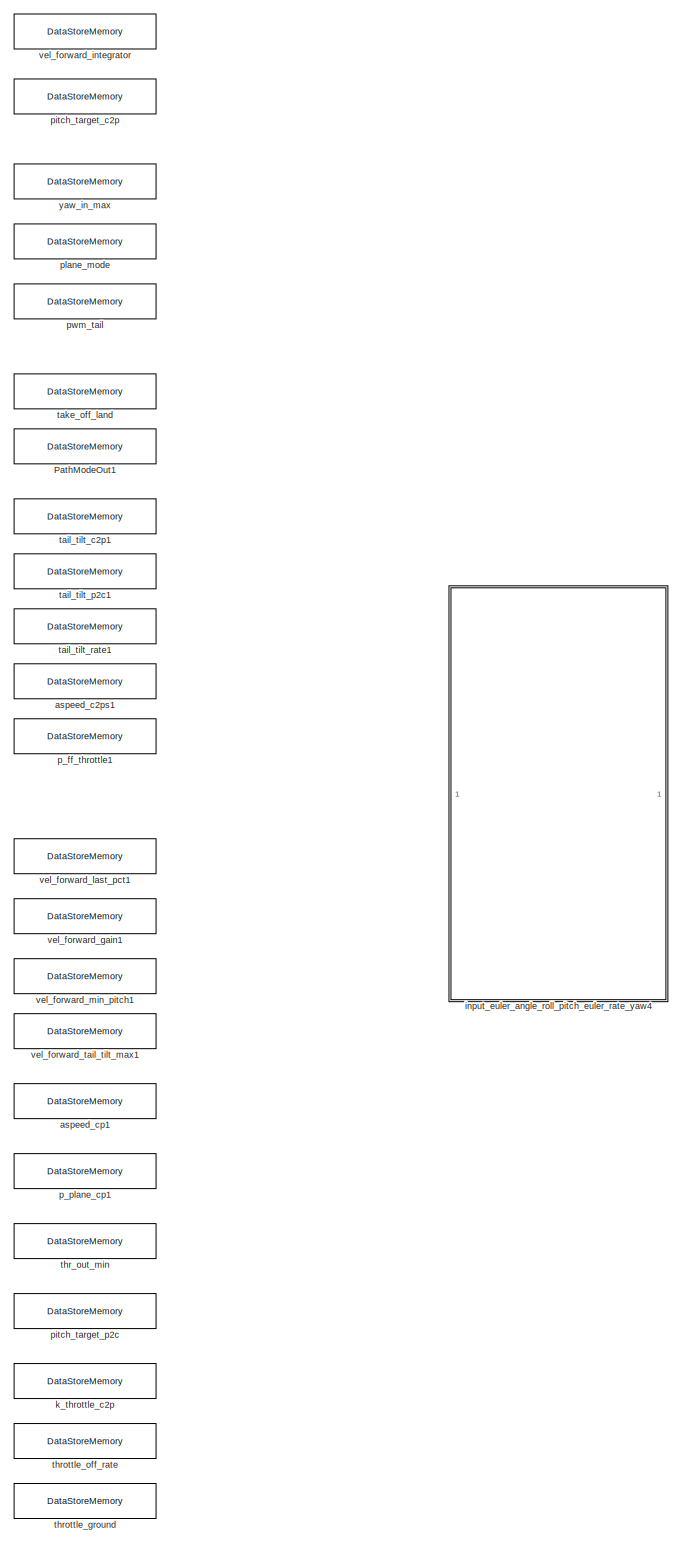
[diagram: root canvas - part 1/20, top left region]
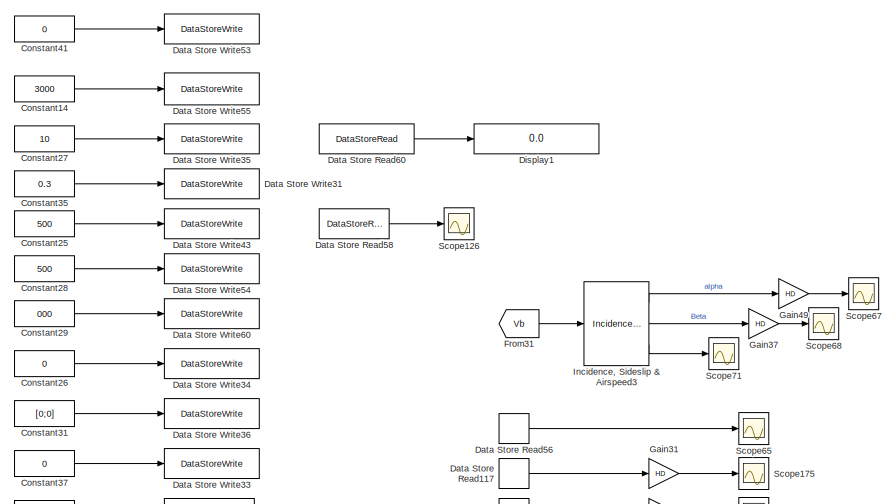
[diagram: root canvas - part 2/20, top left region]
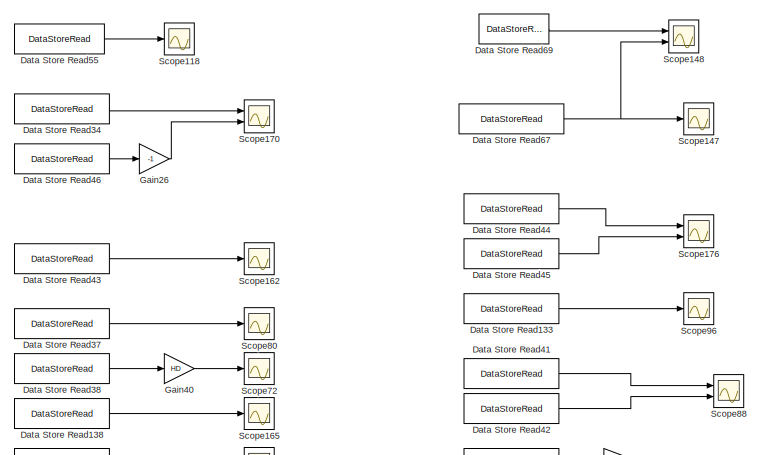
[diagram: root canvas - part 3/20, top left region]
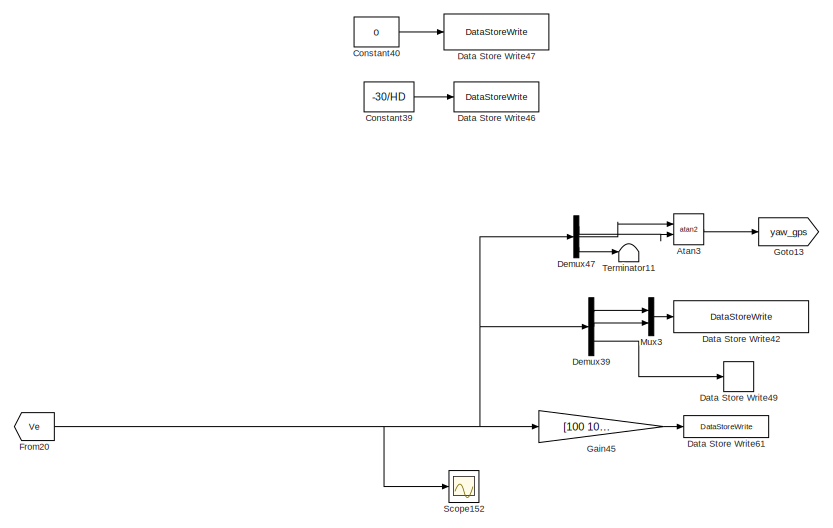
[diagram: root canvas - part 4/20, top center region]
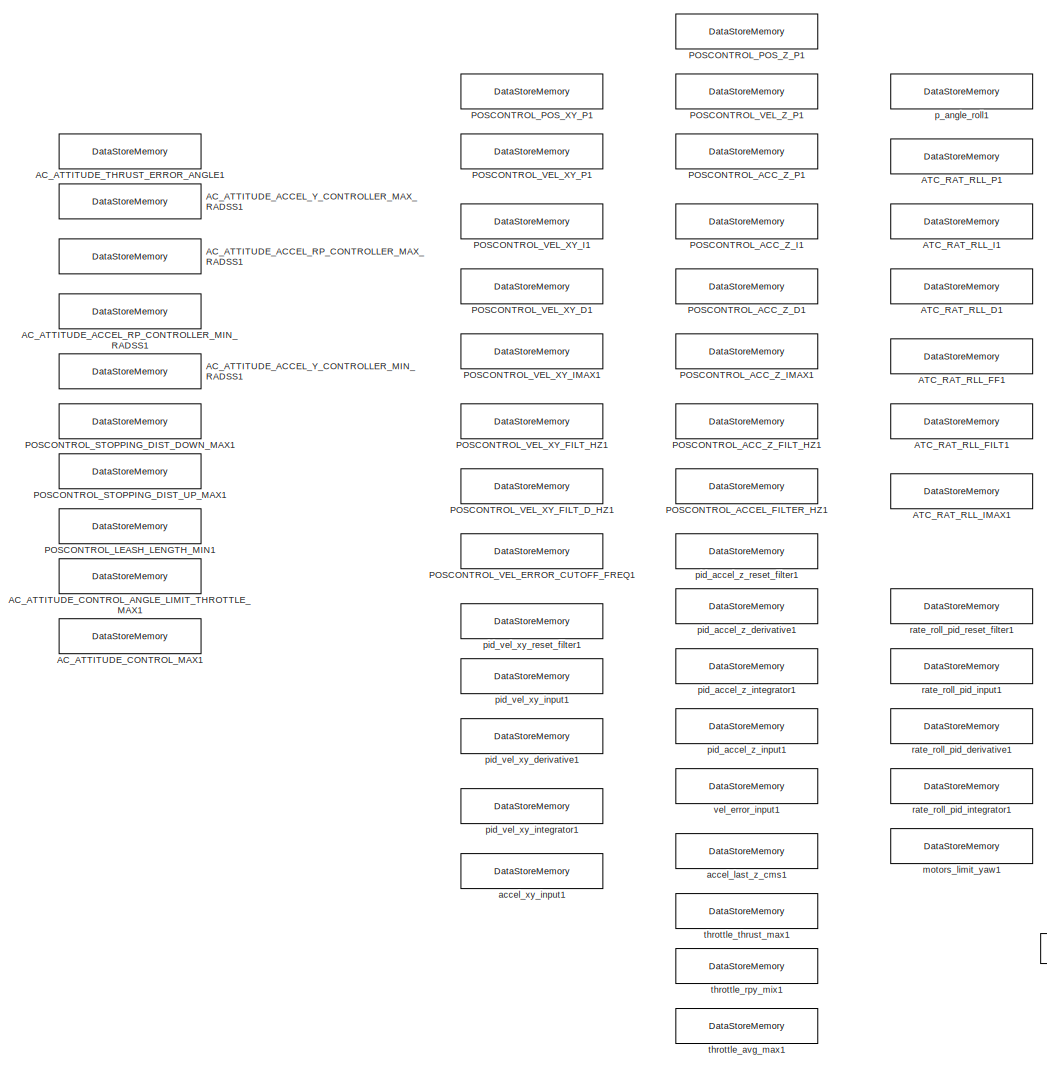
[diagram: root canvas - part 5/20, top right region]
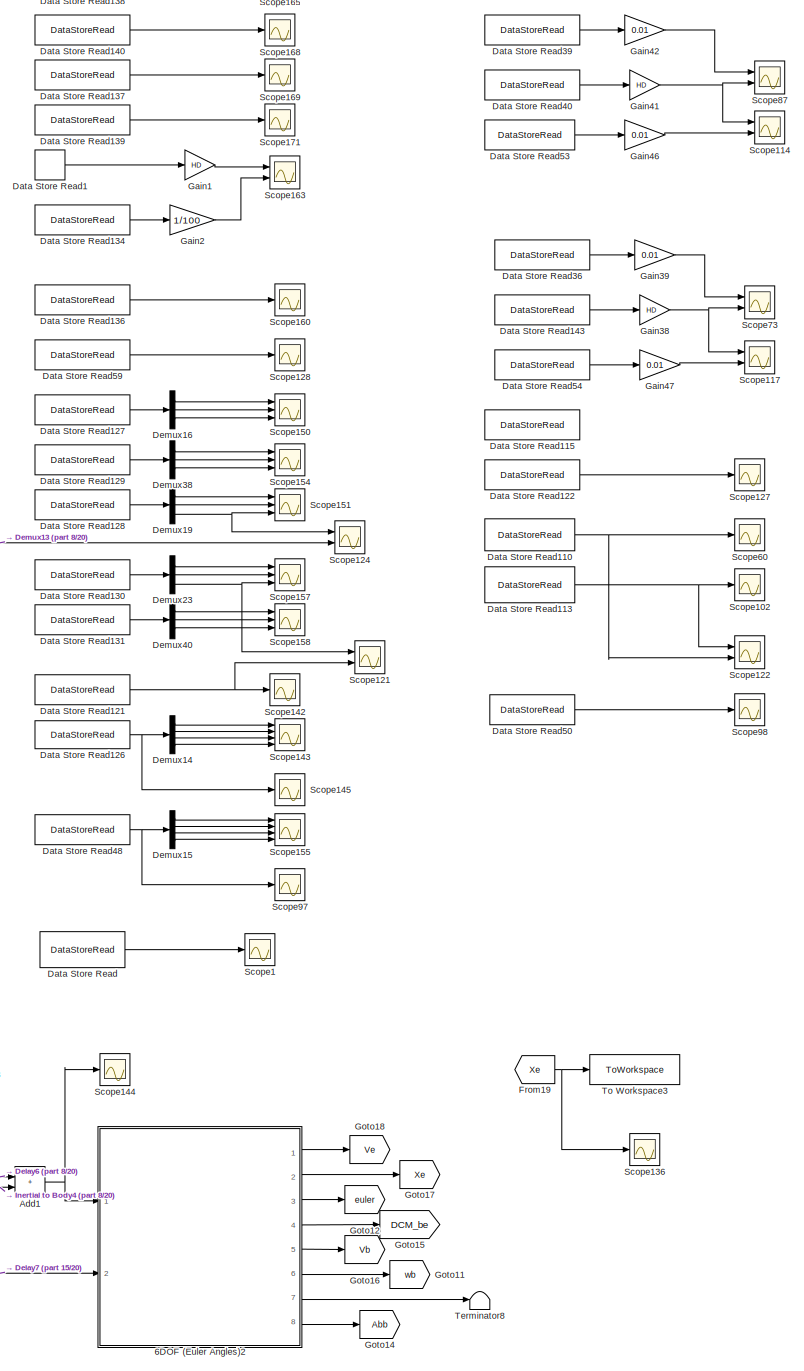
[diagram: root canvas - part 6/20, top left region]
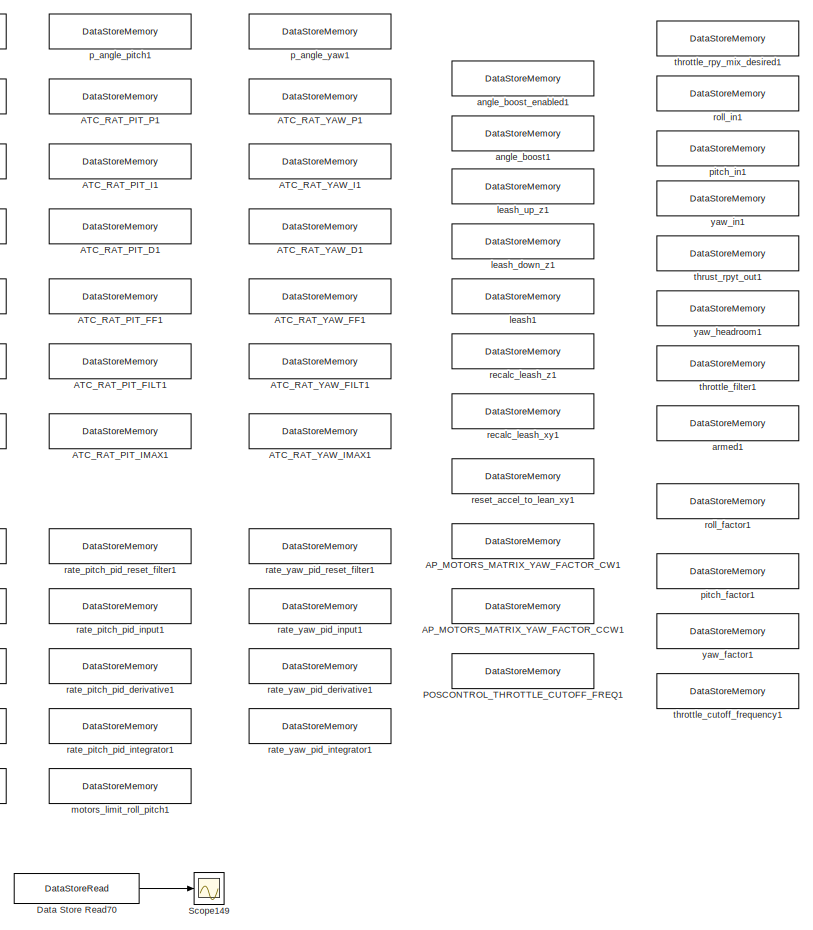
[diagram: root canvas - part 7/20, top right region]
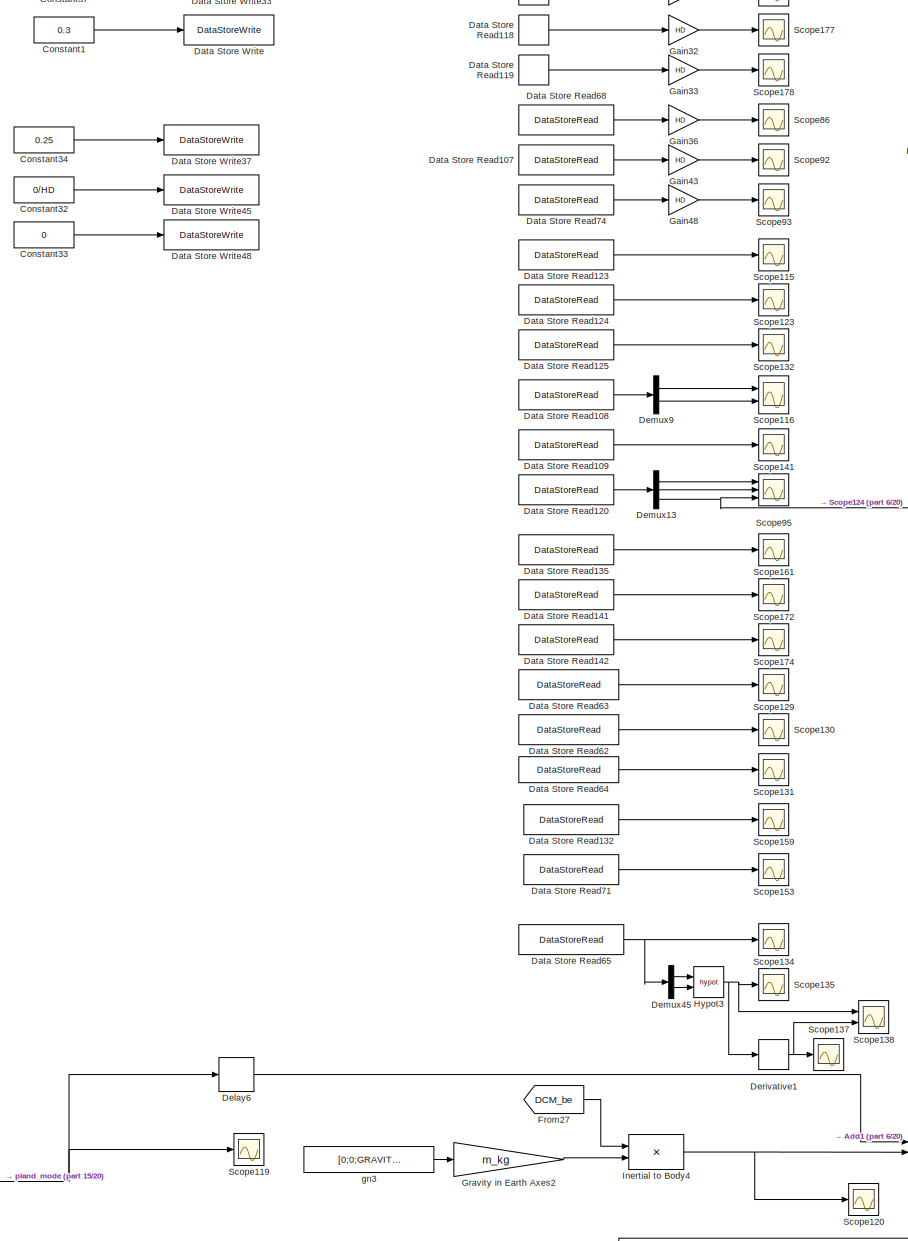
[diagram: root canvas - part 8/20, top left region]
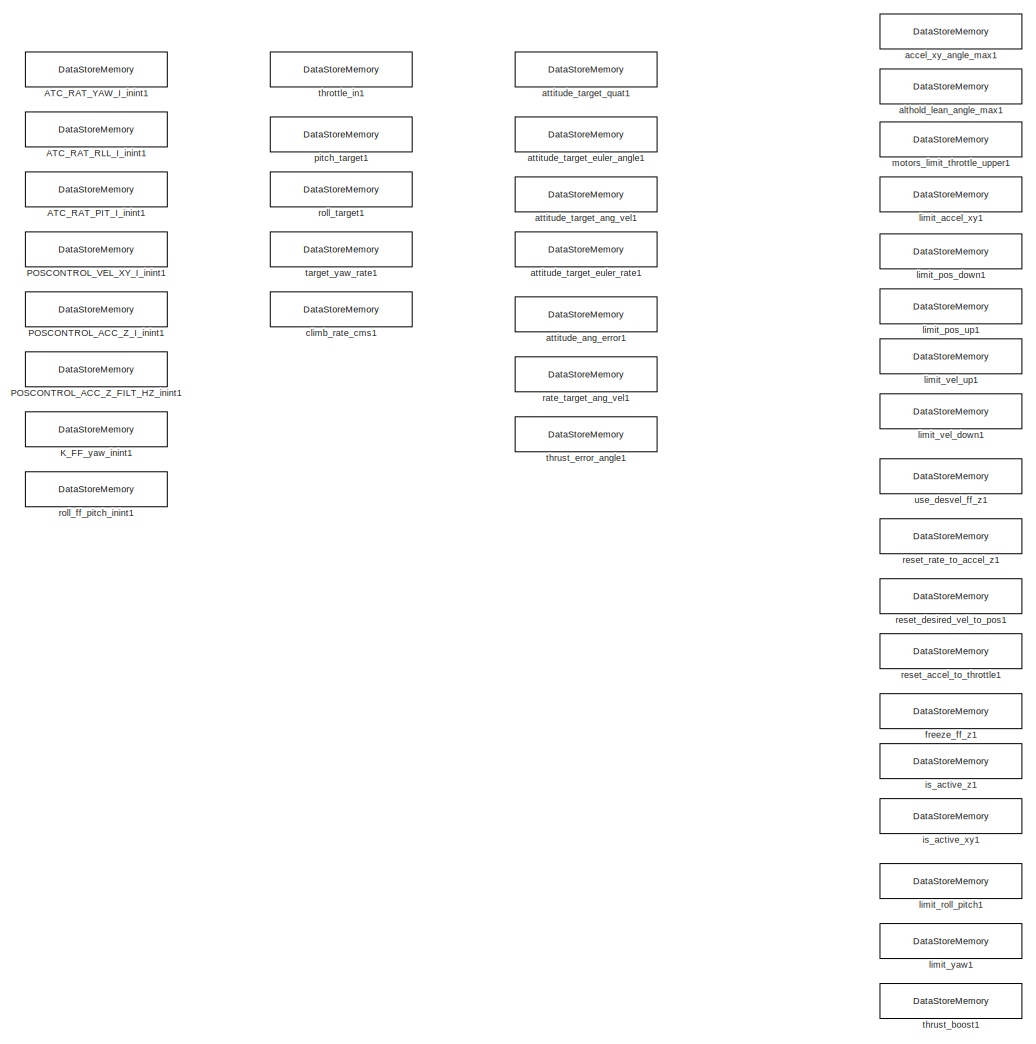
[diagram: root canvas - part 9/20, top center region]
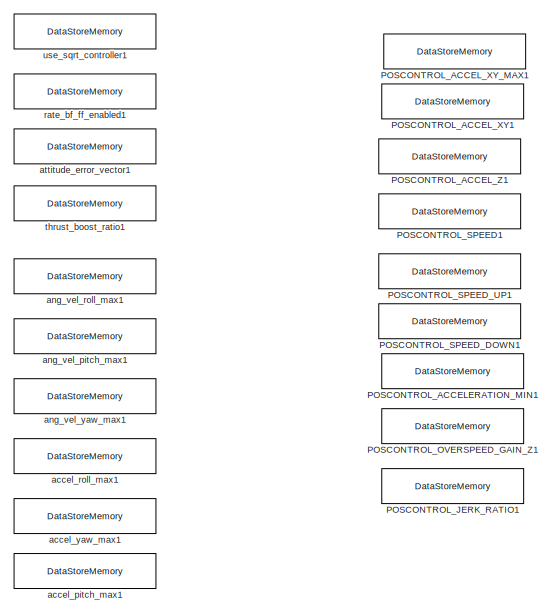
[diagram: root canvas - part 10/20, top right region]
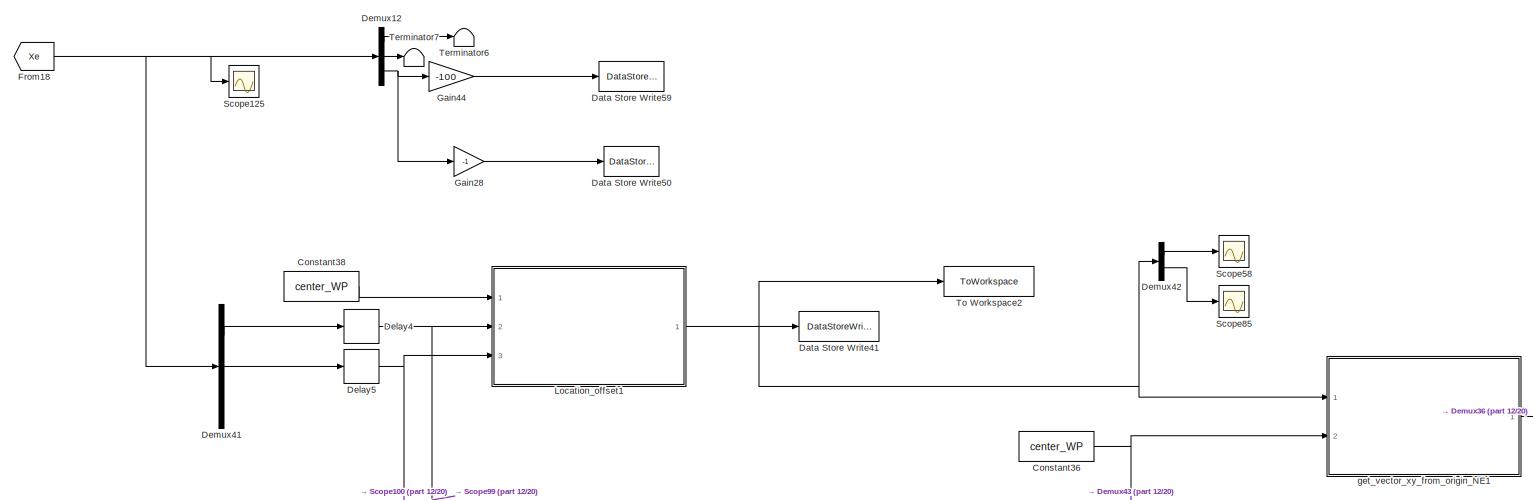
[diagram: root canvas - part 11/20, top center region]
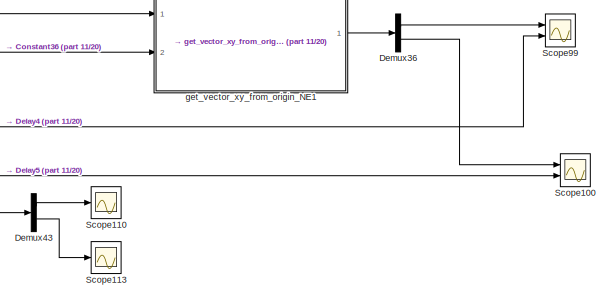
[diagram: root canvas - part 12/20, top center region]
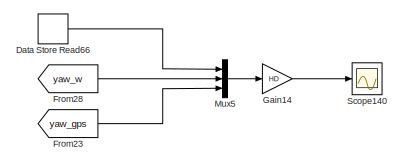
[diagram: root canvas - part 13/20, top left region]
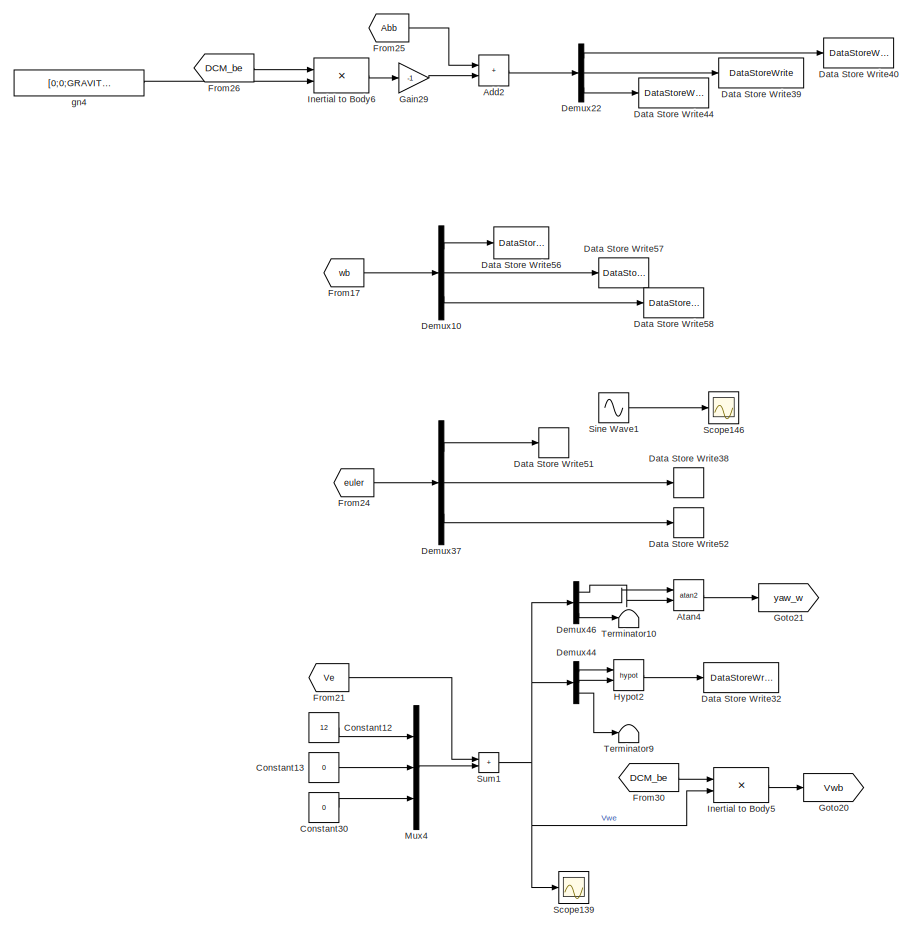
[diagram: root canvas - part 14/20, central region]
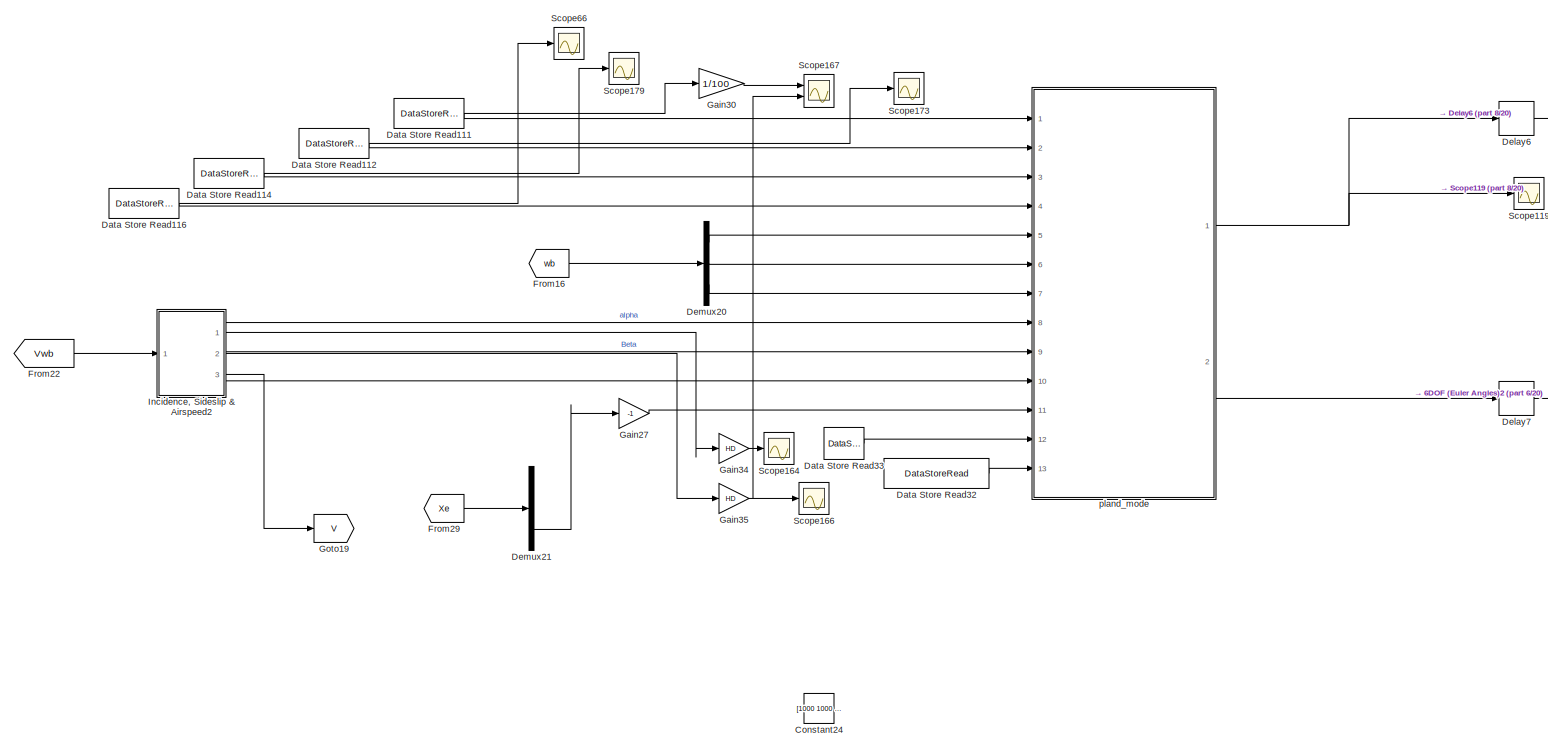
[diagram: root canvas - part 15/20, middle left region]
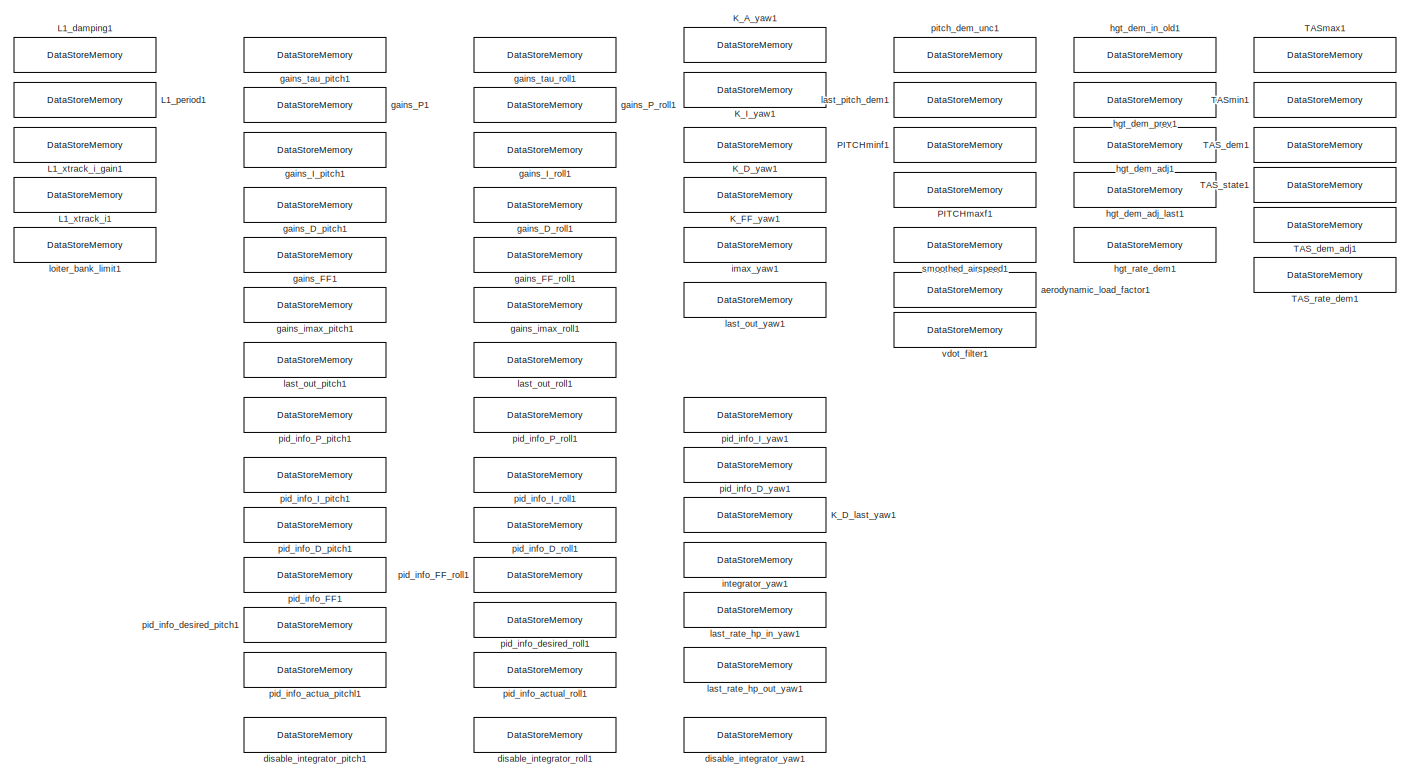
[diagram: root canvas - part 16/20, middle right region]
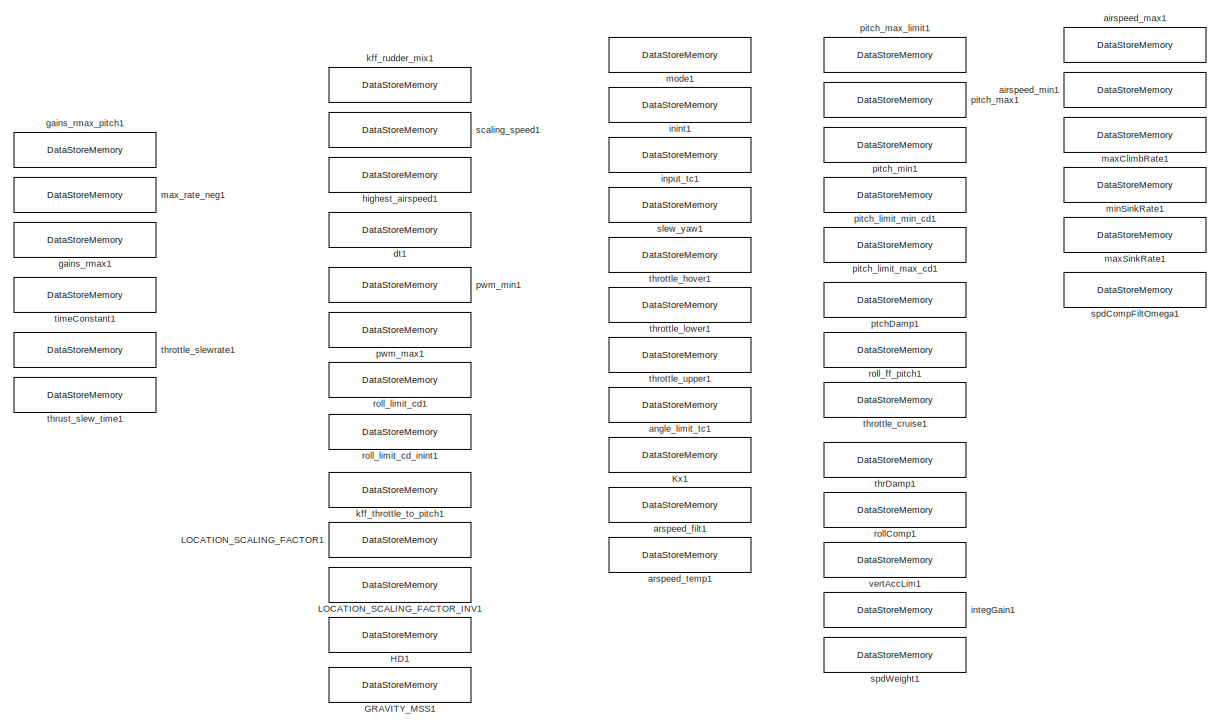
[diagram: root canvas - part 17/20, middle right region]
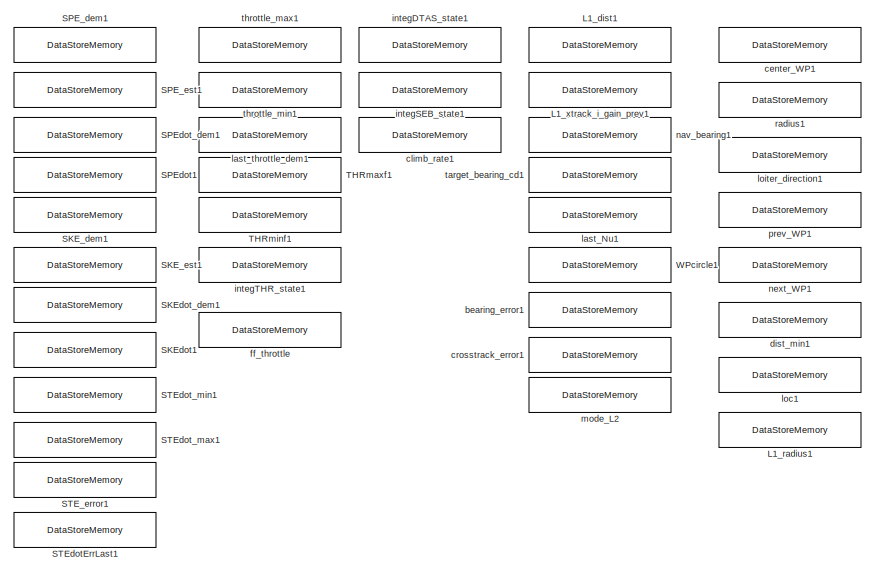
[diagram: root canvas - part 18/20, middle right region]
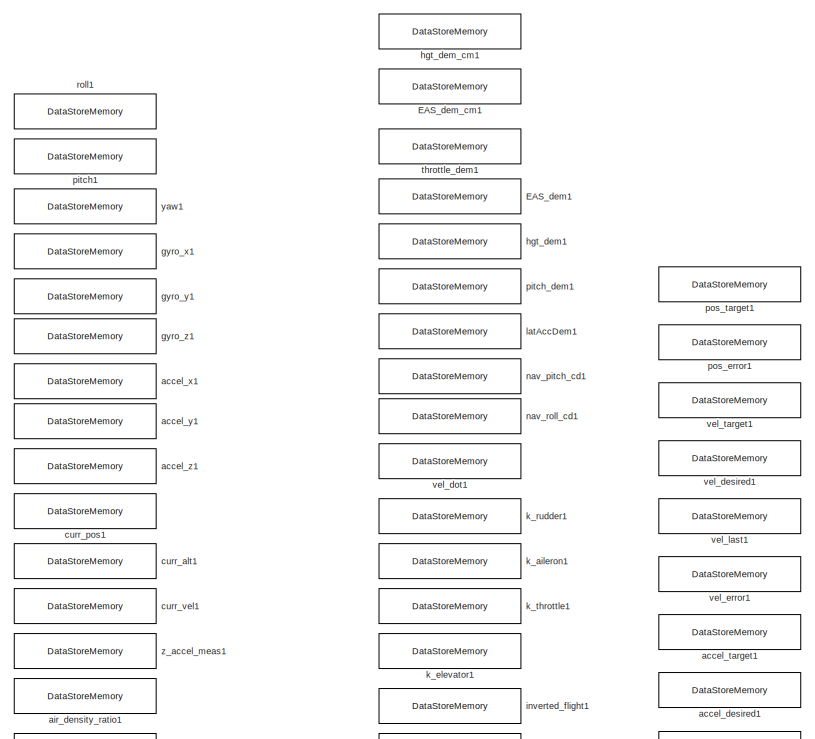
[diagram: root canvas - part 19/20, bottom right region]
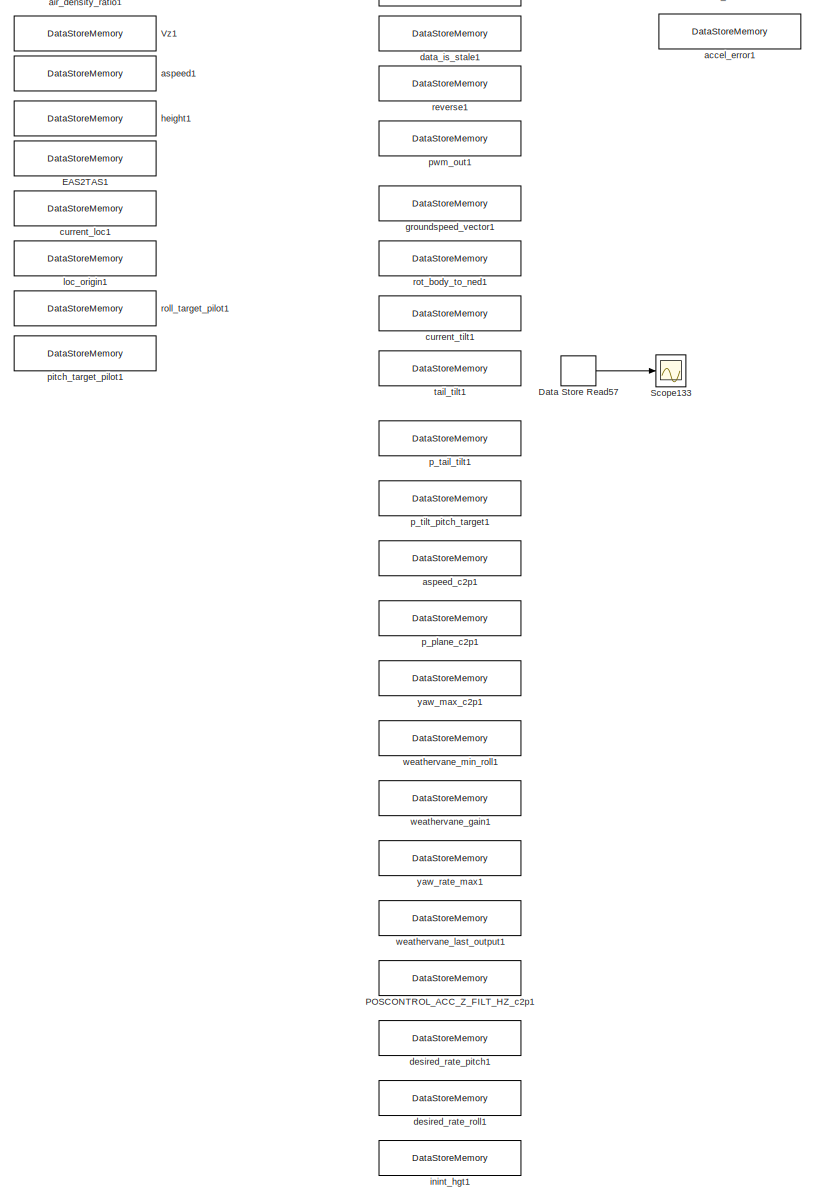
[diagram: root canvas - part 20/20, bottom right region]
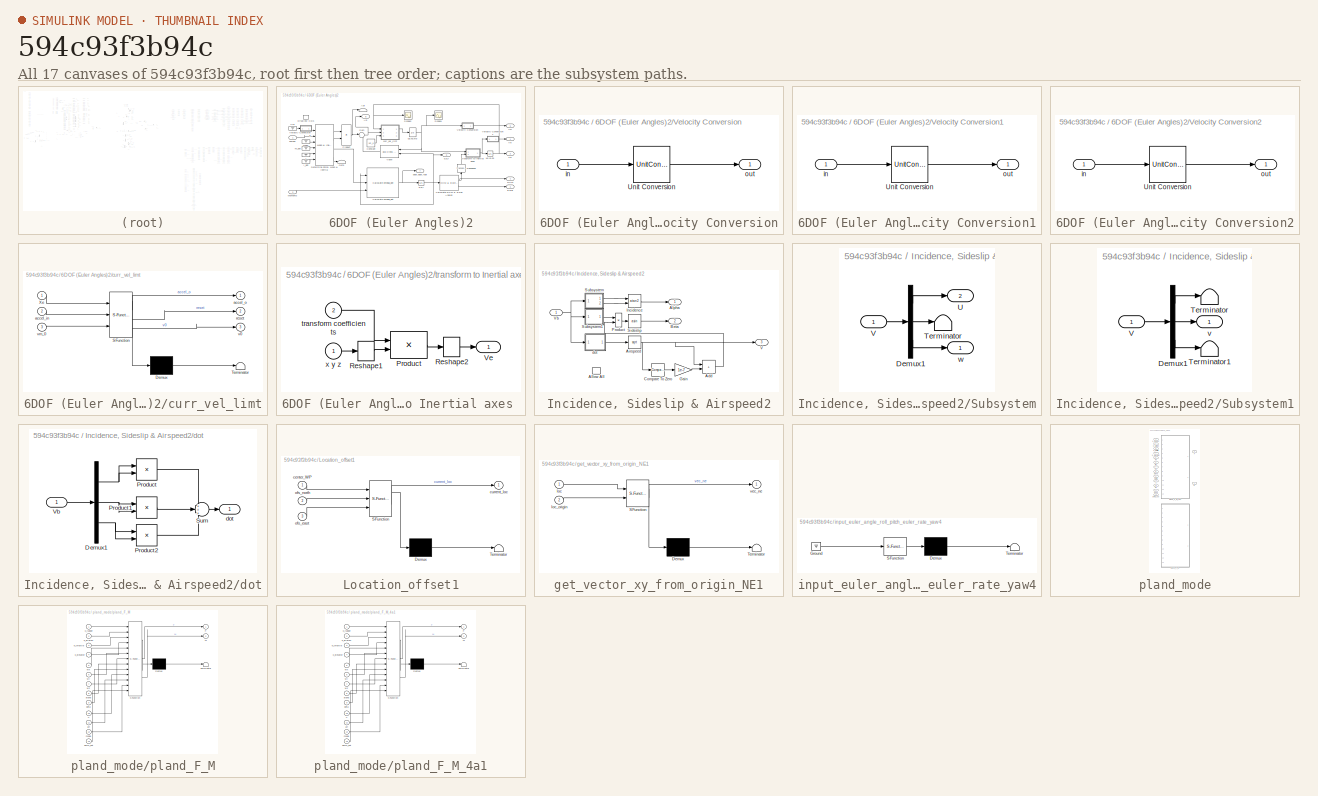
[diagram: thumbnail index - all 17 canvases of the model, root first then tree order]
MODEL slx_594c93f3b94c
KIND model
CONFIG AbsTol = auto
CONFIG EnableMultiTasking = off
CONFIG FixedStep = dt
CONFIG MaxStep = auto
CONFIG MinStep = auto
CONFIG RelTol = 1e-3
CONFIG SampleTimeConstraint = Unconstrained
CONFIG Solver = ode1
CONFIG SolverName = ode1
CONFIG StartTime = 0.0
CONFIG StopTime = 20
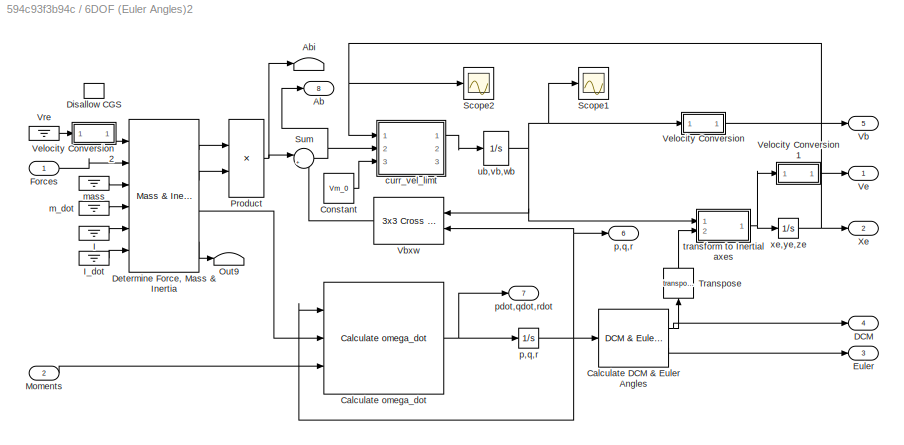
BLOCK [SubSystem] 6DOF (Euler Angles)2
  AncestorBlock = shared6dof/6DOF (Euler Angles)
  PermitHierarchicalResolution = ExplicitOnly
  Ports = [2, 8]
  RequestExecContextInheritance = off
BLOCK [Outport] 6DOF (Euler Angles)2/Ab
  Port = 8
  Unit = m/s^2
  VectorParamsAs1DForOutWhenUnconnected = off
BLOCK [Terminator] 6DOF (Euler Angles)2/Abi
BLOCK [Reference] 6DOF (Euler Angles)2/Calculate DCM & Euler Angles  REF=shared6dofsys/DCM & Euler Angles (Euler)  (lib defined in slx_91fbb8bad28b)
  Ports = [1, 2]
  SourceBlock = shared6dofsys/DCM & Euler Angles (Euler)
  SourceProductBaseCode = AE,PW,MT,VE,VP
  SourceType = DCM & Euler Angles (Euler)
BLOCK [Reference] 6DOF (Euler Angles)2/Calculate omega_dot  REF=shared6dofsys/Calculate omega_dot  (lib defined in slx_91fbb8bad28b)
  Ports = [3, 1]
  SourceBlock = shared6dofsys/Calculate omega_dot
  SourceProductBaseCode = AE,PW,MT,VE,VP
BLOCK [Constant] 6DOF (Euler Angles)2/Constant
  Value = Vm_0
BLOCK [Outport] 6DOF (Euler Angles)2/DCM
  Port = 4
  Unit = 1
  VectorParamsAs1DForOutWhenUnconnected = off
BLOCK [Reference] 6DOF (Euler Angles)2/Determine Force, Mass & Inertia  REF=shared6dofsys/Mass & Inertia (fixed)  (lib defined in slx_91fbb8bad28b)
  Ports = [6, 4]
  SourceBlock = shared6dofsys/Mass & Inertia (fixed)
  SourceProductBaseCode = AE,PW,MT,VE,VP
  SourceType = Mass & Inertia (fixed)
BLOCK [UnitConfiguration] 6DOF (Euler Angles)2/Disallow CGS
  AllowAllUnitSystems = off
  UnitSystemsStr = English,SI,SI (extended)
BLOCK [Outport] 6DOF (Euler Angles)2/Euler
  Port = 3
  Unit = rad
  VectorParamsAs1DForOutWhenUnconnected = off
BLOCK [Inport] 6DOF (Euler Angles)2/Forces
  PortDimensions = 3
  Unit = N
BLOCK [Ground] 6DOF (Euler Angles)2/I
BLOCK [Ground] 6DOF (Euler Angles)2/I_dot
BLOCK [Inport] 6DOF (Euler Angles)2/Moments
  Port = 2
  PortDimensions = 3
  Unit = N*m
BLOCK [Terminator] 6DOF (Euler Angles)2/Out9
BLOCK [Product] 6DOF (Euler Angles)2/Product
  Inputs = */
  OutDataTypeStr = Inherit: Same as first input
  Ports = [2, 1]
  SaturateOnIntegerOverflow = on
BLOCK [Scope] 6DOF (Euler Angles)2/Scope1
  Floating = off
  NumInputPorts = 1
  Ports = [1]
  ScopeSpecificationString = Simulink.scopes.TimeScopeBlockCfg('CurrentConfiguration', extmgr.ConfigurationSet(extmgr.Configuration('Core','General UI',true),extmgr.Configuration('Core','Source UI',true),extmgr.Configuration('Sources','WiredSimulink',true,'DataLoggingVariableName','ScopeData4'),extmgr.Configuration('Visuals','Time Domain',true,'SerializedDisplays',{struct('MinYLimReal','-16.25612','MaxYLimReal','6.39103','YLa...<+1830ch>
BLOCK [Scope] 6DOF (Euler Angles)2/Scope2
  Floating = off
  NumInputPorts = 1
  Ports = [1]
  ScopeSpecificationString = Simulink.scopes.TimeScopeBlockCfg('CurrentConfiguration', extmgr.ConfigurationSet(extmgr.Configuration('Core','General UI',true),extmgr.Configuration('Core','Source UI',true),extmgr.Configuration('Sources','WiredSimulink',true,'DataLoggingVariableName','ScopeData3'),extmgr.Configuration('Visuals','Time Domain',true,'SerializedDisplays',{struct('MinYLimReal','-25.27788','MaxYLimReal','126.67251','Y...<+1506ch>
BLOCK [Sum] 6DOF (Euler Angles)2/Sum
  Inputs = |++
  Ports = [2, 1]
  SaturateOnIntegerOverflow = on
BLOCK [Math] 6DOF (Euler Angles)2/Transpose
  NameLocation = right
  Operator = transpose
  Ports = [1, 1]
  SignedPower = on
BLOCK [Outport] 6DOF (Euler Angles)2/Vb
  Port = 5
  Unit = m/s
  VectorParamsAs1DForOutWhenUnconnected = off
BLOCK [Reference] 6DOF (Euler Angles)2/Vbxw  REF=sharedutil/3x3 Cross Product
  Ports = [2, 1]
  SourceBlock = sharedutil/3x3 Cross Product
  SourceProductBaseCode = AE,PW,MT,VE,VP
  SourceType = CrossProduct
BLOCK [Outport] 6DOF (Euler Angles)2/Ve
  Unit = m/s
  VectorParamsAs1DForOutWhenUnconnected = off
BLOCK [SubSystem] 6DOF (Euler Angles)2/Velocity Conversion
  Ports = [1, 1]
  RequestExecContextInheritance = off
BLOCK [UnitConversion] 6DOF (Euler Angles)2/Velocity Conversion/Unit Conversion
BLOCK [Inport] 6DOF (Euler Angles)2/Velocity Conversion/in
  Unit = m/s
BLOCK [Outport] 6DOF (Euler Angles)2/Velocity Conversion/out
  VectorParamsAs1DForOutWhenUnconnected = off
BLOCK [SubSystem] 6DOF (Euler Angles)2/Velocity Conversion1
  Ports = [1, 1]
  RequestExecContextInheritance = off
BLOCK [UnitConversion] 6DOF (Euler Angles)2/Velocity Conversion1/Unit Conversion
BLOCK [Inport] 6DOF (Euler Angles)2/Velocity Conversion1/in
  Unit = m/s
BLOCK [Outport] 6DOF (Euler Angles)2/Velocity Conversion1/out
  VectorParamsAs1DForOutWhenUnconnected = off
BLOCK [SubSystem] 6DOF (Euler Angles)2/Velocity Conversion2
  Ports = [1, 1]
  RequestExecContextInheritance = off
BLOCK [UnitConversion] 6DOF (Euler Angles)2/Velocity Conversion2/Unit Conversion
BLOCK [Inport] 6DOF (Euler Angles)2/Velocity Conversion2/in
  Unit = m/s
BLOCK [Outport] 6DOF (Euler Angles)2/Velocity Conversion2/out
  Unit = m/s
  VectorParamsAs1DForOutWhenUnconnected = off
BLOCK [Ground] 6DOF (Euler Angles)2/Vre
BLOCK [Outport] 6DOF (Euler Angles)2/Xe
  Port = 2
  Unit = m
  VectorParamsAs1DForOutWhenUnconnected = off
BLOCK [SubSystem] 6DOF (Euler Angles)2/curr_vel_limt
  ErrorFcn = Stateflow.Translate.translate
  PermitHierarchicalResolution = ExplicitOnly
  Ports = [3, 3]
  RequestExecContextInheritance = off
  SFBlockType = MATLAB Function
  TreatAsAtomicUnit = on
BLOCK [Demux] 6DOF (Euler Angles)2/curr_vel_limt/ Demux 
  Outputs = 1
  Ports = [1, 1]
BLOCK [S-Function] 6DOF (Euler Angles)2/curr_vel_limt/ SFunction 
  EnableBusSupport = on
  FunctionName = sf_sfun
  PortCounts = [3 4]
  Ports = [3, 4]
  SFcnIsStateOwnerBlock = off
  SFunctionDeploymentMode = off
  Tag = Stateflow S-Function 2
BLOCK [Terminator] 6DOF (Euler Angles)2/curr_vel_limt/ Terminator 
BLOCK [Inport] 6DOF (Euler Angles)2/curr_vel_limt/Xe
BLOCK [Inport] 6DOF (Euler Angles)2/curr_vel_limt/accel_in
  Port = 2
BLOCK [Outport] 6DOF (Euler Angles)2/curr_vel_limt/accel_o
  VectorParamsAs1DForOutWhenUnconnected = off
BLOCK [Outport] 6DOF (Euler Angles)2/curr_vel_limt/reset
  Port = 2
BLOCK [Outport] 6DOF (Euler Angles)2/curr_vel_limt/v0
  Port = 3
BLOCK [Inport] 6DOF (Euler Angles)2/curr_vel_limt/vm_0
  Port = 3
BLOCK [Ground] 6DOF (Euler Angles)2/m_dot
BLOCK [Ground] 6DOF (Euler Angles)2/mass
BLOCK [Outport] 6DOF (Euler Angles)2/p,q,r
  Port = 6
  Unit = rad/s
  VectorParamsAs1DForOutWhenUnconnected = off
BLOCK [Integrator] 6DOF (Euler Angles)2/p,q,r 
  ContinuousStateAttributes = pm_statename
  InitialCondition = pm_0
  Ports = [1, 1]
BLOCK [Outport] 6DOF (Euler Angles)2/pdot,qdot,rdot
  Port = 7
  Unit = rad/s^2
  VectorParamsAs1DForOutWhenUnconnected = off
BLOCK [SubSystem] 6DOF (Euler Angles)2/transform to Inertial axes 
  Ports = [2, 1]
  RequestExecContextInheritance = off
  ShowPortLabels = none
BLOCK [Product] 6DOF (Euler Angles)2/transform to Inertial axes /Product
  InputSameDT = on
  Multiplication = Matrix(*)
  OutDataTypeStr = Inherit: Same as first input
  Ports = [2, 1]
  SaturateOnIntegerOverflow = on
BLOCK [Reshape] 6DOF (Euler Angles)2/transform to Inertial axes /Reshape1
  OutputDimensionality = Column vector (2-D)
  Ports = [1, 1]
BLOCK [Reshape] 6DOF (Euler Angles)2/transform to Inertial axes /Reshape2
  Ports = [1, 1]
BLOCK [Outport] 6DOF (Euler Angles)2/transform to Inertial axes /Ve
  VectorParamsAs1DForOutWhenUnconnected = off
BLOCK [Inport] 6DOF (Euler Angles)2/transform to Inertial axes /transform coefficients
  Port = 2
BLOCK [Inport] 6DOF (Euler Angles)2/transform to Inertial axes /x y z
BLOCK [Integrator] 6DOF (Euler Angles)2/ub,vb,wb
  ContinuousStateAttributes = Vm_statename
  InitialCondition = Vm_0
  Ports = [1, 1]
  UpperSaturationLimit = [inf inf 0]
BLOCK [Integrator] 6DOF (Euler Angles)2/xe,ye,ze
  ContinuousStateAttributes = xme_statename
  InitialCondition = xme_0
  Ports = [1, 1]
BLOCK [DataStoreMemory] AC_ATTITUDE_ACCEL_RP_CONTROLLER_MAX_RADSS1
  DataStoreName = AC_ATTITUDE_ACCEL_RP_CONTROLLER_MAX_RADSS
  InitialValue = AC_ATTITUDE_ACCEL_RP_CONTROLLER_MAX_RADSS
  OutDataTypeStr = double
  ReadBeforeWriteMsg = warning
  ShowAdditionalParam = off
  SignalType = real
  VectorParams1D = off
  WriteAfterReadMsg = warning
  WriteAfterWriteMsg = warning
BLOCK [DataStoreMemory] AC_ATTITUDE_ACCEL_RP_CONTROLLER_MIN_RADSS1
  DataStoreName = AC_ATTITUDE_ACCEL_RP_CONTROLLER_MIN_RADSS
  InitialValue = AC_ATTITUDE_ACCEL_RP_CONTROLLER_MIN_RADSS
  OutDataTypeStr = double
  ReadBeforeWriteMsg = warning
  ShowAdditionalParam = off
  SignalType = real
  VectorParams1D = off
  WriteAfterReadMsg = warning
  WriteAfterWriteMsg = warning
BLOCK [DataStoreMemory] AC_ATTITUDE_ACCEL_Y_CONTROLLER_MAX_RADSS1
  DataStoreName = AC_ATTITUDE_ACCEL_Y_CONTROLLER_MAX_RADSS
  InitialValue = AC_ATTITUDE_ACCEL_Y_CONTROLLER_MAX_RADSS
  OutDataTypeStr = double
  ReadBeforeWriteMsg = warning
  ShowAdditionalParam = off
  SignalType = real
  WriteAfterReadMsg = warning
  WriteAfterWriteMsg = warning
BLOCK [DataStoreMemory] AC_ATTITUDE_ACCEL_Y_CONTROLLER_MIN_RADSS1
  DataStoreName = AC_ATTITUDE_ACCEL_Y_CONTROLLER_MIN_RADSS
  InitialValue = AC_ATTITUDE_ACCEL_Y_CONTROLLER_MIN_RADSS
  OutDataTypeStr = double
  ReadBeforeWriteMsg = warning
  ShowAdditionalParam = off
  SignalType = real
  VectorParams1D = off
  WriteAfterReadMsg = warning
  WriteAfterWriteMsg = warning
BLOCK [DataStoreMemory] AC_ATTITUDE_CONTROL_ANGLE_LIMIT_THROTTLE_MAX1
  DataStoreName = AC_ATTITUDE_CONTROL_ANGLE_LIMIT_THROTTLE_MAX
  InitialValue = AC_ATTITUDE_CONTROL_ANGLE_LIMIT_THROTTLE_MAX
  OutDataTypeStr = double
  ReadBeforeWriteMsg = warning
  ShowAdditionalParam = off
  SignalType = real
  VectorParams1D = off
  WriteAfterReadMsg = warning
  WriteAfterWriteMsg = warning
BLOCK [DataStoreMemory] AC_ATTITUDE_CONTROL_MAX1
  DataStoreName = AC_ATTITUDE_CONTROL_MAX
  InitialValue = AC_ATTITUDE_CONTROL_MAX
  OutDataTypeStr = double
  ReadBeforeWriteMsg = warning
  ShowAdditionalParam = off
  SignalType = real
  VectorParams1D = off
  WriteAfterReadMsg = warning
  WriteAfterWriteMsg = warning
BLOCK [DataStoreMemory] AC_ATTITUDE_THRUST_ERROR_ANGLE1
  DataStoreName = AC_ATTITUDE_THRUST_ERROR_ANGLE
  InitialValue = AC_ATTITUDE_THRUST_ERROR_ANGLE
  OutDataTypeStr = double
  ReadBeforeWriteMsg = warning
  ShowAdditionalParam = off
  SignalType = real
  WriteAfterReadMsg = warning
  WriteAfterWriteMsg = warning
BLOCK [DataStoreMemory] AP_MOTORS_MATRIX_YAW_FACTOR_CCW1
  DataStoreName = AP_MOTORS_MATRIX_YAW_FACTOR_CCW
  InitialValue = AP_MOTORS_MATRIX_YAW_FACTOR_CCW
  OutDataTypeStr = double
  ReadBeforeWriteMsg = warning
  ShowAdditionalParam = off
  SignalType = real
  VectorParams1D = off
  WriteAfterReadMsg = warning
  WriteAfterWriteMsg = warning
BLOCK [DataStoreMemory] AP_MOTORS_MATRIX_YAW_FACTOR_CW1
  DataStoreName = AP_MOTORS_MATRIX_YAW_FACTOR_CW
  InitialValue = AP_MOTORS_MATRIX_YAW_FACTOR_CW
  OutDataTypeStr = double
  ReadBeforeWriteMsg = warning
  ShowAdditionalParam = off
  SignalType = real
  VectorParams1D = off
  WriteAfterReadMsg = warning
  WriteAfterWriteMsg = warning
BLOCK [DataStoreMemory] ATC_RAT_PIT_D1
  DataStoreName = ATC_RAT_PIT_D
  InitialValue = ATC_RAT_PIT_D
  OutDataTypeStr = double
  ReadBeforeWriteMsg = warning
  ShowAdditionalParam = off
  SignalType = real
  VectorParams1D = off
  WriteAfterReadMsg = warning
  WriteAfterWriteMsg = warning
BLOCK [DataStoreMemory] ATC_RAT_PIT_FF1
  DataStoreName = ATC_RAT_PIT_FF
  InitialValue = ATC_RAT_PIT_FF
  OutDataTypeStr = double
  ReadBeforeWriteMsg = warning
  ShowAdditionalParam = off
  SignalType = real
  VectorParams1D = off
  WriteAfterReadMsg = warning
  WriteAfterWriteMsg = warning
BLOCK [DataStoreMemory] ATC_RAT_PIT_FILT1
  DataStoreName = ATC_RAT_PIT_FILT
  InitialValue = ATC_RAT_PIT_FILT
  OutDataTypeStr = double
  ReadBeforeWriteMsg = warning
  ShowAdditionalParam = off
  SignalType = real
  VectorParams1D = off
  WriteAfterReadMsg = warning
  WriteAfterWriteMsg = warning
BLOCK [DataStoreMemory] ATC_RAT_PIT_I1
  DataStoreName = ATC_RAT_PIT_I
  InitialValue = ATC_RAT_PIT_I
  OutDataTypeStr = double
  ReadBeforeWriteMsg = warning
  ShowAdditionalParam = off
  SignalType = real
  VectorParams1D = off
  WriteAfterReadMsg = warning
  WriteAfterWriteMsg = warning
BLOCK [DataStoreMemory] ATC_RAT_PIT_IMAX1
  DataStoreName = ATC_RAT_PIT_IMAX
  InitialValue = ATC_RAT_PIT_IMAX
  OutDataTypeStr = double
  ReadBeforeWriteMsg = warning
  ShowAdditionalParam = off
  SignalType = real
  VectorParams1D = off
  WriteAfterReadMsg = warning
  WriteAfterWriteMsg = warning
BLOCK [DataStoreMemory] ATC_RAT_PIT_I_inint1
  DataStoreName = ATC_RAT_PIT_I_inint
  InitialValue = ATC_RAT_PIT_I_inint
  OutDataTypeStr = double
  ReadBeforeWriteMsg = warning
  ShowAdditionalParam = off
  SignalType = real
  VectorParams1D = off
  WriteAfterReadMsg = warning
  WriteAfterWriteMsg = warning
BLOCK [DataStoreMemory] ATC_RAT_PIT_P1
  DataStoreName = ATC_RAT_PIT_P
  InitialValue = ATC_RAT_PIT_P
  OutDataTypeStr = double
  ReadBeforeWriteMsg = warning
  ShowAdditionalParam = off
  SignalType = real
  VectorParams1D = off
  WriteAfterReadMsg = warning
  WriteAfterWriteMsg = warning
BLOCK [DataStoreMemory] ATC_RAT_RLL_D1
  DataStoreName = ATC_RAT_RLL_D
  InitialValue = ATC_RAT_RLL_D
  OutDataTypeStr = double
  ReadBeforeWriteMsg = warning
  ShowAdditionalParam = off
  SignalType = real
  VectorParams1D = off
  WriteAfterReadMsg = warning
  WriteAfterWriteMsg = warning
BLOCK [DataStoreMemory] ATC_RAT_RLL_FF1
  DataStoreName = ATC_RAT_RLL_FF
  InitialValue = ATC_RAT_RLL_FF
  OutDataTypeStr = double
  ReadBeforeWriteMsg = warning
  ShowAdditionalParam = off
  SignalType = real
  VectorParams1D = off
  WriteAfterReadMsg = warning
  WriteAfterWriteMsg = warning
BLOCK [DataStoreMemory] ATC_RAT_RLL_FILT1
  DataStoreName = ATC_RAT_RLL_FILT
  InitialValue = ATC_RAT_RLL_FILT
  OutDataTypeStr = double
  ReadBeforeWriteMsg = warning
  ShowAdditionalParam = off
  SignalType = real
  VectorParams1D = off
  WriteAfterReadMsg = warning
  WriteAfterWriteMsg = warning
BLOCK [DataStoreMemory] ATC_RAT_RLL_I1
  DataStoreName = ATC_RAT_RLL_I
  InitialValue = ATC_RAT_RLL_I
  OutDataTypeStr = double
  ReadBeforeWriteMsg = warning
  ShowAdditionalParam = off
  SignalType = real
  VectorParams1D = off
  WriteAfterReadMsg = warning
  WriteAfterWriteMsg = warning
BLOCK [DataStoreMemory] ATC_RAT_RLL_IMAX1
  DataStoreName = ATC_RAT_RLL_IMAX
  InitialValue = ATC_RAT_RLL_IMAX
  OutDataTypeStr = double
  ReadBeforeWriteMsg = warning
  ShowAdditionalParam = off
  SignalType = real
  VectorParams1D = off
  WriteAfterReadMsg = warning
  WriteAfterWriteMsg = warning
BLOCK [DataStoreMemory] ATC_RAT_RLL_I_inint1
  DataStoreName = ATC_RAT_RLL_I_inint
  InitialValue = ATC_RAT_RLL_I_inint
  OutDataTypeStr = double
  ReadBeforeWriteMsg = warning
  ShowAdditionalParam = off
  SignalType = real
  VectorParams1D = off
  WriteAfterReadMsg = warning
  WriteAfterWriteMsg = warning
BLOCK [DataStoreMemory] ATC_RAT_RLL_P1
  DataStoreName = ATC_RAT_RLL_P
  InitialValue = ATC_RAT_RLL_P
  OutDataTypeStr = double
  ReadBeforeWriteMsg = warning
  ShowAdditionalParam = off
  SignalType = real
  VectorParams1D = off
  WriteAfterReadMsg = warning
  WriteAfterWriteMsg = warning
BLOCK [DataStoreMemory] ATC_RAT_YAW_D1
  DataStoreName = ATC_RAT_YAW_D
  InitialValue = ATC_RAT_YAW_D
  OutDataTypeStr = double
  ReadBeforeWriteMsg = warning
  ShowAdditionalParam = off
  SignalType = real
  VectorParams1D = off
  WriteAfterReadMsg = warning
  WriteAfterWriteMsg = warning
BLOCK [DataStoreMemory] ATC_RAT_YAW_FF1
  DataStoreName = ATC_RAT_YAW_FF
  InitialValue = ATC_RAT_YAW_FF
  OutDataTypeStr = double
  ReadBeforeWriteMsg = warning
  ShowAdditionalParam = off
  SignalType = real
  VectorParams1D = off
  WriteAfterReadMsg = warning
  WriteAfterWriteMsg = warning
BLOCK [DataStoreMemory] ATC_RAT_YAW_FILT1
  DataStoreName = ATC_RAT_YAW_FILT
  InitialValue = ATC_RAT_YAW_FILT
  OutDataTypeStr = double
  ReadBeforeWriteMsg = warning
  ShowAdditionalParam = off
  SignalType = real
  VectorParams1D = off
  WriteAfterReadMsg = warning
  WriteAfterWriteMsg = warning
BLOCK [DataStoreMemory] ATC_RAT_YAW_I1
  DataStoreName = ATC_RAT_YAW_I
  InitialValue = ATC_RAT_YAW_I
  OutDataTypeStr = double
  ReadBeforeWriteMsg = warning
  ShowAdditionalParam = off
  SignalType = real
  VectorParams1D = off
  WriteAfterReadMsg = warning
  WriteAfterWriteMsg = warning
BLOCK [DataStoreMemory] ATC_RAT_YAW_IMAX1
  DataStoreName = ATC_RAT_YAW_IMAX
  InitialValue = ATC_RAT_YAW_IMAX
  OutDataTypeStr = double
  ReadBeforeWriteMsg = warning
  ShowAdditionalParam = off
  SignalType = real
  VectorParams1D = off
  WriteAfterReadMsg = warning
  WriteAfterWriteMsg = warning
BLOCK [DataStoreMemory] ATC_RAT_YAW_I_inint1
  DataStoreName = ATC_RAT_YAW_I_inint
  InitialValue = ATC_RAT_YAW_I_inint
  OutDataTypeStr = double
  ReadBeforeWriteMsg = warning
  ShowAdditionalParam = off
  SignalType = real
  VectorParams1D = off
  WriteAfterReadMsg = warning
  WriteAfterWriteMsg = warning
BLOCK [DataStoreMemory] ATC_RAT_YAW_P1
  DataStoreName = ATC_RAT_YAW_P
  InitialValue = ATC_RAT_YAW_P
  OutDataTypeStr = double
  ReadBeforeWriteMsg = warning
  ShowAdditionalParam = off
  SignalType = real
  VectorParams1D = off
  WriteAfterReadMsg = warning
  WriteAfterWriteMsg = warning
BLOCK [Sum] Add1
  IconShape = rectangular
  Ports = [2, 1]
BLOCK [Sum] Add2
  IconShape = rectangular
  Ports = [2, 1]
BLOCK [Trigonometry] Atan3
  Operator = atan2
  Ports = [2, 1]
BLOCK [Trigonometry] Atan4
  Operator = atan2
  Ports = [2, 1]
BLOCK [Constant] Constant1
  Value = 0.3
BLOCK [Constant] Constant12
  Value = 12
BLOCK [Constant] Constant13
  Value = 0
BLOCK [Constant] Constant14
  Value = 3000
BLOCK [Constant] Constant24
  Value = [1000 1000 1000 1000]
BLOCK [Constant] Constant25
  Value = 500
BLOCK [Constant] Constant26
  Value = 0
BLOCK [Constant] Constant27
  Value = 10
BLOCK [Constant] Constant28
  Value = 500
BLOCK [Constant] Constant29
  Value = 000
BLOCK [Constant] Constant30
  Value = 0
BLOCK [Constant] Constant31
  Value = [0;0]
BLOCK [Constant] Constant32
  Value = 0/HD
BLOCK [Constant] Constant33
  Value = 0
BLOCK [Constant] Constant34
  Value = 0.25
BLOCK [Constant] Constant35
  Value = 0.3
BLOCK [Constant] Constant36
  Value = center_WP
BLOCK [Constant] Constant37
  Value = 0
BLOCK [Constant] Constant38
  Value = center_WP
BLOCK [Constant] Constant39
  Value = -30/HD
BLOCK [Constant] Constant40
  Value = 0
BLOCK [Constant] Constant41
  Value = 0
BLOCK [DataStoreRead] Data Store Read
  DataStoreName = pwm_tail
  Ports = [0, 1]
BLOCK [DataStoreRead] Data Store Read1
  DataStoreName = pitch
  Ports = [0, 1]
BLOCK [DataStoreRead] Data Store Read107
  DataStoreName = gyro_y
  Ports = [0, 1]
BLOCK [DataStoreRead] Data Store Read108
  DataStoreName = curr_pos
  Ports = [0, 1]
BLOCK [DataStoreRead] Data Store Read109
  DataStoreName = curr_alt
  Ports = [0, 1]
BLOCK [DataStoreRead] Data Store Read110
  DataStoreName = nav_bearing
  Ports = [0, 1]
BLOCK [DataStoreRead] Data Store Read111
  DataStoreName = k_rudder
  Ports = [0, 1]
BLOCK [DataStoreRead] Data Store Read112
  DataStoreName = k_aileron
  Ports = [0, 1]
BLOCK [DataStoreRead] Data Store Read113
  DataStoreName = mode_L1
  Ports = [0, 1]
BLOCK [DataStoreRead] Data Store Read114
  DataStoreName = k_throttle
  Ports = [0, 1]
BLOCK [DataStoreRead] Data Store Read115
  DataStoreName = mode_L1
  Ports = [0, 1]
BLOCK [DataStoreRead] Data Store Read116
  DataStoreName = k_elevator
  Ports = [0, 1]
BLOCK [DataStoreRead] Data Store Read117
  DataStoreName = roll
  Ports = [0, 1]
BLOCK [DataStoreRead] Data Store Read118
  DataStoreName = pitch
  Ports = [0, 1]
BLOCK [DataStoreRead] Data Store Read119
  DataStoreName = yaw
  Ports = [0, 1]
BLOCK [DataStoreRead] Data Store Read120
  DataStoreName = curr_vel
  Ports = [0, 1]
BLOCK [DataStoreRead] Data Store Read121
  DataStoreName = z_accel_meas
  Ports = [0, 1]
BLOCK [DataStoreRead] Data Store Read122
  DataStoreName = latAccDem
  Ports = [0, 1]
BLOCK [DataStoreRead] Data Store Read123
  DataStoreName = accel_x
  Ports = [0, 1]
BLOCK [DataStoreRead] Data Store Read124
  DataStoreName = accel_y
  Ports = [0, 1]
BLOCK [DataStoreRead] Data Store Read125
  DataStoreName = accel_z
  Ports = [0, 1]
BLOCK [DataStoreRead] Data Store Read126
  DataStoreName = pwm_out
  Ports = [0, 1]
BLOCK [DataStoreRead] Data Store Read127
  DataStoreName = pos_target
  Ports = [0, 1]
BLOCK [DataStoreRead] Data Store Read128
  DataStoreName = vel_target
  Ports = [0, 1]
BLOCK [DataStoreRead] Data Store Read129
  DataStoreName = vel_desired
  Ports = [0, 1]
BLOCK [DataStoreRead] Data Store Read130
  DataStoreName = accel_target
  Ports = [0, 1]
BLOCK [DataStoreRead] Data Store Read131
  DataStoreName = accel_desired
  Ports = [0, 1]
BLOCK [DataStoreRead] Data Store Read132
  DataStoreName = throttle_filter
  Ports = [0, 1]
BLOCK [DataStoreRead] Data Store Read133
  DataStoreName = EAS_dem
  Ports = [0, 1]
BLOCK [DataStoreRead] Data Store Read134
  DataStoreName = nav_pitch_cd
  Ports = [0, 1]
BLOCK [DataStoreRead] Data Store Read135
  DataStoreName = aspeed
  Ports = [0, 1]
BLOCK [DataStoreRead] Data Store Read136
  DataStoreName = nav_roll_cd
  Ports = [0, 1]
BLOCK [DataStoreRead] Data Store Read137
  DataStoreName = k_rudder
  Ports = [0, 1]
BLOCK [DataStoreRead] Data Store Read138
  DataStoreName = k_aileron
  Ports = [0, 1]
BLOCK [DataStoreRead] Data Store Read139
  DataStoreName = k_throttle
  Ports = [0, 1]
BLOCK [DataStoreRead] Data Store Read140
  DataStoreName = k_elevator
  Ports = [0, 1]
BLOCK [DataStoreRead] Data Store Read141
  DataStoreName = height
  Ports = [0, 1]
BLOCK [DataStoreRead] Data Store Read142
  DataStoreName = Vz
  Ports = [0, 1]
BLOCK [DataStoreRead] Data Store Read143
  DataStoreName = roll
  Ports = [0, 1]
BLOCK [DataStoreRead] Data Store Read32
  DataStoreName = pwm_out
  Ports = [0, 1]
BLOCK [DataStoreRead] Data Store Read33
  DataStoreName = mode
  Ports = [0, 1]
BLOCK [DataStoreRead] Data Store Read34
  DataStoreName = hgt_rate_dem
  Ports = [0, 1]
BLOCK [DataStoreRead] Data Store Read36
  DataStoreName = nav_roll_cd
  Ports = [0, 1]
BLOCK [DataStoreRead] Data Store Read37
  DataStoreName = throttle_dem
  Ports = [0, 1]
BLOCK [DataStoreRead] Data Store Read38
  DataStoreName = pitch_dem
  Ports = [0, 1]
BLOCK [DataStoreRead] Data Store Read39
  DataStoreName = nav_pitch_cd
  Ports = [0, 1]
BLOCK [DataStoreRead] Data Store Read40
  DataStoreName = pitch
  Ports = [0, 1]
BLOCK [DataStoreRead] Data Store Read41
  DataStoreName = pid_info_desired_pitch
  Ports = [0, 1]
BLOCK [DataStoreRead] Data Store Read42
  DataStoreName = pid_info_actual_pitch
  Ports = [0, 1]
BLOCK [DataStoreRead] Data Store Read43
  DataStoreName = hgt_dem_adj
  Ports = [0, 1]
BLOCK [DataStoreRead] Data Store Read44
  DataStoreName = height
  Ports = [0, 1]
BLOCK [DataStoreRead] Data Store Read45
  DataStoreName = hgt_dem_adj
  Ports = [0, 1]
BLOCK [DataStoreRead] Data Store Read46
  DataStoreName = Vz
  Ports = [0, 1]
BLOCK [DataStoreRead] Data Store Read48
  DataStoreName = thrust_rpyt_out
  Ports = [0, 1]
BLOCK [DataStoreRead] Data Store Read50
  DataStoreName = pitch_in
  Ports = [0, 1]
BLOCK [DataStoreRead] Data Store Read53
  DataStoreName = pitch_target
  Ports = [0, 1]
BLOCK [DataStoreRead] Data Store Read54
  DataStoreName = roll_target
  Ports = [0, 1]
BLOCK [DataStoreRead] Data Store Read55
  DataStoreName = target_yaw_rate
  Ports = [0, 1]
BLOCK [DataStoreRead] Data Store Read56
  DataStoreName = mode
  Ports = [0, 1]
BLOCK [DataStoreRead] Data Store Read57
  DataStoreName = tail_tilt
  Ports = [0, 1]
BLOCK [DataStoreRead] Data Store Read58
  DataStoreName = tail_tilt
  Ports = [0, 1]
BLOCK [DataStoreRead] Data Store Read59
  DataStoreName = accel_last_z_cms
  Ports = [0, 1]
BLOCK [DataStoreRead] Data Store Read60
  DataStoreElements = PathModeOut_sl.flightTaskMode
  DataStoreName = PathModeOut_sl
  Ports = [0, 1]
BLOCK [DataStoreRead] Data Store Read62
  DataStoreName = pitch_in
  Ports = [0, 1]
BLOCK [DataStoreRead] Data Store Read63
  DataStoreName = roll_in
  Ports = [0, 1]
BLOCK [DataStoreRead] Data Store Read64
  DataStoreName = yaw_in
  Ports = [0, 1]
BLOCK [DataStoreRead] Data Store Read65
  DataStoreName = groundspeed_vector
  Ports = [0, 1]
BLOCK [DataStoreRead] Data Store Read66
  DataStoreName = yaw
  Ports = [0, 1]
BLOCK [DataStoreRead] Data Store Read67
  DataStoreName = vel_forward_last_pct
  Ports = [0, 1]
BLOCK [DataStoreRead] Data Store Read68
  DataStoreName = gyro_x
  Ports = [0, 1]
BLOCK [DataStoreRead] Data Store Read69
  DataStoreName = tail_tilt
  Ports = [0, 1]
BLOCK [DataStoreRead] Data Store Read70
  DataStoreName = rate_pitch_pid_integrator
  Ports = [0, 1]
BLOCK [DataStoreRead] Data Store Read71
  DataStoreName = throttle_in
  Ports = [0, 1]
BLOCK [DataStoreRead] Data Store Read74
  DataStoreName = gyro_z
  Ports = [0, 1]
BLOCK [DataStoreWrite] Data Store Write
  Commented = on
  DataStoreName = k_throttle
  Ports = [1]
BLOCK [DataStoreWrite] Data Store Write31
  DataStoreName = throttle_in
  Ports = [1]
BLOCK [DataStoreWrite] Data Store Write32
  DataStoreName = aspeed
  Ports = [1]
BLOCK [DataStoreWrite] Data Store Write33
  Commented = on
  DataStoreName = tail_tilt
  Ports = [1]
BLOCK [DataStoreWrite] Data Store Write34
  DataStoreName = climb_rate_cms
  Ports = [1]
BLOCK [DataStoreWrite] Data Store Write35
  DataStoreName = mode
  Ports = [1]
BLOCK [DataStoreWrite] Data Store Write36
  DataStoreElements = vel_desired(1,1:2)
  DataStoreName = vel_desired
  Ports = [1]
BLOCK [DataStoreWrite] Data Store Write37
  Commented = on
  DataStoreName = throttle_dem
  Ports = [1]
BLOCK [DataStoreWrite] Data Store Write38
  DataStoreName = pitch
  Ports = [1]
BLOCK [DataStoreWrite] Data Store Write39
  DataStoreName = accel_y
  Ports = [1]
BLOCK [DataStoreWrite] Data Store Write40
  DataStoreName = accel_x
  Ports = [1]
BLOCK [DataStoreWrite] Data Store Write41
  DataStoreName = current_loc
  Ports = [1]
BLOCK [DataStoreWrite] Data Store Write42
  DataStoreName = groundspeed_vector
  Ports = [1]
BLOCK [DataStoreWrite] Data Store Write43
  Commented = on
  DataStoreName = pitch_target
  Ports = [1]
BLOCK [DataStoreWrite] Data Store Write44
  DataStoreName = accel_z
  Ports = [1]
BLOCK [DataStoreWrite] Data Store Write45
  Commented = on
  DataStoreName = pitch_dem
  Ports = [1]
BLOCK [DataStoreWrite] Data Store Write46
  Commented = on
  DataStoreName = pitch_dem
  Ports = [1]
BLOCK [DataStoreWrite] Data Store Write47
  Commented = on
  DataStoreName = latAccDem
  Ports = [1]
BLOCK [DataStoreWrite] Data Store Write48
  Commented = on
  DataStoreName = latAccDem
  Ports = [1]
BLOCK [DataStoreWrite] Data Store Write49
  DataStoreName = Vz
  Ports = [1]
BLOCK [DataStoreWrite] Data Store Write50
  DataStoreName = height
  Ports = [1]
BLOCK [DataStoreWrite] Data Store Write51
  DataStoreName = roll
  Ports = [1]
BLOCK [DataStoreWrite] Data Store Write52
  DataStoreName = yaw
  Ports = [1]
BLOCK [DataStoreWrite] Data Store Write53
  DataStoreName = roll_target_pilot
  Ports = [1]
BLOCK [DataStoreWrite] Data Store Write54
  Commented = on
  DataStoreName = roll_target
  Ports = [1]
BLOCK [DataStoreWrite] Data Store Write55
  DataStoreName = pitch_target_pilot
  Ports = [1]
BLOCK [DataStoreWrite] Data Store Write56
  DataStoreName = gyro_x
  Ports = [1]
BLOCK [DataStoreWrite] Data Store Write57
  DataStoreName = gyro_y
  Ports = [1]
BLOCK [DataStoreWrite] Data Store Write58
  DataStoreName = gyro_z
  Ports = [1]
BLOCK [DataStoreWrite] Data Store Write59
  DataStoreName = curr_alt
  Ports = [1]
BLOCK [DataStoreWrite] Data Store Write60
  Commented = on
  DataStoreName = target_yaw_rate
  Ports = [1]
BLOCK [DataStoreWrite] Data Store Write61
  DataStoreName = curr_vel
  Ports = [1]
BLOCK [Delay] Delay4
  DelayLength = 1
  InitialCondition = 0
  InputPortMap = u0
  Ports = [1, 1]
BLOCK [Delay] Delay5
  DelayLength = 1
  InitialCondition = 0
  InputPortMap = u0
  Ports = [1, 1]
BLOCK [Delay] Delay6
  DelayLength = 1
  InitialCondition = 0
  InputPortMap = u0
  Ports = [1, 1]
BLOCK [Delay] Delay7
  DelayLength = 1
  InitialCondition = 0
  InputPortMap = u0
  Ports = [1, 1]
BLOCK [Demux] Demux10
  Outputs = 3
  Ports = [1, 3]
BLOCK [Demux] Demux12
  Outputs = 3
  Ports = [1, 3]
BLOCK [Demux] Demux13
  Outputs = 3
  Ports = [1, 3]
BLOCK [Demux] Demux14
  Ports = [1, 4]
BLOCK [Demux] Demux15
  Ports = [1, 4]
BLOCK [Demux] Demux16
  Outputs = 3
  Ports = [1, 3]
BLOCK [Demux] Demux19
  Outputs = 3
  Ports = [1, 3]
BLOCK [Demux] Demux20
  Outputs = 3
  Ports = [1, 3]
BLOCK [Demux] Demux21
  NameLocation = top
  Outputs = 3
  Ports = [1, 3]
BLOCK [Demux] Demux22
  Outputs = 3
  Ports = [1, 3]
BLOCK [Demux] Demux23
  Outputs = 3
  Ports = [1, 3]
BLOCK [Demux] Demux36
  Outputs = 2
  Ports = [1, 2]
BLOCK [Demux] Demux37
  Outputs = 3
  Ports = [1, 3]
BLOCK [Demux] Demux38
  Outputs = 3
  Ports = [1, 3]
BLOCK [Demux] Demux39
  Outputs = 3
  Ports = [1, 3]
BLOCK [Demux] Demux40
  Outputs = 3
  Ports = [1, 3]
BLOCK [Demux] Demux41
  Outputs = 3
  Ports = [1, 3]
BLOCK [Demux] Demux42
  Outputs = 2
  Ports = [1, 2]
BLOCK [Demux] Demux43
  Outputs = 2
  Ports = [1, 2]
BLOCK [Demux] Demux44
  Outputs = 3
  Ports = [1, 3]
BLOCK [Demux] Demux45
  Outputs = 2
  Ports = [1, 2]
BLOCK [Demux] Demux46
  Outputs = 3
  Ports = [1, 3]
BLOCK [Demux] Demux47
  Outputs = 3
  Ports = [1, 3]
BLOCK [Demux] Demux9
  Outputs = 2
  Ports = [1, 2]
BLOCK [Derivative] Derivative1
BLOCK [Display] Display1
  Decimation = 1
  Ports = [1]
BLOCK [DataStoreMemory] EAS2TAS1
  DataStoreName = EAS2TAS
  InitialValue = EAS2TAS
  OutDataTypeStr = double
  ReadBeforeWriteMsg = warning
  ShowAdditionalParam = off
  SignalType = real
  VectorParams1D = off
  WriteAfterReadMsg = warning
  WriteAfterWriteMsg = warning
BLOCK [DataStoreMemory] EAS_dem1
  DataStoreName = EAS_dem
  InitialValue = EAS_dem
  OutDataTypeStr = double
  ReadBeforeWriteMsg = warning
  ShowAdditionalParam = off
  SignalType = real
  VectorParams1D = off
  WriteAfterReadMsg = warning
  WriteAfterWriteMsg = warning
BLOCK [DataStoreMemory] EAS_dem_cm1
  DataStoreName = EAS_dem_cm
  InitialValue = EAS_dem_cm
  OutDataTypeStr = double
  ReadBeforeWriteMsg = warning
  ShowAdditionalParam = off
  SignalType = real
  VectorParams1D = off
  WriteAfterReadMsg = warning
  WriteAfterWriteMsg = warning
BLOCK [From] From16
  GotoTag = wb
BLOCK [From] From17
  GotoTag = wb
BLOCK [From] From18
  GotoTag = Xe
BLOCK [From] From19
  GotoTag = Xe
BLOCK [From] From20
  GotoTag = Ve
BLOCK [From] From21
  GotoTag = Ve
BLOCK [From] From22
  GotoTag = Vwb
BLOCK [From] From23
  GotoTag = yaw_gps
BLOCK [From] From24
  GotoTag = euler
BLOCK [From] From25
  GotoTag = Abb
BLOCK [From] From26
  GotoTag = DCM_be
BLOCK [From] From27
  GotoTag = DCM_be
BLOCK [From] From28
  GotoTag = yaw_w
BLOCK [From] From29
  GotoTag = Xe
BLOCK [From] From30
  GotoTag = DCM_be
BLOCK [From] From31
  GotoTag = Vb
BLOCK [DataStoreMemory] GRAVITY_MSS1
  DataStoreName = GRAVITY_MSS
  InitialValue = GRAVITY_MSS
  OutDataTypeStr = double
  ReadBeforeWriteMsg = warning
  ShowAdditionalParam = off
  SignalType = real
  VectorParams1D = off
  WriteAfterReadMsg = warning
  WriteAfterWriteMsg = warning
BLOCK [Gain] Gain1
  Gain = HD
BLOCK [Gain] Gain14
  Gain = HD
BLOCK [Gain] Gain2
  Gain = 1/100
BLOCK [Gain] Gain26
  Gain = -1
BLOCK [Gain] Gain27
  Gain = -1
  NameLocation = top
BLOCK [Gain] Gain28
  Gain = -1
  NameLocation = top
BLOCK [Gain] Gain29
  Gain = -1
BLOCK [Gain] Gain30
  Gain = 1/100
  NameLocation = top
BLOCK [Gain] Gain31
  Gain = HD
BLOCK [Gain] Gain32
  Gain = HD
BLOCK [Gain] Gain33
  Gain = HD
BLOCK [Gain] Gain34
  Gain = HD
BLOCK [Gain] Gain35
  Gain = HD
BLOCK [Gain] Gain36
  Gain = HD
BLOCK [Gain] Gain37
  Gain = HD
BLOCK [Gain] Gain38
  Gain = HD
BLOCK [Gain] Gain39
  Gain = 0.01
BLOCK [Gain] Gain40
  Gain = HD
BLOCK [Gain] Gain41
  Gain = HD
BLOCK [Gain] Gain42
  Gain = 0.01
BLOCK [Gain] Gain43
  Gain = HD
BLOCK [Gain] Gain44
  Gain = -100
BLOCK [Gain] Gain45
  Gain = [100 100 -100]
BLOCK [Gain] Gain46
  Gain = 0.01
BLOCK [Gain] Gain47
  Gain = 0.01
BLOCK [Gain] Gain48
  Gain = HD
BLOCK [Gain] Gain49
  Gain = HD
BLOCK [Goto] Goto11
  GotoTag = wb
BLOCK [Goto] Goto12
  GotoTag = euler
BLOCK [Goto] Goto13
  GotoTag = yaw_gps
BLOCK [Goto] Goto14
  GotoTag = Abb
BLOCK [Goto] Goto15
  GotoTag = DCM_be
BLOCK [Goto] Goto16
  GotoTag = Vb
BLOCK [Goto] Goto17
  GotoTag = Xe
BLOCK [Goto] Goto18
  GotoTag = Ve
BLOCK [Goto] Goto19
  GotoTag = V
BLOCK [Goto] Goto20
  GotoTag = Vwb
BLOCK [Goto] Goto21
  GotoTag = yaw_w
BLOCK [Gain] Gravity in Earth Axes2
  Gain = m_kg
  OutDataTypeStr = Inherit: Same as input
  ParamDataTypeStr = Inherit: Same as input
  SaturateOnIntegerOverflow = on
BLOCK [DataStoreMemory] HD1
  DataStoreName = HD
  InitialValue = HD
  OutDataTypeStr = double
  ReadBeforeWriteMsg = warning
  ShowAdditionalParam = off
  SignalType = real
  WriteAfterReadMsg = warning
  WriteAfterWriteMsg = warning
BLOCK [Math] Hypot2
  Operator = hypot
  Ports = [2, 1]
BLOCK [Math] Hypot3
  Operator = hypot
  Ports = [2, 1]
BLOCK [SubSystem] Incidence, Sideslip & Airspeed2
  AncestorBlock = aerolibasang/Incidence, Sideslip,\n& Airspeed
  NameLocation = top
  PermitHierarchicalResolution = ExplicitOnly
  Ports = [1, 3]
  RequestExecContextInheritance = off
BLOCK [Sum] Incidence, Sideslip & Airspeed2/Add
  IconShape = rectangular
  Ports = [2, 1]
BLOCK [Sqrt] Incidence, Sideslip & Airspeed2/Airspeed
  AlgorithmType = Newton-Raphson
BLOCK [UnitConfiguration] Incidence, Sideslip & Airspeed2/Allow All
  AllowAllUnitSystems = off
  UnitSystemsStr = English,SI,SI (extended)
BLOCK [Outport] Incidence, Sideslip & Airspeed2/Alpha
  InitialOutput = 0
  Unit = rad
  VectorParamsAs1DForOutWhenUnconnected = off
BLOCK [Outport] Incidence, Sideslip & Airspeed2/Beta
  InitialOutput = 0
  Port = 2
  Unit = rad
  VectorParamsAs1DForOutWhenUnconnected = off
BLOCK [Reference] Incidence, Sideslip & Airspeed2/Compare To Zero  REF=simulink/Logic and Bit
Operations/Compare
To Zero
  Ports = [1, 1]
  SourceBlock = simulink/Logic and Bit\nOperations/Compare\nTo Zero
  SourceProductBaseCode = SL
  SourceType = Compare To Zero
BLOCK [Gain] Incidence, Sideslip & Airspeed2/Gain
  Gain = 1e-7
BLOCK [Trigonometry] Incidence, Sideslip & Airspeed2/Incidence
  Operator = atan2
  Ports = [2, 1]
BLOCK [Product] Incidence, Sideslip & Airspeed2/Product
  Inputs = */
  OutDataTypeStr = Inherit: Same as first input
  Ports = [2, 1]
  SaturateOnIntegerOverflow = on
BLOCK [Trigonometry] Incidence, Sideslip & Airspeed2/Sideslip
  Operator = asin
  Ports = [1, 1]
BLOCK [SubSystem] Incidence, Sideslip & Airspeed2/Subsystem
  Ports = [1, 2]
  RequestExecContextInheritance = off
BLOCK [Demux] Incidence, Sideslip & Airspeed2/Subsystem/Demux1
  DisplayOption = none
  Outputs = 3
  Ports = [1, 3]
BLOCK [Terminator] Incidence, Sideslip & Airspeed2/Subsystem/Terminator
BLOCK [Outport] Incidence, Sideslip & Airspeed2/Subsystem/U
  Port = 2
  VectorParamsAs1DForOutWhenUnconnected = off
BLOCK [Inport] Incidence, Sideslip & Airspeed2/Subsystem/V
BLOCK [Outport] Incidence, Sideslip & Airspeed2/Subsystem/w
  VectorParamsAs1DForOutWhenUnconnected = off
BLOCK [SubSystem] Incidence, Sideslip & Airspeed2/Subsystem1
  Ports = [1, 1]
  RequestExecContextInheritance = off
BLOCK [Demux] Incidence, Sideslip & Airspeed2/Subsystem1/Demux1
  DisplayOption = none
  Outputs = 3
  Ports = [1, 3]
BLOCK [Terminator] Incidence, Sideslip & Airspeed2/Subsystem1/Terminator
BLOCK [Terminator] Incidence, Sideslip & Airspeed2/Subsystem1/Terminator1
BLOCK [Inport] Incidence, Sideslip & Airspeed2/Subsystem1/V
BLOCK [Outport] Incidence, Sideslip & Airspeed2/Subsystem1/v
  VectorParamsAs1DForOutWhenUnconnected = off
BLOCK [Outport] Incidence, Sideslip & Airspeed2/V
  InitialOutput = 0
  Port = 3
  VectorParamsAs1DForOutWhenUnconnected = off
BLOCK [Inport] Incidence, Sideslip & Airspeed2/Vb
BLOCK [SubSystem] Incidence, Sideslip & Airspeed2/dot
  Ports = [1, 1]
  RequestExecContextInheritance = off
BLOCK [Demux] Incidence, Sideslip & Airspeed2/dot/Demux1
  Outputs = 3
  Ports = [1, 3]
BLOCK [Product] Incidence, Sideslip & Airspeed2/dot/Product
  Ports = [2, 1]
  RndMeth = Zero
BLOCK [Product] Incidence, Sideslip & Airspeed2/dot/Product1
  Ports = [2, 1]
  RndMeth = Zero
BLOCK [Product] Incidence, Sideslip & Airspeed2/dot/Product2
  Ports = [2, 1]
  RndMeth = Zero
BLOCK [Sum] Incidence, Sideslip & Airspeed2/dot/Sum
  Inputs = +++
  Ports = [3, 1]
BLOCK [Inport] Incidence, Sideslip & Airspeed2/dot/Vb
BLOCK [Outport] Incidence, Sideslip & Airspeed2/dot/dot
  VectorParamsAs1DForOutWhenUnconnected = off
BLOCK [Reference] Incidence, Sideslip & Airspeed3  REF=aerolibasang/Incidence, Sideslip,
& Airspeed
  NameLocation = top
  Ports = [1, 3]
  SourceBlock = aerolibasang/Incidence, Sideslip,\n& Airspeed
  SourceProductBaseCode = AE
  SourceType = Incidence,Sideslip,&Airspeed
BLOCK [Product] Inertial to Body4
  InputSameDT = on
  Multiplication = Matrix(*)
  OutDataTypeStr = Inherit: Same as first input
  Ports = [2, 1]
  SaturateOnIntegerOverflow = on
BLOCK [Product] Inertial to Body5
  InputSameDT = on
  Multiplication = Matrix(*)
  OutDataTypeStr = Inherit: Same as first input
  Ports = [2, 1]
  SaturateOnIntegerOverflow = on
BLOCK [Product] Inertial to Body6
  InputSameDT = on
  Multiplication = Matrix(*)
  OutDataTypeStr = Inherit: Same as first input
  Ports = [2, 1]
  SaturateOnIntegerOverflow = on
BLOCK [DataStoreMemory] K_A_yaw1
  DataStoreName = K_A_yaw
  InitialValue = K_A_yaw
  OutDataTypeStr = double
  ReadBeforeWriteMsg = warning
  ShowAdditionalParam = off
  SignalType = real
  WriteAfterReadMsg = warning
  WriteAfterWriteMsg = warning
BLOCK [DataStoreMemory] K_D_last_yaw1
  DataStoreName = K_D_last_yaw
  InitialValue = K_D_last_yaw
  OutDataTypeStr = double
  ReadBeforeWriteMsg = warning
  ShowAdditionalParam = off
  SignalType = real
  WriteAfterReadMsg = warning
  WriteAfterWriteMsg = warning
BLOCK [DataStoreMemory] K_D_yaw1
  DataStoreName = K_D_yaw
  InitialValue = K_D_yaw
  OutDataTypeStr = double
  ReadBeforeWriteMsg = warning
  ShowAdditionalParam = off
  SignalType = real
  WriteAfterReadMsg = warning
  WriteAfterWriteMsg = warning
BLOCK [DataStoreMemory] K_FF_yaw1
  DataStoreName = K_FF_yaw
  InitialValue = K_FF_yaw
  OutDataTypeStr = double
  ReadBeforeWriteMsg = warning
  ShowAdditionalParam = off
  SignalType = real
  WriteAfterReadMsg = warning
  WriteAfterWriteMsg = warning
BLOCK [DataStoreMemory] K_FF_yaw_inint1
  DataStoreName = K_FF_yaw_inint
  InitialValue = K_FF_yaw_inint
  OutDataTypeStr = double
  ReadBeforeWriteMsg = warning
  ShowAdditionalParam = off
  SignalType = real
  VectorParams1D = off
  WriteAfterReadMsg = warning
  WriteAfterWriteMsg = warning
BLOCK [DataStoreMemory] K_I_yaw1
  DataStoreName = K_I_yaw
  InitialValue = K_I_yaw
  OutDataTypeStr = double
  ReadBeforeWriteMsg = warning
  ShowAdditionalParam = off
  SignalType = real
  WriteAfterReadMsg = warning
  WriteAfterWriteMsg = warning
BLOCK [DataStoreMemory] Kx1
  DataStoreName = Kx
  InitialValue = Kx
  OutDataTypeStr = double
  ReadBeforeWriteMsg = warning
  ShowAdditionalParam = off
  SignalType = real
  VectorParams1D = off
  WriteAfterReadMsg = warning
  WriteAfterWriteMsg = warning
BLOCK [DataStoreMemory] L1_damping1
  DataStoreName = L1_damping
  InitialValue = L1_damping
  OutDataTypeStr = double
  ReadBeforeWriteMsg = warning
  ShowAdditionalParam = off
  SignalType = real
  VectorParams1D = off
  WriteAfterReadMsg = warning
  WriteAfterWriteMsg = warning
BLOCK [DataStoreMemory] L1_dist1
  DataStoreName = L1_dist
  InitialValue = L1_dist
  OutDataTypeStr = double
  ReadBeforeWriteMsg = warning
  ShowAdditionalParam = off
  SignalType = real
  VectorParams1D = off
  WriteAfterReadMsg = warning
  WriteAfterWriteMsg = warning
BLOCK [DataStoreMemory] L1_period1
  DataStoreName = L1_period
  InitialValue = L1_period
  OutDataTypeStr = double
  ReadBeforeWriteMsg = warning
  ShowAdditionalParam = off
  SignalType = real
  VectorParams1D = off
  WriteAfterReadMsg = warning
  WriteAfterWriteMsg = warning
BLOCK [DataStoreMemory] L1_radius1
  DataStoreName = L1_radius
  InitialValue = L1_radius
  OutDataTypeStr = double
  ReadBeforeWriteMsg = warning
  ShowAdditionalParam = off
  SignalType = real
  VectorParams1D = off
  WriteAfterReadMsg = warning
  WriteAfterWriteMsg = warning
BLOCK [DataStoreMemory] L1_xtrack_i1
  DataStoreName = L1_xtrack_i
  InitialValue = L1_xtrack_i
  OutDataTypeStr = double
  ReadBeforeWriteMsg = warning
  ShowAdditionalParam = off
  SignalType = real
  VectorParams1D = off
  WriteAfterReadMsg = warning
  WriteAfterWriteMsg = warning
BLOCK [DataStoreMemory] L1_xtrack_i_gain1
  DataStoreName = L1_xtrack_i_gain
  InitialValue = L1_xtrack_i_gain
  OutDataTypeStr = double
  ReadBeforeWriteMsg = warning
  ShowAdditionalParam = off
  SignalType = real
  VectorParams1D = off
  WriteAfterReadMsg = warning
  WriteAfterWriteMsg = warning
BLOCK [DataStoreMemory] L1_xtrack_i_gain_prev1
  DataStoreName = L1_xtrack_i_gain_prev
  InitialValue = L1_xtrack_i_gain_prev
  OutDataTypeStr = double
  ReadBeforeWriteMsg = warning
  ShowAdditionalParam = off
  SignalType = real
  VectorParams1D = off
  WriteAfterReadMsg = warning
  WriteAfterWriteMsg = warning
BLOCK [DataStoreMemory] LOCATION_SCALING_FACTOR1
  DataStoreName = LOCATION_SCALING_FACTOR
  InitialValue = LOCATION_SCALING_FACTOR
  OutDataTypeStr = double
  ReadBeforeWriteMsg = warning
  ShowAdditionalParam = off
  SignalType = real
  VectorParams1D = off
  WriteAfterReadMsg = warning
  WriteAfterWriteMsg = warning
BLOCK [DataStoreMemory] LOCATION_SCALING_FACTOR_INV1
  DataStoreName = LOCATION_SCALING_FACTOR_INV
  InitialValue = LOCATION_SCALING_FACTOR_INV
  OutDataTypeStr = double
  ReadBeforeWriteMsg = warning
  ShowAdditionalParam = off
  SignalType = real
  VectorParams1D = off
  WriteAfterReadMsg = warning
  WriteAfterWriteMsg = warning
BLOCK [SubSystem] Location_offset1
  ErrorFcn = Stateflow.Translate.translate
  PermitHierarchicalResolution = ExplicitOnly
  Ports = [3, 1]
  RequestExecContextInheritance = off
  SFBlockType = MATLAB Function
  TreatAsAtomicUnit = on
BLOCK [Demux] Location_offset1/ Demux 
  Outputs = 1
  Ports = [1, 1]
BLOCK [S-Function] Location_offset1/ SFunction 
  EnableBusSupport = on
  FunctionName = sf_sfun
  PortCounts = [3 2]
  Ports = [3, 2]
  SFcnIsStateOwnerBlock = off
  SFunctionDeploymentMode = off
  Tag = Stateflow S-Function 5
BLOCK [Terminator] Location_offset1/ Terminator 
BLOCK [Inport] Location_offset1/center_WP
BLOCK [Outport] Location_offset1/current_loc
  VectorParamsAs1DForOutWhenUnconnected = off
BLOCK [Inport] Location_offset1/ofs_east
  Port = 3
BLOCK [Inport] Location_offset1/ofs_north
  Port = 2
BLOCK [Mux] Mux3
  DisplayOption = bar
  Inputs = 2
  Ports = [2, 1]
BLOCK [Mux] Mux4
  DisplayOption = bar
  Inputs = 3
  Ports = [3, 1]
BLOCK [Mux] Mux5
  DisplayOption = bar
  Inputs = 3
  Ports = [3, 1]
BLOCK [DataStoreMemory] PITCHmaxf1
  DataStoreName = PITCHmaxf
  InitialValue = PITCHmaxf
  OutDataTypeStr = double
  ReadBeforeWriteMsg = warning
  ShowAdditionalParam = off
  SignalType = real
  VectorParams1D = off
  WriteAfterReadMsg = warning
  WriteAfterWriteMsg = warning
BLOCK [DataStoreMemory] PITCHminf1
  DataStoreName = PITCHminf
  InitialValue = PITCHminf
  OutDataTypeStr = double
  ReadBeforeWriteMsg = warning
  ShowAdditionalParam = off
  SignalType = real
  VectorParams1D = off
  WriteAfterReadMsg = warning
  WriteAfterWriteMsg = warning
BLOCK [DataStoreMemory] POSCONTROL_ACCELERATION_MIN1
  DataStoreName = POSCONTROL_ACCELERATION_MIN
  InitialValue = POSCONTROL_ACCELERATION_MIN
  OutDataTypeStr = double
  ReadBeforeWriteMsg = warning
  ShowAdditionalParam = off
  SignalType = real
  WriteAfterReadMsg = warning
  WriteAfterWriteMsg = warning
BLOCK [DataStoreMemory] POSCONTROL_ACCEL_FILTER_HZ1
  DataStoreName = POSCONTROL_ACCEL_FILTER_HZ
  InitialValue = POSCONTROL_ACCEL_FILTER_HZ
  OutDataTypeStr = double
  ReadBeforeWriteMsg = warning
  ShowAdditionalParam = off
  SignalType = real
  VectorParams1D = off
  WriteAfterReadMsg = warning
  WriteAfterWriteMsg = warning
BLOCK [DataStoreMemory] POSCONTROL_ACCEL_XY1
  DataStoreName = POSCONTROL_ACCEL_XY
  InitialValue = POSCONTROL_ACCEL_XY
  OutDataTypeStr = double
  ReadBeforeWriteMsg = warning
  ShowAdditionalParam = off
  SignalType = real
  VectorParams1D = off
  WriteAfterReadMsg = warning
  WriteAfterWriteMsg = warning
BLOCK [DataStoreMemory] POSCONTROL_ACCEL_XY_MAX1
  DataStoreName = POSCONTROL_ACCEL_XY_MAX
  InitialValue = POSCONTROL_ACCEL_XY_MAX
  OutDataTypeStr = double
  ReadBeforeWriteMsg = warning
  ShowAdditionalParam = off
  SignalType = real
  VectorParams1D = off
  WriteAfterReadMsg = warning
  WriteAfterWriteMsg = warning
BLOCK [DataStoreMemory] POSCONTROL_ACCEL_Z1
  DataStoreName = POSCONTROL_ACCEL_Z
  InitialValue = POSCONTROL_ACCEL_Z
  OutDataTypeStr = double
  ReadBeforeWriteMsg = warning
  ShowAdditionalParam = off
  SignalType = real
  WriteAfterReadMsg = warning
  WriteAfterWriteMsg = warning
BLOCK [DataStoreMemory] POSCONTROL_ACC_Z_D1
  DataStoreName = POSCONTROL_ACC_Z_D
  InitialValue = POSCONTROL_ACC_Z_D
  OutDataTypeStr = double
  ReadBeforeWriteMsg = warning
  ShowAdditionalParam = off
  SignalType = real
  VectorParams1D = off
  WriteAfterReadMsg = warning
  WriteAfterWriteMsg = warning
BLOCK [DataStoreMemory] POSCONTROL_ACC_Z_FILT_HZ1
  DataStoreName = POSCONTROL_ACC_Z_FILT_HZ
  InitialValue = POSCONTROL_ACC_Z_FILT_HZ
  OutDataTypeStr = double
  ReadBeforeWriteMsg = warning
  ShowAdditionalParam = off
  SignalType = real
  VectorParams1D = off
  WriteAfterReadMsg = warning
  WriteAfterWriteMsg = warning
BLOCK [DataStoreMemory] POSCONTROL_ACC_Z_FILT_HZ_c2p1
  DataStoreName = POSCONTROL_ACC_Z_FILT_HZ_c2p
  InitialValue = POSCONTROL_ACC_Z_FILT_HZ_c2p
  OutDataTypeStr = double
  ReadBeforeWriteMsg = warning
  ShowAdditionalParam = off
  SignalType = real
  VectorParams1D = off
  WriteAfterReadMsg = warning
  WriteAfterWriteMsg = warning
BLOCK [DataStoreMemory] POSCONTROL_ACC_Z_FILT_HZ_inint1
  DataStoreName = POSCONTROL_ACC_Z_FILT_HZ_inint
  InitialValue = POSCONTROL_ACC_Z_FILT_HZ_inint
  OutDataTypeStr = double
  ReadBeforeWriteMsg = warning
  ShowAdditionalParam = off
  SignalType = real
  VectorParams1D = off
  WriteAfterReadMsg = warning
  WriteAfterWriteMsg = warning
BLOCK [DataStoreMemory] POSCONTROL_ACC_Z_I1
  DataStoreName = POSCONTROL_ACC_Z_I
  InitialValue = POSCONTROL_ACC_Z_I
  OutDataTypeStr = double
  ReadBeforeWriteMsg = warning
  ShowAdditionalParam = off
  SignalType = real
  VectorParams1D = off
  WriteAfterReadMsg = warning
  WriteAfterWriteMsg = warning
BLOCK [DataStoreMemory] POSCONTROL_ACC_Z_IMAX1
  DataStoreName = POSCONTROL_ACC_Z_IMAX
  InitialValue = POSCONTROL_ACC_Z_IMAX
  OutDataTypeStr = double
  ReadBeforeWriteMsg = warning
  ShowAdditionalParam = off
  SignalType = real
  VectorParams1D = off
  WriteAfterReadMsg = warning
  WriteAfterWriteMsg = warning
BLOCK [DataStoreMemory] POSCONTROL_ACC_Z_I_inint1
  DataStoreName = POSCONTROL_ACC_Z_I_inint
  InitialValue = POSCONTROL_ACC_Z_I_inint
  OutDataTypeStr = double
  ReadBeforeWriteMsg = warning
  ShowAdditionalParam = off
  SignalType = real
  VectorParams1D = off
  WriteAfterReadMsg = warning
  WriteAfterWriteMsg = warning
BLOCK [DataStoreMemory] POSCONTROL_ACC_Z_P1
  DataStoreName = POSCONTROL_ACC_Z_P
  InitialValue = POSCONTROL_ACC_Z_P
  OutDataTypeStr = double
  ReadBeforeWriteMsg = warning
  ShowAdditionalParam = off
  SignalType = real
  VectorParams1D = off
  WriteAfterReadMsg = warning
  WriteAfterWriteMsg = warning
BLOCK [DataStoreMemory] POSCONTROL_JERK_RATIO1
  DataStoreName = POSCONTROL_JERK_RATIO
  InitialValue = POSCONTROL_JERK_RATIO
  OutDataTypeStr = double
  ReadBeforeWriteMsg = warning
  ShowAdditionalParam = off
  SignalType = real
  VectorParams1D = off
  WriteAfterReadMsg = warning
  WriteAfterWriteMsg = warning
BLOCK [DataStoreMemory] POSCONTROL_LEASH_LENGTH_MIN1
  DataStoreName = POSCONTROL_LEASH_LENGTH_MIN
  InitialValue = POSCONTROL_LEASH_LENGTH_MIN
  OutDataTypeStr = double
  ReadBeforeWriteMsg = warning
  ShowAdditionalParam = off
  SignalType = real
  VectorParams1D = off
  WriteAfterReadMsg = warning
  WriteAfterWriteMsg = warning
BLOCK [DataStoreMemory] POSCONTROL_OVERSPEED_GAIN_Z1
  DataStoreName = POSCONTROL_OVERSPEED_GAIN_Z
  InitialValue = POSCONTROL_OVERSPEED_GAIN_Z
  OutDataTypeStr = double
  ReadBeforeWriteMsg = warning
  ShowAdditionalParam = off
  SignalType = real
  VectorParams1D = off
  WriteAfterReadMsg = warning
  WriteAfterWriteMsg = warning
BLOCK [DataStoreMemory] POSCONTROL_POS_XY_P1
  DataStoreName = POSCONTROL_POS_XY_P
  InitialValue = POSCONTROL_POS_XY_P
  OutDataTypeStr = double
  ReadBeforeWriteMsg = warning
  ShowAdditionalParam = off
  SignalType = real
  VectorParams1D = off
  WriteAfterReadMsg = warning
  WriteAfterWriteMsg = warning
BLOCK [DataStoreMemory] POSCONTROL_POS_Z_P1
  DataStoreName = POSCONTROL_POS_Z_P
  InitialValue = POSCONTROL_POS_Z_P
  OutDataTypeStr = double
  ReadBeforeWriteMsg = warning
  ShowAdditionalParam = off
  SignalType = real
  VectorParams1D = off
  WriteAfterReadMsg = warning
  WriteAfterWriteMsg = warning
BLOCK [DataStoreMemory] POSCONTROL_SPEED1
  DataStoreName = POSCONTROL_SPEED
  InitialValue = POSCONTROL_SPEED
  OutDataTypeStr = double
  ReadBeforeWriteMsg = warning
  ShowAdditionalParam = off
  SignalType = real
  WriteAfterReadMsg = warning
  WriteAfterWriteMsg = warning
BLOCK [DataStoreMemory] POSCONTROL_SPEED_DOWN1
  DataStoreName = POSCONTROL_SPEED_DOWN
  InitialValue = POSCONTROL_SPEED_DOWN
  OutDataTypeStr = double
  ReadBeforeWriteMsg = warning
  ShowAdditionalParam = off
  SignalType = real
  WriteAfterReadMsg = warning
  WriteAfterWriteMsg = warning
BLOCK [DataStoreMemory] POSCONTROL_SPEED_UP1
  DataStoreName = POSCONTROL_SPEED_UP
  InitialValue = POSCONTROL_SPEED_UP
  OutDataTypeStr = double
  ReadBeforeWriteMsg = warning
  ShowAdditionalParam = off
  SignalType = real
  WriteAfterReadMsg = warning
  WriteAfterWriteMsg = warning
BLOCK [DataStoreMemory] POSCONTROL_STOPPING_DIST_DOWN_MAX1
  DataStoreName = POSCONTROL_STOPPING_DIST_DOWN_MAX
  InitialValue = POSCONTROL_STOPPING_DIST_DOWN_MAX
  OutDataTypeStr = double
  ReadBeforeWriteMsg = warning
  ShowAdditionalParam = off
  SignalType = real
  VectorParams1D = off
  WriteAfterReadMsg = warning
  WriteAfterWriteMsg = warning
BLOCK [DataStoreMemory] POSCONTROL_STOPPING_DIST_UP_MAX1
  DataStoreName = POSCONTROL_STOPPING_DIST_UP_MAX
  InitialValue = POSCONTROL_STOPPING_DIST_UP_MAX
  OutDataTypeStr = double
  ReadBeforeWriteMsg = warning
  ShowAdditionalParam = off
  SignalType = real
  VectorParams1D = off
  WriteAfterReadMsg = warning
  WriteAfterWriteMsg = warning
BLOCK [DataStoreMemory] POSCONTROL_THROTTLE_CUTOFF_FREQ1
  DataStoreName = POSCONTROL_THROTTLE_CUTOFF_FREQ
  InitialValue = POSCONTROL_THROTTLE_CUTOFF_FREQ
  OutDataTypeStr = double
  ReadBeforeWriteMsg = warning
  ShowAdditionalParam = off
  SignalType = real
  VectorParams1D = off
  WriteAfterReadMsg = warning
  WriteAfterWriteMsg = warning
BLOCK [DataStoreMemory] POSCONTROL_VEL_ERROR_CUTOFF_FREQ1
  DataStoreName = POSCONTROL_VEL_ERROR_CUTOFF_FREQ
  InitialValue = POSCONTROL_VEL_ERROR_CUTOFF_FREQ
  OutDataTypeStr = double
  ReadBeforeWriteMsg = warning
  ShowAdditionalParam = off
  SignalType = real
  VectorParams1D = off
  WriteAfterReadMsg = warning
  WriteAfterWriteMsg = warning
BLOCK [DataStoreMemory] POSCONTROL_VEL_XY_D1
  DataStoreName = POSCONTROL_VEL_XY_D
  InitialValue = POSCONTROL_VEL_XY_D
  OutDataTypeStr = double
  ReadBeforeWriteMsg = warning
  ShowAdditionalParam = off
  SignalType = real
  VectorParams1D = off
  WriteAfterReadMsg = warning
  WriteAfterWriteMsg = warning
BLOCK [DataStoreMemory] POSCONTROL_VEL_XY_FILT_D_HZ1
  DataStoreName = POSCONTROL_VEL_XY_FILT_D_HZ
  InitialValue = POSCONTROL_VEL_XY_FILT_D_HZ
  OutDataTypeStr = double
  ReadBeforeWriteMsg = warning
  ShowAdditionalParam = off
  SignalType = real
  VectorParams1D = off
  WriteAfterReadMsg = warning
  WriteAfterWriteMsg = warning
BLOCK [DataStoreMemory] POSCONTROL_VEL_XY_FILT_HZ1
  DataStoreName = POSCONTROL_VEL_XY_FILT_HZ
  InitialValue = POSCONTROL_VEL_XY_FILT_HZ
  OutDataTypeStr = double
  ReadBeforeWriteMsg = warning
  ShowAdditionalParam = off
  SignalType = real
  VectorParams1D = off
  WriteAfterReadMsg = warning
  WriteAfterWriteMsg = warning
BLOCK [DataStoreMemory] POSCONTROL_VEL_XY_I1
  DataStoreName = POSCONTROL_VEL_XY_I
  InitialValue = POSCONTROL_VEL_XY_I
  OutDataTypeStr = double
  ReadBeforeWriteMsg = warning
  ShowAdditionalParam = off
  SignalType = real
  VectorParams1D = off
  WriteAfterReadMsg = warning
  WriteAfterWriteMsg = warning
BLOCK [DataStoreMemory] POSCONTROL_VEL_XY_IMAX1
  DataStoreName = POSCONTROL_VEL_XY_IMAX
  InitialValue = POSCONTROL_VEL_XY_IMAX
  OutDataTypeStr = double
  ReadBeforeWriteMsg = warning
  ShowAdditionalParam = off
  SignalType = real
  VectorParams1D = off
  WriteAfterReadMsg = warning
  WriteAfterWriteMsg = warning
BLOCK [DataStoreMemory] POSCONTROL_VEL_XY_I_inint1
  DataStoreName = POSCONTROL_VEL_XY_I_inint
  InitialValue = POSCONTROL_VEL_XY_I_inint
  OutDataTypeStr = double
  ReadBeforeWriteMsg = warning
  ShowAdditionalParam = off
  SignalType = real
  VectorParams1D = off
  WriteAfterReadMsg = warning
  WriteAfterWriteMsg = warning
BLOCK [DataStoreMemory] POSCONTROL_VEL_XY_P1
  DataStoreName = POSCONTROL_VEL_XY_P
  InitialValue = POSCONTROL_VEL_XY_P
  OutDataTypeStr = double
  ReadBeforeWriteMsg = warning
  ShowAdditionalParam = off
  SignalType = real
  VectorParams1D = off
  WriteAfterReadMsg = warning
  WriteAfterWriteMsg = warning
BLOCK [DataStoreMemory] POSCONTROL_VEL_Z_P1
  DataStoreName = POSCONTROL_VEL_Z_P
  InitialValue = POSCONTROL_VEL_Z_P
  OutDataTypeStr = double
  ReadBeforeWriteMsg = warning
  ShowAdditionalParam = off
  SignalType = real
  VectorParams1D = off
  WriteAfterReadMsg = warning
  WriteAfterWriteMsg = warning
BLOCK [DataStoreMemory] PathModeOut1
  DataStoreName = PathModeOut_sl
  InitialValue = PathModeOut_sl
  OutDataTypeStr = Bus: BUS_TASK_PATH_OutParam
  ReadBeforeWriteMsg = warning
  ShowAdditionalParam = off
  SignalType = real
  VectorParams1D = off
  WriteAfterReadMsg = warning
  WriteAfterWriteMsg = warning
BLOCK [DataStoreMemory] SKE_dem1
  DataStoreName = SKE_dem
  InitialValue = SKE_dem
  OutDataTypeStr = double
  ReadBeforeWriteMsg = warning
  ShowAdditionalParam = off
  SignalType = real
  VectorParams1D = off
  WriteAfterReadMsg = warning
  WriteAfterWriteMsg = warning
BLOCK [DataStoreMemory] SKE_est1
  DataStoreName = SKE_est
  InitialValue = SKE_est
  OutDataTypeStr = double
  ReadBeforeWriteMsg = warning
  ShowAdditionalParam = off
  SignalType = real
  VectorParams1D = off
  WriteAfterReadMsg = warning
  WriteAfterWriteMsg = warning
BLOCK [DataStoreMemory] SKEdot1
  DataStoreName = SKEdot
  InitialValue = SKEdot
  OutDataTypeStr = double
  ReadBeforeWriteMsg = warning
  ShowAdditionalParam = off
  SignalType = real
  VectorParams1D = off
  WriteAfterReadMsg = warning
  WriteAfterWriteMsg = warning
BLOCK [DataStoreMemory] SKEdot_dem1
  DataStoreName = SKEdot_dem
  InitialValue = SKEdot_dem
  OutDataTypeStr = double
  ReadBeforeWriteMsg = warning
  ShowAdditionalParam = off
  SignalType = real
  VectorParams1D = off
  WriteAfterReadMsg = warning
  WriteAfterWriteMsg = warning
BLOCK [DataStoreMemory] SPE_dem1
  DataStoreName = SPE_dem
  InitialValue = SPE_dem
  OutDataTypeStr = double
  ReadBeforeWriteMsg = warning
  ShowAdditionalParam = off
  SignalType = real
  VectorParams1D = off
  WriteAfterReadMsg = warning
  WriteAfterWriteMsg = warning
BLOCK [DataStoreMemory] SPE_est1
  DataStoreName = SPE_est
  InitialValue = SPE_est
  OutDataTypeStr = double
  ReadBeforeWriteMsg = warning
  ShowAdditionalParam = off
  SignalType = real
  VectorParams1D = off
  WriteAfterReadMsg = warning
  WriteAfterWriteMsg = warning
BLOCK [DataStoreMemory] SPEdot1
  DataStoreName = SPEdot
  InitialValue = SPEdot
  OutDataTypeStr = double
  ReadBeforeWriteMsg = warning
  ShowAdditionalParam = off
  SignalType = real
  VectorParams1D = off
  WriteAfterReadMsg = warning
  WriteAfterWriteMsg = warning
BLOCK [DataStoreMemory] SPEdot_dem1
  DataStoreName = SPEdot_dem
  InitialValue = SPEdot_dem
  OutDataTypeStr = double
  ReadBeforeWriteMsg = warning
  ShowAdditionalParam = off
  SignalType = real
  VectorParams1D = off
  WriteAfterReadMsg = warning
  WriteAfterWriteMsg = warning
BLOCK [DataStoreMemory] STE_error1
  DataStoreName = STE_error
  InitialValue = STE_error
  OutDataTypeStr = double
  ReadBeforeWriteMsg = warning
  ShowAdditionalParam = off
  SignalType = real
  VectorParams1D = off
  WriteAfterReadMsg = warning
  WriteAfterWriteMsg = warning
BLOCK [DataStoreMemory] STEdotErrLast1
  DataStoreName = STEdotErrLast
  InitialValue = STEdotErrLast
  OutDataTypeStr = double
  ReadBeforeWriteMsg = warning
  ShowAdditionalParam = off
  SignalType = real
  VectorParams1D = off
  WriteAfterReadMsg = warning
  WriteAfterWriteMsg = warning
BLOCK [DataStoreMemory] STEdot_max1
  DataStoreName = STEdot_max
  InitialValue = STEdot_max
  OutDataTypeStr = double
  ReadBeforeWriteMsg = warning
  ShowAdditionalParam = off
  SignalType = real
  VectorParams1D = off
  WriteAfterReadMsg = warning
  WriteAfterWriteMsg = warning
BLOCK [DataStoreMemory] STEdot_min1
  DataStoreName = STEdot_min
  InitialValue = STEdot_min
  OutDataTypeStr = double
  ReadBeforeWriteMsg = warning
  ShowAdditionalParam = off
  SignalType = real
  VectorParams1D = off
  WriteAfterReadMsg = warning
  WriteAfterWriteMsg = warning
BLOCK [Scope] Scope1
  Floating = off
  NumInputPorts = 1
  Ports = [1]
  ScopeSpecificationString = Simulink.scopes.TimeScopeBlockCfg('CurrentConfiguration', extmgr.ConfigurationSet(extmgr.Configuration('Core','General UI',true),extmgr.Configuration('Core','Source UI',true),extmgr.Configuration('Sources','WiredSimulink',true,'DataLoggingVariableName','ScopeData1'),extmgr.Configuration('Visuals','Time Domain',true,'SerializedDisplays',{struct('MinYLimReal','900.00000','MaxYLimReal','1100.00000','...<+1490ch>
BLOCK [Scope] Scope100
  Floating = off
  NumInputPorts = 2
  Ports = [2]
  ScopeSpecificationString = Simulink.scopes.TimeScopeBlockCfg('CurrentConfiguration', extmgr.ConfigurationSet(extmgr.Configuration('Core','General UI',true),extmgr.Configuration('Core','Source UI',true),extmgr.Configuration('Sources','WiredSimulink',true,'DataLoggingVariableName','ScopeData1'),extmgr.Configuration('Visuals','Time Domain',true,'SerializedDisplays',{struct('MinYLimReal','-12.5','MaxYLimReal','112.5','YLabelRea...<+2103ch>
BLOCK [Scope] Scope102
  Floating = off
  NumInputPorts = 1
  Ports = [1]
  ScopeSpecificationString = Simulink.scopes.TimeScopeBlockCfg('CurrentConfiguration', extmgr.ConfigurationSet(extmgr.Configuration('Core','General UI',true),extmgr.Configuration('Core','Source UI',true),extmgr.Configuration('Sources','WiredSimulink',true,'DataLoggingVariableName','ScopeData2'),extmgr.Configuration('Visuals','Time Domain',true,'SerializedDisplays',{struct('MinYLimReal','0.875','MaxYLimReal','2.125','YLabelRea...<+1484ch>
BLOCK [Scope] Scope110
  Floating = off
  NumInputPorts = 1
  Ports = [1]
  ScopeSpecificationString = Simulink.scopes.TimeScopeBlockCfg('CurrentConfiguration', extmgr.ConfigurationSet(extmgr.Configuration('Core','General UI',true),extmgr.Configuration('Core','Source UI',true),extmgr.Configuration('Sources','WiredSimulink',true,'DataLoggingVariableName','ScopeData3'),extmgr.Configuration('Visuals','Time Domain',true,'SerializedDisplays',{struct('MinYLimReal','300000000.00000','MaxYLimReal','5000000...<+1530ch>
BLOCK [Scope] Scope113
  Floating = off
  NumInputPorts = 1
  Ports = [1]
  ScopeSpecificationString = Simulink.scopes.TimeScopeBlockCfg('CurrentConfiguration', extmgr.ConfigurationSet(extmgr.Configuration('Core','General UI',true),extmgr.Configuration('Core','Source UI',true),extmgr.Configuration('Sources','WiredSimulink',true,'DataLoggingVariableName','ScopeData4'),extmgr.Configuration('Visuals','Time Domain',true,'SerializedDisplays',{struct('MinYLimReal','900000000.00000','MaxYLimReal','1100000...<+1537ch>
BLOCK [Scope] Scope114
  Floating = off
  NumInputPorts = 2
  Ports = [2]
  ScopeSpecificationString = Simulink.scopes.TimeScopeBlockCfg('CurrentConfiguration', extmgr.ConfigurationSet(extmgr.Configuration('Core','General UI',true),extmgr.Configuration('Core','Source UI',true),extmgr.Configuration('Sources','WiredSimulink',true,'DataLoggingVariableName','ScopeData5'),extmgr.Configuration('Visuals','Time Domain',true,'SerializedDisplays',{struct('MinYLimReal','-0.96461','MaxYLimReal','0.81329','YLab...<+1494ch>
BLOCK [Scope] Scope115
  Floating = off
  NumInputPorts = 1
  Ports = [1]
  ScopeSpecificationString = Simulink.scopes.TimeScopeBlockCfg('CurrentConfiguration', extmgr.ConfigurationSet(extmgr.Configuration('Core','General UI',true),extmgr.Configuration('Core','Source UI',true),extmgr.Configuration('Sources','WiredSimulink',true,'DataLoggingVariableName','ScopeData6'),extmgr.Configuration('Visuals','Time Domain',true,'SerializedDisplays',{struct('MinYLimReal','-0.0000000000000001','MaxYLimReal','0.0...<+1568ch>
BLOCK [Scope] Scope116
  Floating = off
  NumInputPorts = 2
  Ports = [2]
  ScopeSpecificationString = Simulink.scopes.TimeScopeBlockCfg('CurrentConfiguration', extmgr.ConfigurationSet(extmgr.Configuration('Core','General UI',true),extmgr.Configuration('Core','Source UI',true),extmgr.Configuration('Sources','WiredSimulink',true,'DataLoggingVariableName','ScopeData7'),extmgr.Configuration('Visuals','Time Domain',true,'SerializedDisplays',{struct('MinYLimReal','-1124.30575','MaxYLimReal','10118.75176...<+2289ch>
BLOCK [Scope] Scope117
  Floating = off
  NumInputPorts = 2
  Ports = [2]
  ScopeSpecificationString = Simulink.scopes.TimeScopeBlockCfg('CurrentConfiguration', extmgr.ConfigurationSet(extmgr.Configuration('Core','General UI',true),extmgr.Configuration('Core','Source UI',true),extmgr.Configuration('Sources','WiredSimulink',true,'DataLoggingVariableName','ScopeData8'),extmgr.Configuration('Visuals','Time Domain',true,'SerializedDisplays',{struct('MinYLimReal','-22.98796','MaxYLimReal','25.92484','YL...<+1451ch>
BLOCK [Scope] Scope118
  Floating = off
  NumInputPorts = 1
  Ports = [1]
  ScopeSpecificationString = Simulink.scopes.TimeScopeBlockCfg('CurrentConfiguration', extmgr.ConfigurationSet(extmgr.Configuration('Core','General UI',true),extmgr.Configuration('Core','Source UI',true),extmgr.Configuration('Sources','WiredSimulink',true,'DataLoggingVariableName','ScopeData9'),extmgr.Configuration('Visuals','Time Domain',true,'SerializedDisplays',{struct('MinYLimReal','-1.00000','MaxYLimReal','1.00000','YLab...<+1447ch>
BLOCK [Scope] Scope119
  Floating = off
  NumInputPorts = 1
  Ports = [1]
  ScopeSpecificationString = Simulink.scopes.TimeScopeBlockCfg('CurrentConfiguration', extmgr.ConfigurationSet(extmgr.Configuration('Core','General UI',true),extmgr.Configuration('Core','Source UI',true),extmgr.Configuration('Sources','WiredSimulink',true,'DataLoggingVariableName','ScopeData10'),extmgr.Configuration('Visuals','Time Domain',true,'SerializedDisplays',{struct('MinYLimReal','-80.62336','MaxYLimReal','18.79753','Y...<+1819ch>
BLOCK [Scope] Scope120
  Floating = off
  NumInputPorts = 1
  Ports = [1]
  ScopeSpecificationString = Simulink.scopes.TimeScopeBlockCfg('CurrentConfiguration', extmgr.ConfigurationSet(extmgr.Configuration('Core','General UI',true),extmgr.Configuration('Core','Source UI',true),extmgr.Configuration('Sources','WiredSimulink',true,'DataLoggingVariableName','ScopeData11'),extmgr.Configuration('Visuals','Time Domain',true,'SerializedDisplays',{struct('MinYLimReal','-33.0379','MaxYLimReal','286.9741','YL...<+1832ch>
BLOCK [Scope] Scope121
  Floating = off
  NumInputPorts = 2
  Ports = [2]
  ScopeSpecificationString = Simulink.scopes.TimeScopeBlockCfg('CurrentConfiguration', extmgr.ConfigurationSet(extmgr.Configuration('Core','General UI',true),extmgr.Configuration('Core','Source UI',true),extmgr.Configuration('Sources','WiredSimulink',true,'DataLoggingVariableName','ScopeData12'),extmgr.Configuration('Visuals','Time Domain',true,'SerializedDisplays',{struct('MinYLimReal','-1157.78001','MaxYLimReal','613.37011'...<+1513ch>
BLOCK [Scope] Scope122
  Floating = off
  NumInputPorts = 2
  Ports = [2]
  ScopeSpecificationString = Simulink.scopes.TimeScopeBlockCfg('CurrentConfiguration', extmgr.ConfigurationSet(extmgr.Configuration('Core','General UI',true),extmgr.Configuration('Core','Source UI',true),extmgr.Configuration('Sources','WiredSimulink',true,'DataLoggingVariableName','ScopeData13'),extmgr.Configuration('Visuals','Time Domain',true,'SerializedDisplays',{struct('MinYLimReal','-1.00000','MaxYLimReal','1.00000','YLa...<+1493ch>
BLOCK [Scope] Scope123
  Floating = off
  NumInputPorts = 1
  Ports = [1]
  ScopeSpecificationString = Simulink.scopes.TimeScopeBlockCfg('CurrentConfiguration', extmgr.ConfigurationSet(extmgr.Configuration('Core','General UI',true),extmgr.Configuration('Core','Source UI',true),extmgr.Configuration('Sources','WiredSimulink',true,'DataLoggingVariableName','ScopeData14'),extmgr.Configuration('Visuals','Time Domain',true,'SerializedDisplays',{struct('MinYLimReal','-8.36192','MaxYLimReal','10.98953','YL...<+1480ch>
BLOCK [Scope] Scope124
  Floating = off
  NumInputPorts = 2
  Ports = [2]
  ScopeSpecificationString = Simulink.scopes.TimeScopeBlockCfg('CurrentConfiguration', extmgr.ConfigurationSet(extmgr.Configuration('Core','General UI',true),extmgr.Configuration('Core','Source UI',true),extmgr.Configuration('Sources','WiredSimulink',true,'DataLoggingVariableName','ScopeData15'),extmgr.Configuration('Visuals','Time Domain',true,'SerializedDisplays',{struct('MinYLimReal','-118.20972','MaxYLimReal','13.13441','...<+1491ch>
BLOCK [Scope] Scope125
  Floating = off
  NumInputPorts = 1
  Ports = [1]
  ScopeSpecificationString = Simulink.scopes.TimeScopeBlockCfg('CurrentConfiguration', extmgr.ConfigurationSet(extmgr.Configuration('Core','General UI',true),extmgr.Configuration('Core','Source UI',true),extmgr.Configuration('Sources','WiredSimulink',true,'DataLoggingVariableName','ScopeData16'),extmgr.Configuration('Visuals','Time Domain',true,'SerializedDisplays',{struct('MinYLimReal','-145.39837','MaxYLimReal','16.15537','...<+1506ch>
BLOCK [Scope] Scope126
  Floating = off
  NumInputPorts = 1
  Ports = [1]
  ScopeSpecificationString = Simulink.scopes.TimeScopeBlockCfg('CurrentConfiguration', extmgr.ConfigurationSet(extmgr.Configuration('Core','General UI',true),extmgr.Configuration('Core','Source UI',true),extmgr.Configuration('Sources','WiredSimulink',true,'DataLoggingVariableName','ScopeData17'),extmgr.Configuration('Visuals','Time Domain',true,'SerializedDisplays',{struct('MinYLimReal','-1.00000','MaxYLimReal','1.00000','YLa...<+1475ch>
BLOCK [Scope] Scope127
  Floating = off
  NumInputPorts = 1
  Ports = [1]
  ScopeSpecificationString = Simulink.scopes.TimeScopeBlockCfg('CurrentConfiguration', extmgr.ConfigurationSet(extmgr.Configuration('Core','General UI',true),extmgr.Configuration('Core','Source UI',true),extmgr.Configuration('Sources','WiredSimulink',true,'DataLoggingVariableName','ScopeData18'),extmgr.Configuration('Visuals','Time Domain',true,'SerializedDisplays',{struct('MinYLimReal','-7.52505','MaxYLimReal','13.0838','YLa...<+1475ch>
BLOCK [Scope] Scope128
  Floating = off
  NumInputPorts = 1
  Ports = [1]
  ScopeSpecificationString = Simulink.scopes.TimeScopeBlockCfg('CurrentConfiguration', extmgr.ConfigurationSet(extmgr.Configuration('Core','General UI',true),extmgr.Configuration('Core','Source UI',true),extmgr.Configuration('Sources','WiredSimulink',true,'DataLoggingVariableName','ScopeData19'),extmgr.Configuration('Visuals','Time Domain',true,'SerializedDisplays',{struct('MinYLimReal','-19.763','MaxYLimReal','177.867','YLab...<+1473ch>
BLOCK [Scope] Scope129
  Floating = off
  NumInputPorts = 1
  Ports = [1]
  ScopeSpecificationString = Simulink.scopes.TimeScopeBlockCfg('CurrentConfiguration', extmgr.ConfigurationSet(extmgr.Configuration('Core','General UI',true),extmgr.Configuration('Core','Source UI',true),extmgr.Configuration('Sources','WiredSimulink',true,'DataLoggingVariableName','ScopeData20'),extmgr.Configuration('Visuals','Time Domain',true,'SerializedDisplays',{struct('MinYLimReal','-11.67494','MaxYLimReal','10.59789','Y...<+1481ch>
BLOCK [Scope] Scope130
  Floating = off
  NumInputPorts = 1
  Ports = [1]
  ScopeSpecificationString = Simulink.scopes.TimeScopeBlockCfg('CurrentConfiguration', extmgr.ConfigurationSet(extmgr.Configuration('Core','General UI',true),extmgr.Configuration('Core','Source UI',true),extmgr.Configuration('Sources','WiredSimulink',true,'DataLoggingVariableName','ScopeData21'),extmgr.Configuration('Visuals','Time Domain',true,'SerializedDisplays',{struct('MinYLimReal','-1.00000','MaxYLimReal','1.00000','YLa...<+1475ch>
BLOCK [Scope] Scope131
  Floating = off
  NumInputPorts = 1
  Ports = [1]
  ScopeSpecificationString = Simulink.scopes.TimeScopeBlockCfg('CurrentConfiguration', extmgr.ConfigurationSet(extmgr.Configuration('Core','General UI',true),extmgr.Configuration('Core','Source UI',true),extmgr.Configuration('Sources','WiredSimulink',true,'DataLoggingVariableName','ScopeData22'),extmgr.Configuration('Visuals','Time Domain',true,'SerializedDisplays',{struct('MinYLimReal','-1.00000','MaxYLimReal','1.00000','YLa...<+1475ch>
BLOCK [Scope] Scope132
  Floating = off
  NumInputPorts = 1
  Ports = [1]
  ScopeSpecificationString = Simulink.scopes.TimeScopeBlockCfg('CurrentConfiguration', extmgr.ConfigurationSet(extmgr.Configuration('Core','General UI',true),extmgr.Configuration('Core','Source UI',true),extmgr.Configuration('Sources','WiredSimulink',true,'DataLoggingVariableName','ScopeData23'),extmgr.Configuration('Visuals','Time Domain',true,'SerializedDisplays',{struct('MinYLimReal','-130.08025','MaxYLimReal','112.94774',...<+1490ch>
BLOCK [Scope] Scope133
  Floating = off
  NumInputPorts = 1
  Ports = [1]
  ScopeSpecificationString = Simulink.scopes.TimeScopeBlockCfg('CurrentConfiguration', extmgr.ConfigurationSet(extmgr.Configuration('Core','General UI',true),extmgr.Configuration('Core','Source UI',true),extmgr.Configuration('Sources','WiredSimulink',true,'DataLoggingVariableName','ScopeData24'),extmgr.Configuration('Visuals','Time Domain',true,'SerializedDisplays',{struct('MinYLimReal','-1.00000','MaxYLimReal','1.00000','YLa...<+1483ch>
BLOCK [Scope] Scope134
  Floating = off
  NumInputPorts = 1
  Ports = [1]
  ScopeSpecificationString = Simulink.scopes.TimeScopeBlockCfg('CurrentConfiguration', extmgr.ConfigurationSet(extmgr.Configuration('Core','General UI',true),extmgr.Configuration('Core','Source UI',true),extmgr.Configuration('Sources','WiredSimulink',true,'DataLoggingVariableName','ScopeData25'),extmgr.Configuration('Visuals','Time Domain',true,'SerializedDisplays',{struct('MinYLimReal','-2.125','MaxYLimReal','19.125','YLabel...<+1491ch>
BLOCK [Scope] Scope135
  Floating = off
  NumInputPorts = 1
  Ports = [1]
  ScopeSpecificationString = Simulink.scopes.TimeScopeBlockCfg('CurrentConfiguration', extmgr.ConfigurationSet(extmgr.Configuration('Core','General UI',true),extmgr.Configuration('Core','Source UI',true),extmgr.Configuration('Sources','WiredSimulink',true,'DataLoggingVariableName','ScopeData26'),extmgr.Configuration('Visuals','Time Domain',true,'SerializedDisplays',{struct('MinYLimReal','10.02366','MaxYLimReal','24.22622','YL...<+1470ch>
BLOCK [Scope] Scope136
  Floating = off
  NumInputPorts = 1
  Ports = [1]
  ScopeSpecificationString = Simulink.scopes.TimeScopeBlockCfg('CurrentConfiguration', extmgr.ConfigurationSet(extmgr.Configuration('Core','General UI',true),extmgr.Configuration('Core','Source UI',true),extmgr.Configuration('Sources','WiredSimulink',true,'DataLoggingVariableName','ScopeData27'),extmgr.Configuration('Visuals','Time Domain',true,'SerializedDisplays',{struct('MinYLimReal','-11.25136','MaxYLimReal','1.25015','YL...<+1540ch>
BLOCK [Scope] Scope137
  Floating = off
  NumInputPorts = 1
  Ports = [1]
  ScopeSpecificationString = Simulink.scopes.TimeScopeBlockCfg('CurrentConfiguration', extmgr.ConfigurationSet(extmgr.Configuration('Core','General UI',true),extmgr.Configuration('Core','Source UI',true),extmgr.Configuration('Sources','WiredSimulink',true,'DataLoggingVariableName','ScopeData28'),extmgr.Configuration('Visuals','Time Domain',true,'SerializedDisplays',{struct('MinYLimReal','-5.67325','MaxYLimReal','3.92225','YLa...<+1468ch>
BLOCK [Scope] Scope138
  Floating = off
  NumInputPorts = 2
  Ports = [2]
  ScopeSpecificationString = Simulink.scopes.TimeScopeBlockCfg('CurrentConfiguration', extmgr.ConfigurationSet(extmgr.Configuration('Core','General UI',true),extmgr.Configuration('Core','Source UI',true),extmgr.Configuration('Sources','WiredSimulink',true,'DataLoggingVariableName','ScopeData29'),extmgr.Configuration('Visuals','Time Domain',true,'SerializedDisplays',{struct('MinYLimReal','-8.59946','MaxYLimReal','30.25812','YL...<+1481ch>
BLOCK [Scope] Scope139
  Floating = off
  NumInputPorts = 1
  Ports = [1]
  ScopeSpecificationString = Simulink.scopes.TimeScopeBlockCfg('CurrentConfiguration', extmgr.ConfigurationSet(extmgr.Configuration('Core','General UI',true),extmgr.Configuration('Core','Source UI',true),extmgr.Configuration('Sources','WiredSimulink',true,'DataLoggingVariableName','ScopeData30'),extmgr.Configuration('Visuals','Time Domain',true,'SerializedDisplays',{struct('MinYLimReal','-23.2827','MaxYLimReal','28.14252','YL...<+1483ch>
BLOCK [Scope] Scope140
  Floating = off
  NumInputPorts = 1
  Ports = [1]
  ScopeSpecificationString = Simulink.scopes.TimeScopeBlockCfg('CurrentConfiguration', extmgr.ConfigurationSet(extmgr.Configuration('Core','General UI',true),extmgr.Configuration('Core','Source UI',true),extmgr.Configuration('Sources','WiredSimulink',true,'DataLoggingVariableName','ScopeData31'),extmgr.Configuration('Visuals','Time Domain',true,'SerializedDisplays',{struct('MinYLimReal','-3.92697','MaxYLimReal','3.92681','YLa...<+1485ch>
BLOCK [Scope] Scope141
  Floating = off
  NumInputPorts = 1
  Ports = [1]
  ScopeSpecificationString = Simulink.scopes.TimeScopeBlockCfg('CurrentConfiguration', extmgr.ConfigurationSet(extmgr.Configuration('Core','General UI',true),extmgr.Configuration('Core','Source UI',true),extmgr.Configuration('Sources','WiredSimulink',true,'DataLoggingVariableName','ScopeData32'),extmgr.Configuration('Visuals','Time Domain',true,'SerializedDisplays',{struct('MinYLimReal','-130.74724','MaxYLimReal','11174.05937...<+1498ch>
BLOCK [Scope] Scope142
  Floating = off
  NumInputPorts = 1
  Ports = [1]
  ScopeSpecificationString = Simulink.scopes.TimeScopeBlockCfg('CurrentConfiguration', extmgr.ConfigurationSet(extmgr.Configuration('Core','General UI',true),extmgr.Configuration('Core','Source UI',true),extmgr.Configuration('Sources','WiredSimulink',true,'DataLoggingVariableName','ScopeData33'),extmgr.Configuration('Visuals','Time Domain',true,'SerializedDisplays',{struct('MinYLimReal','-1643.01861','MaxYLimReal','2397.73932...<+1498ch>
BLOCK [Scope] Scope143
  Floating = off
  NumInputPorts = 4
  Ports = [4]
  ScopeSpecificationString = Simulink.scopes.TimeScopeBlockCfg('CurrentConfiguration', extmgr.ConfigurationSet(extmgr.Configuration('Core','General UI',true),extmgr.Configuration('Core','Source UI',true),extmgr.Configuration('Sources','WiredSimulink',true,'DataLoggingVariableName','ScopeData34'),extmgr.Configuration('Visuals','Time Domain',true,'SerializedDisplays',{struct('MinYLimReal','1358.00907','MaxYLimReal','1586.02398'...<+3531ch>
BLOCK [Scope] Scope144
  Floating = off
  NumInputPorts = 1
  Ports = [1]
  ScopeSpecificationString = Simulink.scopes.TimeScopeBlockCfg('CurrentConfiguration', extmgr.ConfigurationSet(extmgr.Configuration('Core','General UI',true),extmgr.Configuration('Core','Source UI',true),extmgr.Configuration('Sources','WiredSimulink',true,'DataLoggingVariableName','ScopeData35'),extmgr.Configuration('Visuals','Time Domain',true,'SerializedDisplays',{struct('MinYLimReal','-159.48655','MaxYLimReal','301.02395',...<+1803ch>
BLOCK [Scope] Scope145
  Floating = off
  NumInputPorts = 1
  Ports = [1]
  ScopeSpecificationString = Simulink.scopes.TimeScopeBlockCfg('CurrentConfiguration', extmgr.ConfigurationSet(extmgr.Configuration('Core','General UI',true),extmgr.Configuration('Core','Source UI',true),extmgr.Configuration('Sources','WiredSimulink',true,'DataLoggingVariableName','ScopeData36'),extmgr.Configuration('Visuals','Time Domain',true,'SerializedDisplays',{struct('MinYLimReal','1239.98008','MaxYLimReal','1571.918','...<+1561ch>
BLOCK [Scope] Scope146
  Floating = off
  NumInputPorts = 1
  Ports = [1]
  ScopeSpecificationString = Simulink.scopes.TimeScopeBlockCfg('CurrentConfiguration', extmgr.ConfigurationSet(extmgr.Configuration('Core','General UI',true),extmgr.Configuration('Core','Source UI',true),extmgr.Configuration('Sources','WiredSimulink',true,'DataLoggingVariableName','ScopeData37'),extmgr.Configuration('Visuals','Time Domain',true,'SerializedDisplays',{struct('MinYLimReal','-1.09075','MaxYLimReal','1.09075','YLa...<+1369ch>
BLOCK [Scope] Scope147
  Floating = off
  NumInputPorts = 1
  Ports = [1]
  ScopeSpecificationString = Simulink.scopes.TimeScopeBlockCfg('CurrentConfiguration', extmgr.ConfigurationSet(extmgr.Configuration('Core','General UI',true),extmgr.Configuration('Core','Source UI',true),extmgr.Configuration('Sources','WiredSimulink',true,'DataLoggingVariableName','ScopeData38'),extmgr.Configuration('Visuals','Time Domain',true,'SerializedDisplays',{struct('MinYLimReal','-0.30724','MaxYLimReal','0.03414','YLa...<+1475ch>
BLOCK [Scope] Scope148
  Floating = off
  NumInputPorts = 2
  Ports = [2]
  ScopeSpecificationString = Simulink.scopes.TimeScopeBlockCfg('CurrentConfiguration', extmgr.ConfigurationSet(extmgr.Configuration('Core','General UI',true),extmgr.Configuration('Core','Source UI',true),extmgr.Configuration('Sources','WiredSimulink',true,'DataLoggingVariableName','ScopeData39'),extmgr.Configuration('Visuals','Time Domain',true,'SerializedDisplays',{struct('MinYLimReal','-614.4819','MaxYLimReal','68.27577','Y...<+2142ch>
BLOCK [Scope] Scope149
  Floating = off
  NumInputPorts = 1
  Ports = [1]
  ScopeSpecificationString = Simulink.scopes.TimeScopeBlockCfg('CurrentConfiguration', extmgr.ConfigurationSet(extmgr.Configuration('Core','General UI',true),extmgr.Configuration('Core','Source UI',true),extmgr.Configuration('Sources','WiredSimulink',true,'DataLoggingVariableName','ScopeData40'),extmgr.Configuration('Visuals','Time Domain',true,'SerializedDisplays',{struct('MinYLimReal','-0.00714','MaxYLimReal','0.0089','YLab...<+1419ch>
BLOCK [Scope] Scope150
  Floating = off
  NumInputPorts = 3
  Ports = [3]
  ScopeSpecificationString = Simulink.scopes.TimeScopeBlockCfg('CurrentConfiguration', extmgr.ConfigurationSet(extmgr.Configuration('Core','General UI',true),extmgr.Configuration('Core','Source UI',true),extmgr.Configuration('Sources','WiredSimulink',true,'DataLoggingVariableName','ScopeData41'),extmgr.Configuration('Visuals','Time Domain',true,'SerializedDisplays',{struct('MinYLimReal','-3749.8125','MaxYLimReal','33748.3125'...<+3136ch>
BLOCK [Scope] Scope151
  Floating = off
  NumInputPorts = 3
  Ports = [3]
  ScopeSpecificationString = Simulink.scopes.TimeScopeBlockCfg('CurrentConfiguration', extmgr.ConfigurationSet(extmgr.Configuration('Core','General UI',true),extmgr.Configuration('Core','Source UI',true),extmgr.Configuration('Sources','WiredSimulink',true,'DataLoggingVariableName','ScopeData42'),extmgr.Configuration('Visuals','Time Domain',true,'SerializedDisplays',{struct('MinYLimReal','-125.34474','MaxYLimReal','13.92719','...<+2845ch>
BLOCK [Scope] Scope152
  Floating = off
  NumInputPorts = 1
  Ports = [1]
  ScopeSpecificationString = Simulink.scopes.TimeScopeBlockCfg('CurrentConfiguration', extmgr.ConfigurationSet(extmgr.Configuration('Core','General UI',true),extmgr.Configuration('Core','Source UI',true),extmgr.Configuration('Sources','WiredSimulink',true,'DataLoggingVariableName','ScopeData43'),extmgr.Configuration('Visuals','Time Domain',true,'SerializedDisplays',{struct('MinYLimReal','-0.8574','MaxYLimReal','5.05889','YLab...<+1534ch>
BLOCK [Scope] Scope153
  Floating = off
  NumInputPorts = 1
  Ports = [1]
  ScopeSpecificationString = Simulink.scopes.TimeScopeBlockCfg('CurrentConfiguration', extmgr.ConfigurationSet(extmgr.Configuration('Core','General UI',true),extmgr.Configuration('Core','Source UI',true),extmgr.Configuration('Sources','WiredSimulink',true,'DataLoggingVariableName','ScopeData44'),extmgr.Configuration('Visuals','Time Domain',true,'SerializedDisplays',{struct('MinYLimReal','0.33355','MaxYLimReal','0.49805','YLab...<+1473ch>
BLOCK [Scope] Scope154
  Floating = off
  NumInputPorts = 3
  Ports = [3]
  ScopeSpecificationString = Simulink.scopes.TimeScopeBlockCfg('CurrentConfiguration', extmgr.ConfigurationSet(extmgr.Configuration('Core','General UI',true),extmgr.Configuration('Core','Source UI',true),extmgr.Configuration('Sources','WiredSimulink',true,'DataLoggingVariableName','ScopeData45'),extmgr.Configuration('Visuals','Time Domain',true,'SerializedDisplays',{struct('MinYLimReal','-1.00000','MaxYLimReal','1.00000','YLa...<+3116ch>
BLOCK [Scope] Scope155
  Floating = off
  NumInputPorts = 4
  Ports = [4]
  ScopeSpecificationString = Simulink.scopes.TimeScopeBlockCfg('CurrentConfiguration', extmgr.ConfigurationSet(extmgr.Configuration('Core','General UI',true),extmgr.Configuration('Core','Source UI',true),extmgr.Configuration('Sources','WiredSimulink',true,'DataLoggingVariableName','ScopeData46'),extmgr.Configuration('Visuals','Time Domain',true,'SerializedDisplays',{struct('MinYLimReal','-1.00000','MaxYLimReal','1.00000','YLa...<+3505ch>
BLOCK [Scope] Scope157
  Floating = off
  NumInputPorts = 3
  Ports = [3]
  ScopeSpecificationString = Simulink.scopes.TimeScopeBlockCfg('CurrentConfiguration', extmgr.ConfigurationSet(extmgr.Configuration('Core','General UI',true),extmgr.Configuration('Core','Source UI',true),extmgr.Configuration('Sources','WiredSimulink',true,'DataLoggingVariableName','ScopeData48'),extmgr.Configuration('Visuals','Time Domain',true,'SerializedDisplays',{struct('MinYLimReal','-307.24699','MaxYLimReal','157.54858',...<+2853ch>
BLOCK [Scope] Scope158
  Floating = off
  NumInputPorts = 3
  Ports = [3]
  ScopeSpecificationString = Simulink.scopes.TimeScopeBlockCfg('CurrentConfiguration', extmgr.ConfigurationSet(extmgr.Configuration('Core','General UI',true),extmgr.Configuration('Core','Source UI',true),extmgr.Configuration('Sources','WiredSimulink',true,'DataLoggingVariableName','ScopeData49'),extmgr.Configuration('Visuals','Time Domain',true,'SerializedDisplays',{struct('MinYLimReal','-1.00000','MaxYLimReal','1.00000','YLa...<+2836ch>
BLOCK [Scope] Scope159
  Floating = off
  NumInputPorts = 1
  Ports = [1]
  ScopeSpecificationString = Simulink.scopes.TimeScopeBlockCfg('CurrentConfiguration', extmgr.ConfigurationSet(extmgr.Configuration('Core','General UI',true),extmgr.Configuration('Core','Source UI',true),extmgr.Configuration('Sources','WiredSimulink',true,'DataLoggingVariableName','ScopeData50'),extmgr.Configuration('Visuals','Time Domain',true,'SerializedDisplays',{struct('MinYLimReal','0.45441','MaxYLimReal','0.68139','YLab...<+1474ch>
BLOCK [Scope] Scope160
  Floating = off
  NumInputPorts = 1
  Ports = [1]
  ScopeSpecificationString = Simulink.scopes.TimeScopeBlockCfg('CurrentConfiguration', extmgr.ConfigurationSet(extmgr.Configuration('Core','General UI',true),extmgr.Configuration('Core','Source UI',true),extmgr.Configuration('Sources','WiredSimulink',true,'DataLoggingVariableName','ScopeData51'),extmgr.Configuration('Visuals','Time Domain',true,'SerializedDisplays',{struct('MinYLimReal','-5625.00000','MaxYLimReal','5625.00000...<+1497ch>
BLOCK [Scope] Scope161
  Floating = off
  NumInputPorts = 1
  Ports = [1]
  ScopeSpecificationString = Simulink.scopes.TimeScopeBlockCfg('CurrentConfiguration', extmgr.ConfigurationSet(extmgr.Configuration('Core','General UI',true),extmgr.Configuration('Core','Source UI',true),extmgr.Configuration('Sources','WiredSimulink',true,'DataLoggingVariableName','ScopeData52'),extmgr.Configuration('Visuals','Time Domain',true,'SerializedDisplays',{struct('MinYLimReal','5.8547','MaxYLimReal','7.30772','YLabe...<+1470ch>
BLOCK [Scope] Scope162
  Floating = off
  NumInputPorts = 1
  Ports = [1]
  ScopeSpecificationString = Simulink.scopes.TimeScopeBlockCfg('CurrentConfiguration', extmgr.ConfigurationSet(extmgr.Configuration('Core','General UI',true),extmgr.Configuration('Core','Source UI',true),extmgr.Configuration('Sources','WiredSimulink',true,'DataLoggingVariableName','ScopeData53'),extmgr.Configuration('Visuals','Time Domain',true,'SerializedDisplays',{struct('MinYLimReal','-1.24859','MaxYLimReal','11.24984','YL...<+1483ch>
BLOCK [Scope] Scope163
  Floating = off
  NumInputPorts = 2
  Ports = [2]
  ScopeSpecificationString = Simulink.scopes.TimeScopeBlockCfg('CurrentConfiguration', extmgr.ConfigurationSet(extmgr.Configuration('Core','General UI',true),extmgr.Configuration('Core','Source UI',true),extmgr.Configuration('Sources','WiredSimulink',true,'DataLoggingVariableName','ScopeData54'),extmgr.Configuration('Visuals','Time Domain',true,'SerializedDisplays',{struct('MinYLimReal','-7.01769','MaxYLimReal','3.1592','YLab...<+1469ch>
BLOCK [Scope] Scope164
  Floating = off
  NumInputPorts = 1
  Ports = [1]
  ScopeSpecificationString = Simulink.scopes.TimeScopeBlockCfg('CurrentConfiguration', extmgr.ConfigurationSet(extmgr.Configuration('Core','General UI',true),extmgr.Configuration('Core','Source UI',true),extmgr.Configuration('Sources','WiredSimulink',true,'DataLoggingVariableName','ScopeData55'),extmgr.Configuration('Visuals','Time Domain',true,'SerializedDisplays',{struct('MinYLimReal','-5.83681','MaxYLimReal','47.13539','YL...<+1468ch>
BLOCK [Scope] Scope165
  Floating = off
  NumInputPorts = 1
  Ports = [1]
  ScopeSpecificationString = Simulink.scopes.TimeScopeBlockCfg('CurrentConfiguration', extmgr.ConfigurationSet(extmgr.Configuration('Core','General UI',true),extmgr.Configuration('Core','Source UI',true),extmgr.Configuration('Sources','WiredSimulink',true,'DataLoggingVariableName','ScopeData56'),extmgr.Configuration('Visuals','Time Domain',true,'SerializedDisplays',{struct('MinYLimReal','-1.00000','MaxYLimReal','1.00000','YLa...<+1476ch>
BLOCK [Scope] Scope166
  Floating = off
  NumInputPorts = 1
  Ports = [1]
  ScopeSpecificationString = Simulink.scopes.TimeScopeBlockCfg('CurrentConfiguration', extmgr.ConfigurationSet(extmgr.Configuration('Core','General UI',true),extmgr.Configuration('Core','Source UI',true),extmgr.Configuration('Sources','WiredSimulink',true,'DataLoggingVariableName','ScopeData57'),extmgr.Configuration('Visuals','Time Domain',true,'SerializedDisplays',{struct('MinYLimReal','-2.29695','MaxYLimReal','6.96343','YLa...<+1466ch>
BLOCK [Scope] Scope167
  Floating = off
  NumInputPorts = 2
  Ports = [2]
  ScopeSpecificationString = Simulink.scopes.TimeScopeBlockCfg('CurrentConfiguration', extmgr.ConfigurationSet(extmgr.Configuration('Core','General UI',true),extmgr.Configuration('Core','Source UI',true),extmgr.Configuration('Sources','WiredSimulink',true,'DataLoggingVariableName','ScopeData58'),extmgr.Configuration('Visuals','Time Domain',true,'SerializedDisplays',{struct('MinYLimReal','-0.4316','MaxYLimReal','1.58638','YLab...<+1471ch>
BLOCK [Scope] Scope168
  Floating = off
  NumInputPorts = 1
  Ports = [1]
  ScopeSpecificationString = Simulink.scopes.TimeScopeBlockCfg('CurrentConfiguration', extmgr.ConfigurationSet(extmgr.Configuration('Core','General UI',true),extmgr.Configuration('Core','Source UI',true),extmgr.Configuration('Sources','WiredSimulink',true,'DataLoggingVariableName','ScopeData59'),extmgr.Configuration('Visuals','Time Domain',true,'SerializedDisplays',{struct('MinYLimReal','-5625.00000','MaxYLimReal','5625.00000...<+1498ch>
BLOCK [Scope] Scope169
  Floating = off
  NumInputPorts = 1
  Ports = [1]
  ScopeSpecificationString = Simulink.scopes.TimeScopeBlockCfg('CurrentConfiguration', extmgr.ConfigurationSet(extmgr.Configuration('Core','General UI',true),extmgr.Configuration('Core','Source UI',true),extmgr.Configuration('Sources','WiredSimulink',true,'DataLoggingVariableName','ScopeData60'),extmgr.Configuration('Visuals','Time Domain',true,'SerializedDisplays',{struct('MinYLimReal','-1.00000','MaxYLimReal','1.00000','YLa...<+1475ch>
BLOCK [Scope] Scope170
  Floating = off
  NumInputPorts = 2
  Ports = [2]
  ScopeSpecificationString = Simulink.scopes.TimeScopeBlockCfg('CurrentConfiguration', extmgr.ConfigurationSet(extmgr.Configuration('Core','General UI',true),extmgr.Configuration('Core','Source UI',true),extmgr.Configuration('Sources','WiredSimulink',true,'DataLoggingVariableName','ScopeData61'),extmgr.Configuration('Visuals','Time Domain',true,'SerializedDisplays',{struct('MinYLimReal','-0.13705','MaxYLimReal','1.23345','YLa...<+1484ch>
BLOCK [Scope] Scope171
  Floating = off
  NumInputPorts = 1
  Ports = [1]
  ScopeSpecificationString = Simulink.scopes.TimeScopeBlockCfg('CurrentConfiguration', extmgr.ConfigurationSet(extmgr.Configuration('Core','General UI',true),extmgr.Configuration('Core','Source UI',true),extmgr.Configuration('Sources','WiredSimulink',true,'DataLoggingVariableName','ScopeData62'),extmgr.Configuration('Visuals','Time Domain',true,'SerializedDisplays',{struct('MinYLimReal','-0.04375','MaxYLimReal','0.39375','YLa...<+1476ch>
BLOCK [Scope] Scope172
  Floating = off
  NumInputPorts = 1
  Ports = [1]
  ScopeSpecificationString = Simulink.scopes.TimeScopeBlockCfg('CurrentConfiguration', extmgr.ConfigurationSet(extmgr.Configuration('Core','General UI',true),extmgr.Configuration('Core','Source UI',true),extmgr.Configuration('Sources','WiredSimulink',true,'DataLoggingVariableName','ScopeData63'),extmgr.Configuration('Visuals','Time Domain',true,'SerializedDisplays',{struct('MinYLimReal','-1.28208','MaxYLimReal','11.34561','YL...<+1480ch>
BLOCK [Scope] Scope173
  Floating = off
  NumInputPorts = 1
  Ports = [1]
  ScopeSpecificationString = Simulink.scopes.TimeScopeBlockCfg('CurrentConfiguration', extmgr.ConfigurationSet(extmgr.Configuration('Core','General UI',true),extmgr.Configuration('Core','Source UI',true),extmgr.Configuration('Sources','WiredSimulink',true,'DataLoggingVariableName','ScopeData64'),extmgr.Configuration('Visuals','Time Domain',true,'SerializedDisplays',{struct('MinYLimReal','-1.00000','MaxYLimReal','1.00000','YLa...<+1748ch>
BLOCK [Scope] Scope174
  Floating = off
  NumInputPorts = 1
  Ports = [1]
  ScopeSpecificationString = Simulink.scopes.TimeScopeBlockCfg('CurrentConfiguration', extmgr.ConfigurationSet(extmgr.Configuration('Core','General UI',true),extmgr.Configuration('Core','Source UI',true),extmgr.Configuration('Sources','WiredSimulink',true,'DataLoggingVariableName','ScopeData65'),extmgr.Configuration('Visuals','Time Domain',true,'SerializedDisplays',{struct('MinYLimReal','-0.8574','MaxYLimReal','5.05889','YLab...<+1474ch>
BLOCK [Scope] Scope175
  Floating = off
  NumInputPorts = 1
  Ports = [1]
  ScopeSpecificationString = Simulink.scopes.TimeScopeBlockCfg('CurrentConfiguration', extmgr.ConfigurationSet(extmgr.Configuration('Core','General UI',true),extmgr.Configuration('Core','Source UI',true),extmgr.Configuration('Sources','WiredSimulink',true,'DataLoggingVariableName','ScopeData66'),extmgr.Configuration('Visuals','Time Domain',true,'SerializedDisplays',{struct('MinYLimReal','-22.98796','MaxYLimReal','25.92484','Y...<+1470ch>
BLOCK [Scope] Scope176
  Floating = off
  NumInputPorts = 2
  Ports = [2]
  ScopeSpecificationString = Simulink.scopes.TimeScopeBlockCfg('CurrentConfiguration', extmgr.ConfigurationSet(extmgr.Configuration('Core','General UI',true),extmgr.Configuration('Core','Source UI',true),extmgr.Configuration('Sources','WiredSimulink',true,'DataLoggingVariableName','ScopeData67'),extmgr.Configuration('Visuals','Time Domain',true,'SerializedDisplays',{struct('MinYLimReal','-30.48351','MaxYLimReal','114.61968','...<+1505ch>
BLOCK [Scope] Scope177
  Floating = off
  NumInputPorts = 1
  Ports = [1]
  ScopeSpecificationString = Simulink.scopes.TimeScopeBlockCfg('CurrentConfiguration', extmgr.ConfigurationSet(extmgr.Configuration('Core','General UI',true),extmgr.Configuration('Core','Source UI',true),extmgr.Configuration('Sources','WiredSimulink',true,'DataLoggingVariableName','ScopeData68'),extmgr.Configuration('Visuals','Time Domain',true,'SerializedDisplays',{struct('MinYLimReal','-15.54932','MaxYLimReal','3.26366','YL...<+1490ch>
BLOCK [Scope] Scope178
  Floating = off
  NumInputPorts = 1
  Ports = [1]
  ScopeSpecificationString = Simulink.scopes.TimeScopeBlockCfg('CurrentConfiguration', extmgr.ConfigurationSet(extmgr.Configuration('Core','General UI',true),extmgr.Configuration('Core','Source UI',true),extmgr.Configuration('Sources','WiredSimulink',true,'DataLoggingVariableName','ScopeData69'),extmgr.Configuration('Visuals','Time Domain',true,'SerializedDisplays',{struct('MinYLimReal','-28.83064','MaxYLimReal','41.02355','Y...<+1470ch>
BLOCK [Scope] Scope179
  Floating = off
  NumInputPorts = 1
  Ports = [1]
  ScopeSpecificationString = Simulink.scopes.TimeScopeBlockCfg('CurrentConfiguration', extmgr.ConfigurationSet(extmgr.Configuration('Core','General UI',true),extmgr.Configuration('Core','Source UI',true),extmgr.Configuration('Sources','WiredSimulink',true,'DataLoggingVariableName','ScopeData70'),extmgr.Configuration('Visuals','Time Domain',true,'SerializedDisplays',{struct('MinYLimReal','-0.02747','MaxYLimReal','0.24724','YLa...<+1749ch>
BLOCK [Scope] Scope58
  Floating = off
  NumInputPorts = 1
  Ports = [1]
  ScopeSpecificationString = Simulink.scopes.TimeScopeBlockCfg('CurrentConfiguration', extmgr.ConfigurationSet(extmgr.Configuration('Core','General UI',true),extmgr.Configuration('Core','Source UI',true),extmgr.Configuration('Sources','WiredSimulink',true,'DataLoggingVariableName','ScopeData71'),extmgr.Configuration('Visuals','Time Domain',true,'SerializedDisplays',{struct('MinYLimReal','399994077.16528','MaxYLimReal','400005...<+1483ch>
BLOCK [Scope] Scope60
  Floating = off
  NumInputPorts = 1
  Ports = [1]
  ScopeSpecificationString = Simulink.scopes.TimeScopeBlockCfg('CurrentConfiguration', extmgr.ConfigurationSet(extmgr.Configuration('Core','General UI',true),extmgr.Configuration('Core','Source UI',true),extmgr.Configuration('Sources','WiredSimulink',true,'DataLoggingVariableName','ScopeData72'),extmgr.Configuration('Visuals','Time Domain',true,'SerializedDisplays',{struct('MinYLimReal','-3.92699','MaxYLimReal','3.92699','YLa...<+1474ch>
BLOCK [Scope] Scope65
  Floating = off
  NumInputPorts = 1
  Ports = [1]
  ScopeSpecificationString = Simulink.scopes.TimeScopeBlockCfg('CurrentConfiguration', extmgr.ConfigurationSet(extmgr.Configuration('Core','General UI',true),extmgr.Configuration('Core','Source UI',true),extmgr.Configuration('Sources','WiredSimulink',true,'DataLoggingVariableName','ScopeData73'),extmgr.Configuration('Visuals','Time Domain',true,'SerializedDisplays',{struct('MinYLimReal','2.00000','MaxYLimReal','4.00000','YLab...<+1446ch>
BLOCK [Scope] Scope66
  Floating = off
  NumInputPorts = 1
  Ports = [1]
  ScopeSpecificationString = Simulink.scopes.TimeScopeBlockCfg('CurrentConfiguration', extmgr.ConfigurationSet(extmgr.Configuration('Core','General UI',true),extmgr.Configuration('Core','Source UI',true),extmgr.Configuration('Sources','WiredSimulink',true,'DataLoggingVariableName','ScopeData74'),extmgr.Configuration('Visuals','Time Domain',true,'SerializedDisplays',{struct('MinYLimReal','-645.9463','MaxYLimReal','1161.78018',...<+1767ch>
BLOCK [Scope] Scope67
  Floating = off
  NumInputPorts = 1
  Ports = [1]
  ScopeSpecificationString = Simulink.scopes.TimeScopeBlockCfg('CurrentConfiguration', extmgr.ConfigurationSet(extmgr.Configuration('Core','General UI',true),extmgr.Configuration('Core','Source UI',true),extmgr.Configuration('Sources','WiredSimulink',true,'DataLoggingVariableName','ScopeData75'),extmgr.Configuration('Visuals','Time Domain',true,'SerializedDisplays',{struct('MinYLimReal','-0.29176','MaxYLimReal','2.62588','YLa...<+1463ch>
BLOCK [Scope] Scope68
  Floating = off
  NumInputPorts = 1
  Ports = [1]
  ScopeSpecificationString = Simulink.scopes.TimeScopeBlockCfg('CurrentConfiguration', extmgr.ConfigurationSet(extmgr.Configuration('Core','General UI',true),extmgr.Configuration('Core','Source UI',true),extmgr.Configuration('Sources','WiredSimulink',true,'DataLoggingVariableName','ScopeData76'),extmgr.Configuration('Visuals','Time Domain',true,'SerializedDisplays',{struct('MinYLimReal','-1.00000','MaxYLimReal','1.00000','YLa...<+1437ch>
BLOCK [Scope] Scope71
  Floating = off
  NumInputPorts = 1
  Ports = [1]
  ScopeSpecificationString = Simulink.scopes.TimeScopeBlockCfg('CurrentConfiguration', extmgr.ConfigurationSet(extmgr.Configuration('Core','General UI',true),extmgr.Configuration('Core','Source UI',true),extmgr.Configuration('Sources','WiredSimulink',true,'DataLoggingVariableName','ScopeData77'),extmgr.Configuration('Visuals','Time Domain',true,'SerializedDisplays',{struct('MinYLimReal','16.59102','MaxYLimReal','19.03005','YL...<+1470ch>
BLOCK [Scope] Scope72
  Floating = off
  NumInputPorts = 1
  Ports = [1]
  ScopeSpecificationString = Simulink.scopes.TimeScopeBlockCfg('CurrentConfiguration', extmgr.ConfigurationSet(extmgr.Configuration('Core','General UI',true),extmgr.Configuration('Core','Source UI',true),extmgr.Configuration('Sources','WiredSimulink',true,'DataLoggingVariableName','ScopeData78'),extmgr.Configuration('Visuals','Time Domain',true,'SerializedDisplays',{struct('MinYLimReal','-16.875','MaxYLimReal','1.875','YLabel...<+1456ch>
BLOCK [Scope] Scope73
  Floating = off
  NumInputPorts = 2
  Ports = [2]
  ScopeSpecificationString = Simulink.scopes.TimeScopeBlockCfg('CurrentConfiguration', extmgr.ConfigurationSet(extmgr.Configuration('Core','General UI',true),extmgr.Configuration('Core','Source UI',true),extmgr.Configuration('Sources','WiredSimulink',true,'DataLoggingVariableName','ScopeData79'),extmgr.Configuration('Visuals','Time Domain',true,'SerializedDisplays',{struct('MinYLimReal','-6.79099','MaxYLimReal','61.1189','YLa...<+1475ch>
BLOCK [Scope] Scope80
  Floating = off
  NumInputPorts = 1
  Ports = [1]
  ScopeSpecificationString = Simulink.scopes.TimeScopeBlockCfg('CurrentConfiguration', extmgr.ConfigurationSet(extmgr.Configuration('Core','General UI',true),extmgr.Configuration('Core','Source UI',true),extmgr.Configuration('Sources','WiredSimulink',true,'DataLoggingVariableName','ScopeData80'),extmgr.Configuration('Visuals','Time Domain',true,'SerializedDisplays',{struct('MinYLimReal','-0.04375','MaxYLimReal','0.39375','YLa...<+1475ch>
BLOCK [Scope] Scope85
  Floating = off
  NumInputPorts = 1
  Ports = [1]
  ScopeSpecificationString = Simulink.scopes.TimeScopeBlockCfg('CurrentConfiguration', extmgr.ConfigurationSet(extmgr.Configuration('Core','General UI',true),extmgr.Configuration('Core','Source UI',true),extmgr.Configuration('Sources','WiredSimulink',true,'DataLoggingVariableName','ScopeData81'),extmgr.Configuration('Visuals','Time Domain',true,'SerializedDisplays',{struct('MinYLimReal','999968925.95211','MaxYLimReal','100027...<+1487ch>
BLOCK [Scope] Scope86
  Floating = off
  NumInputPorts = 1
  Ports = [1]
  ScopeSpecificationString = Simulink.scopes.TimeScopeBlockCfg('CurrentConfiguration', extmgr.ConfigurationSet(extmgr.Configuration('Core','General UI',true),extmgr.Configuration('Core','Source UI',true),extmgr.Configuration('Sources','WiredSimulink',true,'DataLoggingVariableName','ScopeData82'),extmgr.Configuration('Visuals','Time Domain',true,'SerializedDisplays',{struct('MinYLimReal','-74.08118','MaxYLimReal','62.33593','Y...<+1443ch>
BLOCK [Scope] Scope87
  Floating = off
  NumInputPorts = 2
  Ports = [2]
  ScopeSpecificationString = Simulink.scopes.TimeScopeBlockCfg('CurrentConfiguration', extmgr.ConfigurationSet(extmgr.Configuration('Core','General UI',true),extmgr.Configuration('Core','Source UI',true),extmgr.Configuration('Sources','WiredSimulink',true,'DataLoggingVariableName','ScopeData83'),extmgr.Configuration('Visuals','Time Domain',true,'SerializedDisplays',{struct('MinYLimReal','-6.94979','MaxYLimReal','2.54807','YLa...<+1473ch>
BLOCK [Scope] Scope88
  Floating = off
  NumInputPorts = 2
  Ports = [2]
  ScopeSpecificationString = Simulink.scopes.TimeScopeBlockCfg('CurrentConfiguration', extmgr.ConfigurationSet(extmgr.Configuration('Core','General UI',true),extmgr.Configuration('Core','Source UI',true),extmgr.Configuration('Sources','WiredSimulink',true,'DataLoggingVariableName','ScopeData84'),extmgr.Configuration('Visuals','Time Domain',true,'SerializedDisplays',{struct('MinYLimReal','-28.20409','MaxYLimReal','29.35856','Y...<+1503ch>
BLOCK [Scope] Scope92
  Floating = off
  NumInputPorts = 1
  Ports = [1]
  ScopeSpecificationString = Simulink.scopes.TimeScopeBlockCfg('CurrentConfiguration', extmgr.ConfigurationSet(extmgr.Configuration('Core','General UI',true),extmgr.Configuration('Core','Source UI',true),extmgr.Configuration('Sources','WiredSimulink',true,'DataLoggingVariableName','ScopeData85'),extmgr.Configuration('Visuals','Time Domain',true,'SerializedDisplays',{struct('MinYLimReal','-54.37899','MaxYLimReal','41.38922','Y...<+1470ch>
BLOCK [Scope] Scope93
  Floating = off
  NumInputPorts = 1
  Ports = [1]
  ScopeSpecificationString = Simulink.scopes.TimeScopeBlockCfg('CurrentConfiguration', extmgr.ConfigurationSet(extmgr.Configuration('Core','General UI',true),extmgr.Configuration('Core','Source UI',true),extmgr.Configuration('Sources','WiredSimulink',true,'DataLoggingVariableName','ScopeData86'),extmgr.Configuration('Visuals','Time Domain',true,'SerializedDisplays',{struct('MinYLimReal','-34.19164','MaxYLimReal','22.34281','Y...<+1469ch>
BLOCK [Scope] Scope95
  Floating = off
  NumInputPorts = 3
  Ports = [3]
  ScopeSpecificationString = Simulink.scopes.TimeScopeBlockCfg('CurrentConfiguration', extmgr.ConfigurationSet(extmgr.Configuration('Core','General UI',true),extmgr.Configuration('Core','Source UI',true),extmgr.Configuration('Sources','WiredSimulink',true,'DataLoggingVariableName','ScopeData87'),extmgr.Configuration('Visuals','Time Domain',true,'SerializedDisplays',{struct('MinYLimReal','-872.46491','MaxYLimReal','7837.75802'...<+2849ch>
BLOCK [Scope] Scope96
  Floating = off
  NumInputPorts = 1
  Ports = [1]
  ScopeSpecificationString = Simulink.scopes.TimeScopeBlockCfg('CurrentConfiguration', extmgr.ConfigurationSet(extmgr.Configuration('Core','General UI',true),extmgr.Configuration('Core','Source UI',true),extmgr.Configuration('Sources','WiredSimulink',true,'DataLoggingVariableName','ScopeData88'),extmgr.Configuration('Visuals','Time Domain',true,'SerializedDisplays',{struct('MinYLimReal','7.00000','MaxYLimReal','27.00000','YLa...<+1476ch>
BLOCK [Scope] Scope97
  Floating = off
  NumInputPorts = 1
  Ports = [1]
  ScopeSpecificationString = Simulink.scopes.TimeScopeBlockCfg('CurrentConfiguration', extmgr.ConfigurationSet(extmgr.Configuration('Core','General UI',true),extmgr.Configuration('Core','Source UI',true),extmgr.Configuration('Sources','WiredSimulink',true,'DataLoggingVariableName','ScopeData89'),extmgr.Configuration('Visuals','Time Domain',true,'SerializedDisplays',{struct('MinYLimReal','-0.06553','MaxYLimReal','0.58975','YLa...<+1543ch>
BLOCK [Scope] Scope98
  Floating = off
  NumInputPorts = 1
  Ports = [1]
  ScopeSpecificationString = Simulink.scopes.TimeScopeBlockCfg('CurrentConfiguration', extmgr.ConfigurationSet(extmgr.Configuration('Core','General UI',true),extmgr.Configuration('Core','Source UI',true),extmgr.Configuration('Sources','WiredSimulink',true,'DataLoggingVariableName','ScopeData90'),extmgr.Configuration('Visuals','Time Domain',true,'SerializedDisplays',{struct('MinYLimReal','-0.4712','MaxYLimReal','0.4712','YLabe...<+1469ch>
BLOCK [Scope] Scope99
  Floating = off
  NumInputPorts = 2
  Ports = [2]
  ScopeSpecificationString = Simulink.scopes.TimeScopeBlockCfg('CurrentConfiguration', extmgr.ConfigurationSet(extmgr.Configuration('Core','General UI',true),extmgr.Configuration('Core','Source UI',true),extmgr.Configuration('Sources','WiredSimulink',true,'DataLoggingVariableName','ScopeData91'),extmgr.Configuration('Visuals','Time Domain',true,'SerializedDisplays',{struct('MinYLimReal','-1.00000','MaxYLimReal','1.00000','YLa...<+2114ch>
BLOCK [Sin] Sine Wave1
  Amplitude = 50/57.3
  Frequency = 0.1*2*pi
  Ports = [0, 1]
  SampleTime = 0
BLOCK [Sum] Sum1
  IconShape = rectangular
  Ports = [2, 1]
BLOCK [DataStoreMemory] TAS_dem1
  DataStoreName = TAS_dem
  InitialValue = TAS_dem
  OutDataTypeStr = double
  ReadBeforeWriteMsg = warning
  ShowAdditionalParam = off
  SignalType = real
  VectorParams1D = off
  WriteAfterReadMsg = warning
  WriteAfterWriteMsg = warning
BLOCK [DataStoreMemory] TAS_dem_adj1
  DataStoreName = TAS_dem_adj
  InitialValue = TAS_dem_adj
  OutDataTypeStr = double
  ReadBeforeWriteMsg = warning
  ShowAdditionalParam = off
  SignalType = real
  VectorParams1D = off
  WriteAfterReadMsg = warning
  WriteAfterWriteMsg = warning
BLOCK [DataStoreMemory] TAS_rate_dem1
  DataStoreName = TAS_rate_dem
  InitialValue = TAS_rate_dem
  OutDataTypeStr = double
  ReadBeforeWriteMsg = warning
  ShowAdditionalParam = off
  SignalType = real
  VectorParams1D = off
  WriteAfterReadMsg = warning
  WriteAfterWriteMsg = warning
BLOCK [DataStoreMemory] TAS_state1
  DataStoreName = TAS_state
  InitialValue = TAS_state
  OutDataTypeStr = double
  ReadBeforeWriteMsg = warning
  ShowAdditionalParam = off
  SignalType = real
  VectorParams1D = off
  WriteAfterReadMsg = warning
  WriteAfterWriteMsg = warning
BLOCK [DataStoreMemory] TASmax1
  DataStoreName = TASmax
  InitialValue = TASmax
  OutDataTypeStr = double
  ReadBeforeWriteMsg = warning
  ShowAdditionalParam = off
  SignalType = real
  VectorParams1D = off
  WriteAfterReadMsg = warning
  WriteAfterWriteMsg = warning
BLOCK [DataStoreMemory] TASmin1
  DataStoreName = TASmin
  InitialValue = TASmin
  OutDataTypeStr = double
  ReadBeforeWriteMsg = warning
  ShowAdditionalParam = off
  SignalType = real
  VectorParams1D = off
  WriteAfterReadMsg = warning
  WriteAfterWriteMsg = warning
BLOCK [DataStoreMemory] THRmaxf1
  DataStoreName = THRmaxf
  InitialValue = THRmaxf
  OutDataTypeStr = double
  ReadBeforeWriteMsg = warning
  ShowAdditionalParam = off
  SignalType = real
  VectorParams1D = off
  WriteAfterReadMsg = warning
  WriteAfterWriteMsg = warning
BLOCK [DataStoreMemory] THRminf1
  DataStoreName = THRminf
  InitialValue = THRminf
  OutDataTypeStr = double
  ReadBeforeWriteMsg = warning
  ShowAdditionalParam = off
  SignalType = real
  VectorParams1D = off
  WriteAfterReadMsg = warning
  WriteAfterWriteMsg = warning
BLOCK [Terminator] Terminator10
BLOCK [Terminator] Terminator11
BLOCK [Terminator] Terminator6
BLOCK [Terminator] Terminator7
BLOCK [Terminator] Terminator8
BLOCK [Terminator] Terminator9
BLOCK [ToWorkspace] To Workspace2
  FixptAsFi = on
  MaxDataPoints = inf
  Ports = [1]
  SampleTime = -1
  Save2DSignal = 2-D array (concatenate along first dimension)
  VariableName = current_loc_out1
BLOCK [ToWorkspace] To Workspace3
  FixptAsFi = on
  MaxDataPoints = inf
  Ports = [1]
  SampleTime = -1
  Save2DSignal = 2-D array (concatenate along first dimension)
  VariableName = Xe_out1
BLOCK [DataStoreMemory] Vz1
  DataStoreName = Vz
  InitialValue = Vz
  OutDataTypeStr = double
  ReadBeforeWriteMsg = warning
  ShowAdditionalParam = off
  SignalType = real
  WriteAfterReadMsg = warning
  WriteAfterWriteMsg = warning
BLOCK [DataStoreMemory] WPcircle1
  DataStoreName = WPcircle
  InitialValue = WPcircle
  OutDataTypeStr = double
  ReadBeforeWriteMsg = warning
  ShowAdditionalParam = off
  SignalType = real
  VectorParams1D = off
  WriteAfterReadMsg = warning
  WriteAfterWriteMsg = warning
BLOCK [DataStoreMemory] accel_desired1
  DataStoreName = accel_desired
  InitialValue = accel_desired
  OutDataTypeStr = double
  ReadBeforeWriteMsg = warning
  ShowAdditionalParam = off
  SignalType = real
  VectorParams1D = off
  WriteAfterReadMsg = warning
  WriteAfterWriteMsg = warning
BLOCK [DataStoreMemory] accel_error1
  DataStoreName = accel_error
  InitialValue = accel_error
  OutDataTypeStr = double
  ReadBeforeWriteMsg = warning
  ShowAdditionalParam = off
  SignalType = real
  VectorParams1D = off
  WriteAfterReadMsg = warning
  WriteAfterWriteMsg = warning
BLOCK [DataStoreMemory] accel_last_z_cms1
  DataStoreName = accel_last_z_cms
  InitialValue = accel_last_z_cms
  OutDataTypeStr = double
  ReadBeforeWriteMsg = warning
  ShowAdditionalParam = off
  SignalType = real
  VectorParams1D = off
  WriteAfterReadMsg = warning
  WriteAfterWriteMsg = warning
BLOCK [DataStoreMemory] accel_pitch_max1
  DataStoreName = accel_pitch_max
  InitialValue = accel_pitch_max
  OutDataTypeStr = double
  ReadBeforeWriteMsg = warning
  ShowAdditionalParam = off
  SignalType = real
  VectorParams1D = off
  WriteAfterReadMsg = warning
  WriteAfterWriteMsg = warning
BLOCK [DataStoreMemory] accel_roll_max1
  DataStoreName = accel_roll_max
  InitialValue = accel_roll_max
  OutDataTypeStr = double
  ReadBeforeWriteMsg = warning
  ShowAdditionalParam = off
  SignalType = real
  VectorParams1D = off
  WriteAfterReadMsg = warning
  WriteAfterWriteMsg = warning
BLOCK [DataStoreMemory] accel_target1
  DataStoreName = accel_target
  InitialValue = accel_target
  OutDataTypeStr = double
  ReadBeforeWriteMsg = warning
  ShowAdditionalParam = off
  SignalType = real
  VectorParams1D = off
  WriteAfterReadMsg = warning
  WriteAfterWriteMsg = warning
BLOCK [DataStoreMemory] accel_x1
  DataStoreName = accel_x
  InitialValue = accel_x
  OutDataTypeStr = double
  ReadBeforeWriteMsg = warning
  ShowAdditionalParam = off
  SignalType = real
  WriteAfterReadMsg = warning
  WriteAfterWriteMsg = warning
BLOCK [DataStoreMemory] accel_xy_angle_max1
  DataStoreName = accel_xy_angle_max
  InitialValue = accel_xy_angle_max
  OutDataTypeStr = double
  ReadBeforeWriteMsg = warning
  ShowAdditionalParam = off
  SignalType = real
  VectorParams1D = off
  WriteAfterReadMsg = warning
  WriteAfterWriteMsg = warning
BLOCK [DataStoreMemory] accel_xy_input1
  DataStoreName = accel_xy_input
  InitialValue = accel_xy_input
  OutDataTypeStr = double
  ReadBeforeWriteMsg = warning
  ShowAdditionalParam = off
  SignalType = real
  VectorParams1D = off
  WriteAfterReadMsg = warning
  WriteAfterWriteMsg = warning
BLOCK [DataStoreMemory] accel_y1
  DataStoreName = accel_y
  InitialValue = accel_y
  OutDataTypeStr = double
  ReadBeforeWriteMsg = warning
  ShowAdditionalParam = off
  SignalType = real
  WriteAfterReadMsg = warning
  WriteAfterWriteMsg = warning
BLOCK [DataStoreMemory] accel_yaw_max1
  DataStoreName = accel_yaw_max
  InitialValue = accel_yaw_max
  OutDataTypeStr = double
  ReadBeforeWriteMsg = warning
  ShowAdditionalParam = off
  SignalType = real
  VectorParams1D = off
  WriteAfterReadMsg = warning
  WriteAfterWriteMsg = warning
BLOCK [DataStoreMemory] accel_z1
  DataStoreName = accel_z
  InitialValue = accel_z
  OutDataTypeStr = double
  ReadBeforeWriteMsg = warning
  ShowAdditionalParam = off
  SignalType = real
  WriteAfterReadMsg = warning
  WriteAfterWriteMsg = warning
BLOCK [DataStoreMemory] aerodynamic_load_factor1
  DataStoreName = aerodynamic_load_factor
  InitialValue = aerodynamic_load_factor
  OutDataTypeStr = double
  ReadBeforeWriteMsg = warning
  ShowAdditionalParam = off
  SignalType = real
  WriteAfterReadMsg = warning
  WriteAfterWriteMsg = warning
BLOCK [DataStoreMemory] air_density_ratio1
  DataStoreName = air_density_ratio
  InitialValue = air_density_ratio
  OutDataTypeStr = double
  ReadBeforeWriteMsg = warning
  ShowAdditionalParam = off
  SignalType = real
  VectorParams1D = off
  WriteAfterReadMsg = warning
  WriteAfterWriteMsg = warning
BLOCK [DataStoreMemory] airspeed_max1
  DataStoreName = airspeed_max
  InitialValue = airspeed_max
  OutDataTypeStr = double
  ReadBeforeWriteMsg = warning
  ShowAdditionalParam = off
  SignalType = real
  VectorParams1D = off
  WriteAfterReadMsg = warning
  WriteAfterWriteMsg = warning
BLOCK [DataStoreMemory] airspeed_min1
  DataStoreName = airspeed_min
  InitialValue = airspeed_min
  OutDataTypeStr = double
  ReadBeforeWriteMsg = warning
  ShowAdditionalParam = off
  SignalType = real
  VectorParams1D = off
  WriteAfterReadMsg = warning
  WriteAfterWriteMsg = warning
BLOCK [DataStoreMemory] althold_lean_angle_max1
  DataStoreName = althold_lean_angle_max
  InitialValue = althold_lean_angle_max
  OutDataTypeStr = double
  ReadBeforeWriteMsg = warning
  ShowAdditionalParam = off
  SignalType = real
  VectorParams1D = off
  WriteAfterReadMsg = warning
  WriteAfterWriteMsg = warning
BLOCK [DataStoreMemory] ang_vel_pitch_max1
  DataStoreName = ang_vel_pitch_max
  InitialValue = ang_vel_pitch_max
  OutDataTypeStr = double
  ReadBeforeWriteMsg = warning
  ShowAdditionalParam = off
  SignalType = real
  WriteAfterReadMsg = warning
  WriteAfterWriteMsg = warning
BLOCK [DataStoreMemory] ang_vel_roll_max1
  DataStoreName = ang_vel_roll_max
  InitialValue = ang_vel_roll_max
  OutDataTypeStr = double
  ReadBeforeWriteMsg = warning
  ShowAdditionalParam = off
  SignalType = real
  WriteAfterReadMsg = warning
  WriteAfterWriteMsg = warning
BLOCK [DataStoreMemory] ang_vel_yaw_max1
  DataStoreName = ang_vel_yaw_max
  InitialValue = ang_vel_yaw_max
  OutDataTypeStr = double
  ReadBeforeWriteMsg = warning
  ShowAdditionalParam = off
  SignalType = real
  WriteAfterReadMsg = warning
  WriteAfterWriteMsg = warning
BLOCK [DataStoreMemory] angle_boost1
  DataStoreName = angle_boost
  InitialValue = angle_boost
  OutDataTypeStr = double
  ReadBeforeWriteMsg = warning
  ShowAdditionalParam = off
  SignalType = real
  VectorParams1D = off
  WriteAfterReadMsg = warning
  WriteAfterWriteMsg = warning
BLOCK [DataStoreMemory] angle_boost_enabled1
  DataStoreName = angle_boost_enabled
  InitialValue = angle_boost_enabled
  OutDataTypeStr = double
  ReadBeforeWriteMsg = warning
  ShowAdditionalParam = off
  SignalType = real
  VectorParams1D = off
  WriteAfterReadMsg = warning
  WriteAfterWriteMsg = warning
BLOCK [DataStoreMemory] angle_limit_tc1
  DataStoreName = angle_limit_tc
  InitialValue = angle_limit_tc
  OutDataTypeStr = double
  ReadBeforeWriteMsg = warning
  ShowAdditionalParam = off
  SignalType = real
  VectorParams1D = off
  WriteAfterReadMsg = warning
  WriteAfterWriteMsg = warning
BLOCK [DataStoreMemory] armed1
  DataStoreName = armed
  InitialValue = armed
  OutDataTypeStr = double
  ReadBeforeWriteMsg = warning
  ShowAdditionalParam = off
  SignalType = real
  VectorParams1D = off
  WriteAfterReadMsg = warning
  WriteAfterWriteMsg = warning
BLOCK [DataStoreMemory] arspeed_filt1
  DataStoreName = arspeed_filt
  InitialValue = arspeed_filt
  OutDataTypeStr = double
  ReadBeforeWriteMsg = warning
  ShowAdditionalParam = off
  SignalType = real
  VectorParams1D = off
  WriteAfterReadMsg = warning
  WriteAfterWriteMsg = warning
BLOCK [DataStoreMemory] arspeed_temp1
  DataStoreName = arspeed_temp
  InitialValue = arspeed_temp
  OutDataTypeStr = double
  ReadBeforeWriteMsg = warning
  ShowAdditionalParam = off
  SignalType = real
  VectorParams1D = off
  WriteAfterReadMsg = warning
  WriteAfterWriteMsg = warning
BLOCK [DataStoreMemory] aspeed1
  DataStoreName = aspeed
  InitialValue = aspeed
  OutDataTypeStr = double
  ReadBeforeWriteMsg = warning
  ShowAdditionalParam = off
  SignalType = real
  WriteAfterReadMsg = warning
  WriteAfterWriteMsg = warning
BLOCK [DataStoreMemory] aspeed_c2p1
  DataStoreName = aspeed_c2p
  InitialValue = aspeed_c2p
  OutDataTypeStr = double
  ReadBeforeWriteMsg = warning
  ShowAdditionalParam = off
  SignalType = real
  VectorParams1D = off
  WriteAfterReadMsg = warning
  WriteAfterWriteMsg = warning
BLOCK [DataStoreMemory] aspeed_c2ps1
  DataStoreName = aspeed_c2ps
  InitialValue = aspeed_c2ps
  OutDataTypeStr = double
  ReadBeforeWriteMsg = warning
  ShowAdditionalParam = off
  SignalType = real
  VectorParams1D = off
  WriteAfterReadMsg = warning
  WriteAfterWriteMsg = warning
BLOCK [DataStoreMemory] aspeed_cp1
  DataStoreName = aspeed_cp
  InitialValue = aspeed_cp
  OutDataTypeStr = double
  ReadBeforeWriteMsg = warning
  ShowAdditionalParam = off
  SignalType = real
  VectorParams1D = off
  WriteAfterReadMsg = warning
  WriteAfterWriteMsg = warning
BLOCK [DataStoreMemory] attitude_ang_error1
  DataStoreName = attitude_ang_error
  InitialValue = attitude_ang_error
  OutDataTypeStr = double
  ReadBeforeWriteMsg = warning
  ShowAdditionalParam = off
  SignalType = real
  VectorParams1D = off
  WriteAfterReadMsg = warning
  WriteAfterWriteMsg = warning
BLOCK [DataStoreMemory] attitude_error_vector1
  DataStoreName = attitude_error_vector
  InitialValue = attitude_error_vector
  OutDataTypeStr = double
  ReadBeforeWriteMsg = warning
  ShowAdditionalParam = off
  SignalType = real
  VectorParams1D = off
  WriteAfterReadMsg = warning
  WriteAfterWriteMsg = warning
BLOCK [DataStoreMemory] attitude_target_ang_vel1
  DataStoreName = attitude_target_ang_vel
  InitialValue = attitude_target_ang_vel
  OutDataTypeStr = double
  ReadBeforeWriteMsg = warning
  ShowAdditionalParam = off
  SignalType = real
  VectorParams1D = off
  WriteAfterReadMsg = warning
  WriteAfterWriteMsg = warning
BLOCK [DataStoreMemory] attitude_target_euler_angle1
  DataStoreName = attitude_target_euler_angle
  InitialValue = attitude_target_euler_angle
  OutDataTypeStr = double
  ReadBeforeWriteMsg = warning
  ShowAdditionalParam = off
  SignalType = real
  VectorParams1D = off
  WriteAfterReadMsg = warning
  WriteAfterWriteMsg = warning
BLOCK [DataStoreMemory] attitude_target_euler_rate1
  DataStoreName = attitude_target_euler_rate
  InitialValue = attitude_target_euler_rate
  OutDataTypeStr = double
  ReadBeforeWriteMsg = warning
  ShowAdditionalParam = off
  SignalType = real
  VectorParams1D = off
  WriteAfterReadMsg = warning
  WriteAfterWriteMsg = warning
BLOCK [DataStoreMemory] attitude_target_quat1
  DataStoreName = attitude_target_quat
  InitialValue = attitude_target_quat
  OutDataTypeStr = double
  ReadBeforeWriteMsg = warning
  ShowAdditionalParam = off
  SignalType = real
  VectorParams1D = off
  WriteAfterReadMsg = warning
  WriteAfterWriteMsg = warning
BLOCK [DataStoreMemory] bearing_error1
  DataStoreName = bearing_error
  InitialValue = bearing_error
  OutDataTypeStr = double
  ReadBeforeWriteMsg = warning
  ShowAdditionalParam = off
  SignalType = real
  VectorParams1D = off
  WriteAfterReadMsg = warning
  WriteAfterWriteMsg = warning
BLOCK [DataStoreMemory] center_WP1
  DataStoreName = center_WP
  InitialValue = center_WP
  OutDataTypeStr = double
  ReadBeforeWriteMsg = warning
  ShowAdditionalParam = off
  SignalType = real
  VectorParams1D = off
  WriteAfterReadMsg = warning
  WriteAfterWriteMsg = warning
BLOCK [DataStoreMemory] climb_rate1
  DataStoreName = climb_rate
  InitialValue = climb_rate
  OutDataTypeStr = double
  ReadBeforeWriteMsg = warning
  ShowAdditionalParam = off
  SignalType = real
  VectorParams1D = off
  WriteAfterReadMsg = warning
  WriteAfterWriteMsg = warning
BLOCK [DataStoreMemory] climb_rate_cms1
  DataStoreName = climb_rate_cms
  InitialValue = climb_rate_cms
  OutDataTypeStr = double
  ReadBeforeWriteMsg = warning
  ShowAdditionalParam = off
  SignalType = real
  VectorParams1D = off
  WriteAfterReadMsg = warning
  WriteAfterWriteMsg = warning
BLOCK [DataStoreMemory] crosstrack_error1
  DataStoreName = crosstrack_error
  InitialValue = crosstrack_error
  OutDataTypeStr = double
  ReadBeforeWriteMsg = warning
  ShowAdditionalParam = off
  SignalType = real
  VectorParams1D = off
  WriteAfterReadMsg = warning
  WriteAfterWriteMsg = warning
BLOCK [DataStoreMemory] curr_alt1
  DataStoreName = curr_alt
  InitialValue = curr_alt
  OutDataTypeStr = double
  ReadBeforeWriteMsg = warning
  ShowAdditionalParam = off
  SignalType = real
  VectorParams1D = off
  WriteAfterReadMsg = warning
  WriteAfterWriteMsg = warning
BLOCK [DataStoreMemory] curr_pos1
  DataStoreName = curr_pos
  InitialValue = curr_pos
  OutDataTypeStr = double
  ReadBeforeWriteMsg = warning
  ShowAdditionalParam = off
  SignalType = real
  WriteAfterReadMsg = warning
  WriteAfterWriteMsg = warning
BLOCK [DataStoreMemory] curr_vel1
  DataStoreName = curr_vel
  InitialValue = curr_vel
  OutDataTypeStr = double
  ReadBeforeWriteMsg = warning
  ShowAdditionalParam = off
  SignalType = real
  VectorParams1D = off
  WriteAfterReadMsg = warning
  WriteAfterWriteMsg = warning
BLOCK [DataStoreMemory] current_loc1
  DataStoreName = current_loc
  InitialValue = current_loc
  OutDataTypeStr = double
  ReadBeforeWriteMsg = warning
  ShowAdditionalParam = off
  SignalType = real
  VectorParams1D = off
  WriteAfterReadMsg = warning
  WriteAfterWriteMsg = warning
BLOCK [DataStoreMemory] current_tilt1
  DataStoreName = current_tilt
  InitialValue = current_tilt
  OutDataTypeStr = double
  ReadBeforeWriteMsg = warning
  ShowAdditionalParam = off
  SignalType = real
  VectorParams1D = off
  WriteAfterReadMsg = warning
  WriteAfterWriteMsg = warning
BLOCK [DataStoreMemory] data_is_stale1
  DataStoreName = data_is_stale
  InitialValue = data_is_stale
  OutDataTypeStr = double
  ReadBeforeWriteMsg = warning
  ShowAdditionalParam = off
  SignalType = real
  VectorParams1D = off
  WriteAfterReadMsg = warning
  WriteAfterWriteMsg = warning
BLOCK [DataStoreMemory] desired_rate_pitch1
  DataStoreName = desired_rate_pitch
  InitialValue = desired_rate_pitch
  OutDataTypeStr = double
  ReadBeforeWriteMsg = warning
  ShowAdditionalParam = off
  SignalType = real
  VectorParams1D = off
  WriteAfterReadMsg = warning
  WriteAfterWriteMsg = warning
BLOCK [DataStoreMemory] desired_rate_roll1
  DataStoreName = desired_rate_roll
  InitialValue = desired_rate_roll
  OutDataTypeStr = double
  ReadBeforeWriteMsg = warning
  ShowAdditionalParam = off
  SignalType = real
  VectorParams1D = off
  WriteAfterReadMsg = warning
  WriteAfterWriteMsg = warning
BLOCK [DataStoreMemory] disable_integrator_pitch1
  DataStoreName = disable_integrator_pitch
  InitialValue = disable_integrator_pitch
  OutDataTypeStr = double
  ReadBeforeWriteMsg = warning
  ShowAdditionalParam = off
  SignalType = real
  WriteAfterReadMsg = warning
  WriteAfterWriteMsg = warning
BLOCK [DataStoreMemory] disable_integrator_roll1
  DataStoreName = disable_integrator_roll
  InitialValue = disable_integrator_roll
  OutDataTypeStr = double
  ReadBeforeWriteMsg = warning
  ShowAdditionalParam = off
  SignalType = real
  WriteAfterReadMsg = warning
  WriteAfterWriteMsg = warning
BLOCK [DataStoreMemory] disable_integrator_yaw1
  DataStoreName = disable_integrator_yaw
  InitialValue = disable_integrator_yaw
  OutDataTypeStr = double
  ReadBeforeWriteMsg = warning
  ShowAdditionalParam = off
  SignalType = real
  WriteAfterReadMsg = warning
  WriteAfterWriteMsg = warning
BLOCK [DataStoreMemory] dist_min1
  DataStoreName = dist_min
  InitialValue = dist_min
  OutDataTypeStr = double
  ReadBeforeWriteMsg = warning
  ShowAdditionalParam = off
  SignalType = real
  VectorParams1D = off
  WriteAfterReadMsg = warning
  WriteAfterWriteMsg = warning
BLOCK [DataStoreMemory] dt1
  DataStoreName = dt
  InitialValue = dt
  OutDataTypeStr = double
  ReadBeforeWriteMsg = warning
  ShowAdditionalParam = off
  SignalType = real
  WriteAfterReadMsg = warning
  WriteAfterWriteMsg = warning
BLOCK [DataStoreMemory] ff_throttle
  DataStoreName = ff_throttle
  InitialValue = ff_throttle
  OutDataTypeStr = double
  ReadBeforeWriteMsg = warning
  ShowAdditionalParam = off
  SignalType = real
  VectorParams1D = off
  WriteAfterReadMsg = warning
  WriteAfterWriteMsg = warning
BLOCK [DataStoreMemory] freeze_ff_z1
  DataStoreName = freeze_ff_z
  InitialValue = freeze_ff_z
  OutDataTypeStr = double
  ReadBeforeWriteMsg = warning
  ShowAdditionalParam = off
  SignalType = real
  VectorParams1D = off
  WriteAfterReadMsg = warning
  WriteAfterWriteMsg = warning
BLOCK [DataStoreMemory] gains_D_pitch1
  DataStoreName = gains_D_pitch
  InitialValue = gains_D_pitch
  OutDataTypeStr = double
  ReadBeforeWriteMsg = warning
  ShowAdditionalParam = off
  SignalType = real
  WriteAfterReadMsg = warning
  WriteAfterWriteMsg = warning
BLOCK [DataStoreMemory] gains_D_roll1
  DataStoreName = gains_D_roll
  InitialValue = gains_D_roll
  OutDataTypeStr = double
  ReadBeforeWriteMsg = warning
  ShowAdditionalParam = off
  SignalType = real
  WriteAfterReadMsg = warning
  WriteAfterWriteMsg = warning
BLOCK [DataStoreMemory] gains_FF1
  DataStoreName = gains_FF_pitch
  InitialValue = gains_FF_pitch
  OutDataTypeStr = double
  ReadBeforeWriteMsg = warning
  ShowAdditionalParam = off
  SignalType = real
  WriteAfterReadMsg = warning
  WriteAfterWriteMsg = warning
BLOCK [DataStoreMemory] gains_FF_roll1
  DataStoreName = gains_FF_roll
  InitialValue = gains_FF_roll
  OutDataTypeStr = double
  ReadBeforeWriteMsg = warning
  ShowAdditionalParam = off
  SignalType = real
  WriteAfterReadMsg = warning
  WriteAfterWriteMsg = warning
BLOCK [DataStoreMemory] gains_I_pitch1
  DataStoreName = gains_I_pitch
  InitialValue = gains_I_pitch
  OutDataTypeStr = double
  ReadBeforeWriteMsg = warning
  ShowAdditionalParam = off
  SignalType = real
  WriteAfterReadMsg = warning
  WriteAfterWriteMsg = warning
BLOCK [DataStoreMemory] gains_I_roll1
  DataStoreName = gains_I_roll
  InitialValue = gains_I_roll
  OutDataTypeStr = double
  ReadBeforeWriteMsg = warning
  ShowAdditionalParam = off
  SignalType = real
  WriteAfterReadMsg = warning
  WriteAfterWriteMsg = warning
BLOCK [DataStoreMemory] gains_P1
  DataStoreName = gains_P_pitch
  InitialValue = gains_P_pitch
  OutDataTypeStr = double
  ReadBeforeWriteMsg = warning
  ShowAdditionalParam = off
  SignalType = real
  WriteAfterReadMsg = warning
  WriteAfterWriteMsg = warning
BLOCK [DataStoreMemory] gains_P_roll1
  DataStoreName = gains_P_roll
  InitialValue = gains_P_roll
  OutDataTypeStr = double
  ReadBeforeWriteMsg = warning
  ShowAdditionalParam = off
  SignalType = real
  WriteAfterReadMsg = warning
  WriteAfterWriteMsg = warning
BLOCK [DataStoreMemory] gains_imax_pitch1
  DataStoreName = gains_imax_pitch
  InitialValue = gains_imax_pitch
  OutDataTypeStr = double
  ReadBeforeWriteMsg = warning
  ShowAdditionalParam = off
  SignalType = real
  WriteAfterReadMsg = warning
  WriteAfterWriteMsg = warning
BLOCK [DataStoreMemory] gains_imax_roll1
  DataStoreName = gains_imax_roll
  InitialValue = gains_imax_roll
  OutDataTypeStr = double
  ReadBeforeWriteMsg = warning
  ShowAdditionalParam = off
  SignalType = real
  WriteAfterReadMsg = warning
  WriteAfterWriteMsg = warning
BLOCK [DataStoreMemory] gains_rmax1
  DataStoreName = gains_rmax_roll
  InitialValue = gains_rmax_roll
  OutDataTypeStr = double
  ReadBeforeWriteMsg = warning
  ShowAdditionalParam = off
  SignalType = real
  WriteAfterReadMsg = warning
  WriteAfterWriteMsg = warning
BLOCK [DataStoreMemory] gains_rmax_pitch1
  DataStoreName = gains_rmax_pitch
  InitialValue = gains_rmax_pitch
  OutDataTypeStr = double
  ReadBeforeWriteMsg = warning
  ShowAdditionalParam = off
  SignalType = real
  WriteAfterReadMsg = warning
  WriteAfterWriteMsg = warning
BLOCK [DataStoreMemory] gains_tau_pitch1
  DataStoreName = gains_tau_pitch
  InitialValue = gains_tau_pitch
  OutDataTypeStr = double
  ReadBeforeWriteMsg = warning
  ShowAdditionalParam = off
  SignalType = real
  WriteAfterReadMsg = warning
  WriteAfterWriteMsg = warning
BLOCK [DataStoreMemory] gains_tau_roll1
  DataStoreName = gains_tau_roll
  InitialValue = gains_tau_roll
  OutDataTypeStr = double
  ReadBeforeWriteMsg = warning
  ShowAdditionalParam = off
  SignalType = real
  WriteAfterReadMsg = warning
  WriteAfterWriteMsg = warning
BLOCK [SubSystem] get_vector_xy_from_origin_NE1
  ErrorFcn = Stateflow.Translate.translate
  PermitHierarchicalResolution = ExplicitOnly
  Ports = [2, 1]
  RequestExecContextInheritance = off
  SFBlockType = MATLAB Function
  TreatAsAtomicUnit = on
BLOCK [Demux] get_vector_xy_from_origin_NE1/ Demux 
  Outputs = 1
  Ports = [1, 1]
BLOCK [S-Function] get_vector_xy_from_origin_NE1/ SFunction 
  EnableBusSupport = on
  FunctionName = sf_sfun
  PortCounts = [2 2]
  Ports = [2, 2]
  SFcnIsStateOwnerBlock = off
  SFunctionDeploymentMode = off
  Tag = Stateflow S-Function 7
BLOCK [Terminator] get_vector_xy_from_origin_NE1/ Terminator 
BLOCK [Inport] get_vector_xy_from_origin_NE1/loc
BLOCK [Inport] get_vector_xy_from_origin_NE1/loc_origin
  Port = 2
BLOCK [Outport] get_vector_xy_from_origin_NE1/vec_ne
  VectorParamsAs1DForOutWhenUnconnected = off
BLOCK [Constant] gn3
  Value = [0;0;GRAVITY_MSS]
BLOCK [Constant] gn4
  Value = [0;0;GRAVITY_MSS]
BLOCK [DataStoreMemory] groundspeed_vector1
  DataStoreName = groundspeed_vector
  InitialValue = groundspeed_vector
  OutDataTypeStr = double
  ReadBeforeWriteMsg = warning
  ShowAdditionalParam = off
  SignalType = real
  VectorParams1D = off
  WriteAfterReadMsg = warning
  WriteAfterWriteMsg = warning
BLOCK [DataStoreMemory] gyro_x1
  DataStoreName = gyro_x
  InitialValue = gyro_x
  OutDataTypeStr = double
  ReadBeforeWriteMsg = warning
  ShowAdditionalParam = off
  SignalType = real
  WriteAfterReadMsg = warning
  WriteAfterWriteMsg = warning
BLOCK [DataStoreMemory] gyro_y1
  DataStoreName = gyro_y
  InitialValue = gyro_y
  OutDataTypeStr = double
  ReadBeforeWriteMsg = warning
  ShowAdditionalParam = off
  SignalType = real
  WriteAfterReadMsg = warning
  WriteAfterWriteMsg = warning
BLOCK [DataStoreMemory] gyro_z1
  DataStoreName = gyro_z
  InitialValue = gyro_z
  OutDataTypeStr = double
  ReadBeforeWriteMsg = warning
  ShowAdditionalParam = off
  SignalType = real
  WriteAfterReadMsg = warning
  WriteAfterWriteMsg = warning
BLOCK [DataStoreMemory] height1
  DataStoreName = height
  InitialValue = height
  OutDataTypeStr = double
  ReadBeforeWriteMsg = warning
  ShowAdditionalParam = off
  SignalType = real
  VectorParams1D = off
  WriteAfterReadMsg = warning
  WriteAfterWriteMsg = warning
BLOCK [DataStoreMemory] hgt_dem1
  DataStoreName = hgt_dem
  InitialValue = hgt_dem
  OutDataTypeStr = double
  ReadBeforeWriteMsg = warning
  ShowAdditionalParam = off
  SignalType = real
  VectorParams1D = off
  WriteAfterReadMsg = warning
  WriteAfterWriteMsg = warning
BLOCK [DataStoreMemory] hgt_dem_adj1
  DataStoreName = hgt_dem_adj
  InitialValue = hgt_dem_adj
  OutDataTypeStr = double
  ReadBeforeWriteMsg = warning
  ShowAdditionalParam = off
  SignalType = real
  VectorParams1D = off
  WriteAfterReadMsg = warning
  WriteAfterWriteMsg = warning
BLOCK [DataStoreMemory] hgt_dem_adj_last1
  DataStoreName = hgt_dem_adj_last
  InitialValue = hgt_dem_adj_last
  OutDataTypeStr = double
  ReadBeforeWriteMsg = warning
  ShowAdditionalParam = off
  SignalType = real
  VectorParams1D = off
  WriteAfterReadMsg = warning
  WriteAfterWriteMsg = warning
BLOCK [DataStoreMemory] hgt_dem_cm1
  DataStoreName = hgt_dem_cm
  InitialValue = hgt_dem_cm
  OutDataTypeStr = double
  ReadBeforeWriteMsg = warning
  ShowAdditionalParam = off
  SignalType = real
  VectorParams1D = off
  WriteAfterReadMsg = warning
  WriteAfterWriteMsg = warning
BLOCK [DataStoreMemory] hgt_dem_in_old1
  DataStoreName = hgt_dem_in_old
  InitialValue = hgt_dem_in_old
  OutDataTypeStr = double
  ReadBeforeWriteMsg = warning
  ShowAdditionalParam = off
  SignalType = real
  VectorParams1D = off
  WriteAfterReadMsg = warning
  WriteAfterWriteMsg = warning
BLOCK [DataStoreMemory] hgt_dem_prev1
  DataStoreName = hgt_dem_prev
  InitialValue = hgt_dem_prev
  OutDataTypeStr = double
  ReadBeforeWriteMsg = warning
  ShowAdditionalParam = off
  SignalType = real
  VectorParams1D = off
  WriteAfterReadMsg = warning
  WriteAfterWriteMsg = warning
BLOCK [DataStoreMemory] hgt_rate_dem1
  DataStoreName = hgt_rate_dem
  InitialValue = hgt_rate_dem
  OutDataTypeStr = double
  ReadBeforeWriteMsg = warning
  ShowAdditionalParam = off
  SignalType = real
  VectorParams1D = off
  WriteAfterReadMsg = warning
  WriteAfterWriteMsg = warning
BLOCK [DataStoreMemory] highest_airspeed1
  DataStoreName = highest_airspeed
  InitialValue = highest_airspeed
  OutDataTypeStr = double
  ReadBeforeWriteMsg = warning
  ShowAdditionalParam = off
  SignalType = real
  WriteAfterReadMsg = warning
  WriteAfterWriteMsg = warning
BLOCK [DataStoreMemory] imax_yaw1
  DataStoreName = imax_yaw
  InitialValue = imax_yaw
  OutDataTypeStr = double
  ReadBeforeWriteMsg = warning
  ShowAdditionalParam = off
  SignalType = real
  WriteAfterReadMsg = warning
  WriteAfterWriteMsg = warning
BLOCK [DataStoreMemory] inint1
  DataStoreName = inint
  InitialValue = inint
  OutDataTypeStr = double
  ReadBeforeWriteMsg = warning
  ShowAdditionalParam = off
  SignalType = real
  VectorParams1D = off
  WriteAfterReadMsg = warning
  WriteAfterWriteMsg = warning
BLOCK [DataStoreMemory] inint_hgt1
  DataStoreName = inint_hgt
  InitialValue = inint_hgt
  OutDataTypeStr = double
  ReadBeforeWriteMsg = warning
  ShowAdditionalParam = off
  SignalType = real
  VectorParams1D = off
  WriteAfterReadMsg = warning
  WriteAfterWriteMsg = warning
BLOCK [SubSystem] input_euler_angle_roll_pitch_euler_rate_yaw4
  ErrorFcn = Stateflow.Translate.translate
  PermitHierarchicalResolution = ExplicitOnly
  Ports = []
  RequestExecContextInheritance = off
  SFBlockType = MATLAB Function
  TreatAsAtomicUnit = on
BLOCK [Demux] input_euler_angle_roll_pitch_euler_rate_yaw4/ Demux 
  Outputs = 1
  Ports = [1, 1]
BLOCK [Ground] input_euler_angle_roll_pitch_euler_rate_yaw4/ Ground 
BLOCK [S-Function] input_euler_angle_roll_pitch_euler_rate_yaw4/ SFunction 
  EnableBusSupport = on
  FunctionName = sf_sfun
  PortCounts = [1 1]
  Ports = [1, 1]
  SFcnIsStateOwnerBlock = off
  SFunctionDeploymentMode = off
  Tag = Stateflow S-Function 10
BLOCK [Terminator] input_euler_angle_roll_pitch_euler_rate_yaw4/ Terminator 
BLOCK [DataStoreMemory] input_tc1
  DataStoreName = input_tc
  InitialValue = input_tc
  OutDataTypeStr = double
  ReadBeforeWriteMsg = warning
  ShowAdditionalParam = off
  SignalType = real
  VectorParams1D = off
  WriteAfterReadMsg = warning
  WriteAfterWriteMsg = warning
BLOCK [DataStoreMemory] integDTAS_state1
  DataStoreName = integDTAS_state
  InitialValue = integDTAS_state
  OutDataTypeStr = double
  ReadBeforeWriteMsg = warning
  ShowAdditionalParam = off
  SignalType = real
  VectorParams1D = off
  WriteAfterReadMsg = warning
  WriteAfterWriteMsg = warning
BLOCK [DataStoreMemory] integGain1
  DataStoreName = integGain
  InitialValue = integGain
  OutDataTypeStr = double
  ReadBeforeWriteMsg = warning
  ShowAdditionalParam = off
  SignalType = real
  VectorParams1D = off
  WriteAfterReadMsg = warning
  WriteAfterWriteMsg = warning
BLOCK [DataStoreMemory] integSEB_state1
  DataStoreName = integSEB_state
  InitialValue = integSEB_state
  OutDataTypeStr = double
  ReadBeforeWriteMsg = warning
  ShowAdditionalParam = off
  SignalType = real
  VectorParams1D = off
  WriteAfterReadMsg = warning
  WriteAfterWriteMsg = warning
BLOCK [DataStoreMemory] integTHR_state1
  DataStoreName = integTHR_state
  InitialValue = integTHR_state
  OutDataTypeStr = double
  ReadBeforeWriteMsg = warning
  ShowAdditionalParam = off
  SignalType = real
  VectorParams1D = off
  WriteAfterReadMsg = warning
  WriteAfterWriteMsg = warning
BLOCK [DataStoreMemory] integrator_yaw1
  DataStoreName = integrator_yaw
  InitialValue = integrator_yaw
  OutDataTypeStr = double
  ReadBeforeWriteMsg = warning
  ShowAdditionalParam = off
  SignalType = real
  WriteAfterReadMsg = warning
  WriteAfterWriteMsg = warning
BLOCK [DataStoreMemory] inverted_flight1
  DataStoreName = inverted_flight
  InitialValue = inverted_flight
  OutDataTypeStr = double
  ReadBeforeWriteMsg = warning
  ShowAdditionalParam = off
  SignalType = real
  WriteAfterReadMsg = warning
  WriteAfterWriteMsg = warning
BLOCK [DataStoreMemory] is_active_xy1
  DataStoreName = is_active_xy
  InitialValue = is_active_xy
  OutDataTypeStr = double
  ReadBeforeWriteMsg = warning
  ShowAdditionalParam = off
  SignalType = real
  VectorParams1D = off
  WriteAfterReadMsg = warning
  WriteAfterWriteMsg = warning
BLOCK [DataStoreMemory] is_active_z1
  DataStoreName = is_active_z
  InitialValue = is_active_z
  OutDataTypeStr = double
  ReadBeforeWriteMsg = warning
  ShowAdditionalParam = off
  SignalType = real
  VectorParams1D = off
  WriteAfterReadMsg = warning
  WriteAfterWriteMsg = warning
BLOCK [DataStoreMemory] k_aileron1
  DataStoreName = k_aileron
  InitialValue = k_aileron
  OutDataTypeStr = double
  ReadBeforeWriteMsg = warning
  ShowAdditionalParam = off
  SignalType = real
  WriteAfterReadMsg = warning
  WriteAfterWriteMsg = warning
BLOCK [DataStoreMemory] k_elevator1
  DataStoreName = k_elevator
  InitialValue = k_elevator
  OutDataTypeStr = double
  ReadBeforeWriteMsg = warning
  ShowAdditionalParam = off
  SignalType = real
  WriteAfterReadMsg = warning
  WriteAfterWriteMsg = warning
BLOCK [DataStoreMemory] k_rudder1
  DataStoreName = k_rudder
  InitialValue = k_rudder
  OutDataTypeStr = double
  ReadBeforeWriteMsg = warning
  ShowAdditionalParam = off
  SignalType = real
  WriteAfterReadMsg = warning
  WriteAfterWriteMsg = warning
BLOCK [DataStoreMemory] k_throttle1
  DataStoreName = k_throttle
  InitialValue = k_throttle
  OutDataTypeStr = double
  ReadBeforeWriteMsg = warning
  ShowAdditionalParam = off
  SignalType = real
  WriteAfterReadMsg = warning
  WriteAfterWriteMsg = warning
BLOCK [DataStoreMemory] k_throttle_c2p
  DataStoreName = k_throttle_c2p
  InitialValue = k_throttle_c2p
  OutDataTypeStr = double
  ReadBeforeWriteMsg = warning
  ShowAdditionalParam = off
  SignalType = real
  VectorParams1D = off
  WriteAfterReadMsg = warning
  WriteAfterWriteMsg = warning
BLOCK [DataStoreMemory] kff_rudder_mix1
  DataStoreName = kff_rudder_mix
  InitialValue = kff_rudder_mix
  OutDataTypeStr = double
  ReadBeforeWriteMsg = warning
  ShowAdditionalParam = off
  SignalType = real
  WriteAfterReadMsg = warning
  WriteAfterWriteMsg = warning
BLOCK [DataStoreMemory] kff_throttle_to_pitch1
  DataStoreName = kff_throttle_to_pitch
  InitialValue = kff_throttle_to_pitch
  OutDataTypeStr = double
  ReadBeforeWriteMsg = warning
  ShowAdditionalParam = off
  SignalType = real
  WriteAfterReadMsg = warning
  WriteAfterWriteMsg = warning
BLOCK [DataStoreMemory] last_Nu1
  DataStoreName = last_Nu
  InitialValue = last_Nu
  OutDataTypeStr = double
  ReadBeforeWriteMsg = warning
  ShowAdditionalParam = off
  SignalType = real
  VectorParams1D = off
  WriteAfterReadMsg = warning
  WriteAfterWriteMsg = warning
BLOCK [DataStoreMemory] last_out_pitch1
  DataStoreName = last_out_pitch
  InitialValue = last_out_pitch
  OutDataTypeStr = double
  ReadBeforeWriteMsg = warning
  ShowAdditionalParam = off
  SignalType = real
  WriteAfterReadMsg = warning
  WriteAfterWriteMsg = warning
BLOCK [DataStoreMemory] last_out_roll1
  DataStoreName = last_out_roll
  InitialValue = last_out_roll
  OutDataTypeStr = double
  ReadBeforeWriteMsg = warning
  ShowAdditionalParam = off
  SignalType = real
  WriteAfterReadMsg = warning
  WriteAfterWriteMsg = warning
BLOCK [DataStoreMemory] last_out_yaw1
  DataStoreName = last_out_yaw
  InitialValue = last_out_yaw
  OutDataTypeStr = double
  ReadBeforeWriteMsg = warning
  ShowAdditionalParam = off
  SignalType = real
  WriteAfterReadMsg = warning
  WriteAfterWriteMsg = warning
BLOCK [DataStoreMemory] last_pitch_dem1
  DataStoreName = last_pitch_dem
  InitialValue = last_pitch_dem
  OutDataTypeStr = double
  ReadBeforeWriteMsg = warning
  ShowAdditionalParam = off
  SignalType = real
  VectorParams1D = off
  WriteAfterReadMsg = warning
  WriteAfterWriteMsg = warning
BLOCK [DataStoreMemory] last_rate_hp_in_yaw1
  DataStoreName = last_rate_hp_in_yaw
  InitialValue = last_rate_hp_in_yaw
  OutDataTypeStr = double
  ReadBeforeWriteMsg = warning
  ShowAdditionalParam = off
  SignalType = real
  WriteAfterReadMsg = warning
  WriteAfterWriteMsg = warning
BLOCK [DataStoreMemory] last_rate_hp_out_yaw1
  DataStoreName = last_rate_hp_out_yaw
  InitialValue = last_rate_hp_out_yaw
  OutDataTypeStr = double
  ReadBeforeWriteMsg = warning
  ShowAdditionalParam = off
  SignalType = real
  WriteAfterReadMsg = warning
  WriteAfterWriteMsg = warning
BLOCK [DataStoreMemory] last_throttle_dem1
  DataStoreName = last_throttle_dem
  InitialValue = last_throttle_dem
  OutDataTypeStr = double
  ReadBeforeWriteMsg = warning
  ShowAdditionalParam = off
  SignalType = real
  VectorParams1D = off
  WriteAfterReadMsg = warning
  WriteAfterWriteMsg = warning
BLOCK [DataStoreMemory] latAccDem1
  DataStoreName = latAccDem
  InitialValue = latAccDem
  OutDataTypeStr = double
  ReadBeforeWriteMsg = warning
  ShowAdditionalParam = off
  SignalType = real
  VectorParams1D = off
  WriteAfterReadMsg = warning
  WriteAfterWriteMsg = warning
BLOCK [DataStoreMemory] leash1
  DataStoreName = leash
  InitialValue = POSCONTROL_LEASH_LENGTH_MIN
  OutDataTypeStr = double
  ReadBeforeWriteMsg = warning
  ShowAdditionalParam = off
  SignalType = real
  WriteAfterReadMsg = warning
  WriteAfterWriteMsg = warning
BLOCK [DataStoreMemory] leash_down_z1
  DataStoreName = leash_down_z
  InitialValue = POSCONTROL_LEASH_LENGTH_MIN
  OutDataTypeStr = double
  ReadBeforeWriteMsg = warning
  ShowAdditionalParam = off
  SignalType = real
  WriteAfterReadMsg = warning
  WriteAfterWriteMsg = warning
BLOCK [DataStoreMemory] leash_up_z1
  DataStoreName = leash_up_z
  InitialValue = POSCONTROL_LEASH_LENGTH_MIN
  OutDataTypeStr = double
  ReadBeforeWriteMsg = warning
  ShowAdditionalParam = off
  SignalType = real
  WriteAfterReadMsg = warning
  WriteAfterWriteMsg = warning
BLOCK [DataStoreMemory] limit_accel_xy1
  DataStoreName = limit_accel_xy
  InitialValue = limit_accel_xy
  OutDataTypeStr = double
  ReadBeforeWriteMsg = warning
  ShowAdditionalParam = off
  SignalType = real
  VectorParams1D = off
  WriteAfterReadMsg = warning
  WriteAfterWriteMsg = warning
BLOCK [DataStoreMemory] limit_pos_down1
  DataStoreName = limit_pos_down
  InitialValue = limit_pos_down
  OutDataTypeStr = double
  ReadBeforeWriteMsg = warning
  ShowAdditionalParam = off
  SignalType = real
  VectorParams1D = off
  WriteAfterReadMsg = warning
  WriteAfterWriteMsg = warning
BLOCK [DataStoreMemory] limit_pos_up1
  DataStoreName = limit_pos_up
  InitialValue = limit_pos_up
  OutDataTypeStr = double
  ReadBeforeWriteMsg = warning
  ShowAdditionalParam = off
  SignalType = real
  VectorParams1D = off
  WriteAfterReadMsg = warning
  WriteAfterWriteMsg = warning
BLOCK [DataStoreMemory] limit_roll_pitch1
  DataStoreName = limit_roll_pitch
  InitialValue = limit_roll_pitch
  OutDataTypeStr = double
  ReadBeforeWriteMsg = warning
  ShowAdditionalParam = off
  SignalType = real
  VectorParams1D = off
  WriteAfterReadMsg = warning
  WriteAfterWriteMsg = warning
BLOCK [DataStoreMemory] limit_vel_down1
  DataStoreName = limit_vel_down
  InitialValue = limit_vel_down
  OutDataTypeStr = double
  ReadBeforeWriteMsg = warning
  ShowAdditionalParam = off
  SignalType = real
  VectorParams1D = off
  WriteAfterReadMsg = warning
  WriteAfterWriteMsg = warning
BLOCK [DataStoreMemory] limit_vel_up1
  DataStoreName = limit_vel_up
  InitialValue = limit_vel_up
  OutDataTypeStr = double
  ReadBeforeWriteMsg = warning
  ShowAdditionalParam = off
  SignalType = real
  WriteAfterReadMsg = warning
  WriteAfterWriteMsg = warning
BLOCK [DataStoreMemory] limit_yaw1
  DataStoreName = limit_yaw
  InitialValue = limit_yaw
  OutDataTypeStr = double
  ReadBeforeWriteMsg = warning
  ShowAdditionalParam = off
  SignalType = real
  VectorParams1D = off
  WriteAfterReadMsg = warning
  WriteAfterWriteMsg = warning
BLOCK [DataStoreMemory] loc1
  DataStoreName = loc
  InitialValue = loc
  OutDataTypeStr = Bus: Bus_wp
  ReadBeforeWriteMsg = warning
  ShowAdditionalParam = off
  SignalType = real
  VectorParams1D = off
  WriteAfterReadMsg = warning
  WriteAfterWriteMsg = warning
BLOCK [DataStoreMemory] loc_origin1
  DataStoreName = loc_origin
  InitialValue = loc_origin
  OutDataTypeStr = double
  ReadBeforeWriteMsg = warning
  ShowAdditionalParam = off
  SignalType = real
  VectorParams1D = off
  WriteAfterReadMsg = warning
  WriteAfterWriteMsg = warning
BLOCK [DataStoreMemory] loiter_bank_limit1
  DataStoreName = loiter_bank_limit
  InitialValue = loiter_bank_limit
  OutDataTypeStr = double
  ReadBeforeWriteMsg = warning
  ShowAdditionalParam = off
  SignalType = real
  VectorParams1D = off
  WriteAfterReadMsg = warning
  WriteAfterWriteMsg = warning
BLOCK [DataStoreMemory] loiter_direction1
  DataStoreName = loiter_direction
  InitialValue = loiter_direction
  OutDataTypeStr = double
  ReadBeforeWriteMsg = warning
  ShowAdditionalParam = off
  SignalType = real
  VectorParams1D = off
  WriteAfterReadMsg = warning
  WriteAfterWriteMsg = warning
BLOCK [DataStoreMemory] maxClimbRate1
  DataStoreName = maxClimbRate
  InitialValue = maxClimbRate
  OutDataTypeStr = double
  ReadBeforeWriteMsg = warning
  ShowAdditionalParam = off
  SignalType = real
  VectorParams1D = off
  WriteAfterReadMsg = warning
  WriteAfterWriteMsg = warning
BLOCK [DataStoreMemory] maxSinkRate1
  DataStoreName = maxSinkRate
  InitialValue = maxSinkRate
  OutDataTypeStr = double
  ReadBeforeWriteMsg = warning
  ShowAdditionalParam = off
  SignalType = real
  VectorParams1D = off
  WriteAfterReadMsg = warning
  WriteAfterWriteMsg = warning
BLOCK [DataStoreMemory] max_rate_neg1
  DataStoreName = max_rate_neg
  InitialValue = max_rate_neg
  OutDataTypeStr = double
  ReadBeforeWriteMsg = warning
  ShowAdditionalParam = off
  SignalType = real
  WriteAfterReadMsg = warning
  WriteAfterWriteMsg = warning
BLOCK [DataStoreMemory] minSinkRate1
  DataStoreName = minSinkRate
  InitialValue = minSinkRate
  OutDataTypeStr = double
  ReadBeforeWriteMsg = warning
  ShowAdditionalParam = off
  SignalType = real
  VectorParams1D = off
  WriteAfterReadMsg = warning
  WriteAfterWriteMsg = warning
BLOCK [DataStoreMemory] mode1
  DataStoreName = mode
  InitialValue = mode
  OutDataTypeStr = double
  ReadBeforeWriteMsg = warning
  ShowAdditionalParam = off
  SignalType = real
  VectorParams1D = off
  WriteAfterReadMsg = warning
  WriteAfterWriteMsg = warning
BLOCK [DataStoreMemory] mode_L2
  DataStoreName = mode_L1
  InitialValue = mode_L1
  OutDataTypeStr = double
  ReadBeforeWriteMsg = warning
  ShowAdditionalParam = off
  SignalType = real
  VectorParams1D = off
  WriteAfterReadMsg = warning
  WriteAfterWriteMsg = warning
BLOCK [DataStoreMemory] motors_limit_roll_pitch1
  DataStoreName = motors_limit_roll_pitch
  InitialValue = motors_limit_roll_pitch
  OutDataTypeStr = double
  ReadBeforeWriteMsg = warning
  ShowAdditionalParam = off
  SignalType = real
  VectorParams1D = off
  WriteAfterReadMsg = warning
  WriteAfterWriteMsg = warning
BLOCK [DataStoreMemory] motors_limit_throttle_upper1
  DataStoreName = motors_limit_throttle_upper
  InitialValue = motors_limit_throttle_upper
  OutDataTypeStr = double
  ReadBeforeWriteMsg = warning
  ShowAdditionalParam = off
  SignalType = real
  VectorParams1D = off
  WriteAfterReadMsg = warning
  WriteAfterWriteMsg = warning
BLOCK [DataStoreMemory] motors_limit_yaw1
  DataStoreName = motors_limit_yaw
  InitialValue = motors_limit_yaw
  OutDataTypeStr = double
  ReadBeforeWriteMsg = warning
  ShowAdditionalParam = off
  SignalType = real
  VectorParams1D = off
  WriteAfterReadMsg = warning
  WriteAfterWriteMsg = warning
BLOCK [DataStoreMemory] nav_bearing1
  DataStoreName = nav_bearing
  InitialValue = nav_bearing
  OutDataTypeStr = double
  ReadBeforeWriteMsg = warning
  ShowAdditionalParam = off
  SignalType = real
  VectorParams1D = off
  WriteAfterReadMsg = warning
  WriteAfterWriteMsg = warning
BLOCK [DataStoreMemory] nav_pitch_cd1
  DataStoreName = nav_pitch_cd
  InitialValue = nav_pitch_cd
  OutDataTypeStr = double
  ReadBeforeWriteMsg = warning
  ShowAdditionalParam = off
  SignalType = real
  WriteAfterReadMsg = warning
  WriteAfterWriteMsg = warning
BLOCK [DataStoreMemory] nav_roll_cd1
  DataStoreName = nav_roll_cd
  InitialValue = nav_roll_cd
  OutDataTypeStr = double
  ReadBeforeWriteMsg = warning
  ShowAdditionalParam = off
  SignalType = real
  WriteAfterReadMsg = warning
  WriteAfterWriteMsg = warning
BLOCK [DataStoreMemory] next_WP1
  DataStoreName = next_WP
  InitialValue = next_WP
  OutDataTypeStr = double
  ReadBeforeWriteMsg = warning
  ShowAdditionalParam = off
  SignalType = real
  VectorParams1D = off
  WriteAfterReadMsg = warning
  WriteAfterWriteMsg = warning
BLOCK [DataStoreMemory] p_angle_pitch1
  DataStoreName = p_angle_pitch
  InitialValue = p_angle_pitch
  OutDataTypeStr = double
  ReadBeforeWriteMsg = warning
  ShowAdditionalParam = off
  SignalType = real
  VectorParams1D = off
  WriteAfterReadMsg = warning
  WriteAfterWriteMsg = warning
BLOCK [DataStoreMemory] p_angle_roll1
  DataStoreName = p_angle_roll
  InitialValue = p_angle_roll
  OutDataTypeStr = double
  ReadBeforeWriteMsg = warning
  ShowAdditionalParam = off
  SignalType = real
  WriteAfterReadMsg = warning
  WriteAfterWriteMsg = warning
BLOCK [DataStoreMemory] p_angle_yaw1
  DataStoreName = p_angle_yaw
  InitialValue = p_angle_yaw
  OutDataTypeStr = double
  ReadBeforeWriteMsg = warning
  ShowAdditionalParam = off
  SignalType = real
  WriteAfterReadMsg = warning
  WriteAfterWriteMsg = warning
BLOCK [DataStoreMemory] p_ff_throttle1
  DataStoreName = p_ff_throttle
  InitialValue = p_ff_throttle
  OutDataTypeStr = double
  ReadBeforeWriteMsg = warning
  ShowAdditionalParam = off
  SignalType = real
  VectorParams1D = off
  WriteAfterReadMsg = warning
  WriteAfterWriteMsg = warning
BLOCK [DataStoreMemory] p_plane_c2p1
  DataStoreName = p_plane_c2p
  InitialValue = p_plane_c2p
  OutDataTypeStr = double
  ReadBeforeWriteMsg = warning
  ShowAdditionalParam = off
  SignalType = real
  VectorParams1D = off
  WriteAfterReadMsg = warning
  WriteAfterWriteMsg = warning
BLOCK [DataStoreMemory] p_plane_cp1
  DataStoreName = p_plane_cp
  InitialValue = p_plane_cp
  OutDataTypeStr = double
  ReadBeforeWriteMsg = warning
  ShowAdditionalParam = off
  SignalType = real
  VectorParams1D = off
  WriteAfterReadMsg = warning
  WriteAfterWriteMsg = warning
BLOCK [DataStoreMemory] p_tail_tilt1
  DataStoreName = p_tail_tilt
  InitialValue = p_tail_tilt
  OutDataTypeStr = double
  ReadBeforeWriteMsg = warning
  ShowAdditionalParam = off
  SignalType = real
  VectorParams1D = off
  WriteAfterReadMsg = warning
  WriteAfterWriteMsg = warning
BLOCK [DataStoreMemory] p_tilt_pitch_target1
  DataStoreName = p_tilt_pitch_target
  InitialValue = p_tilt_pitch_target
  OutDataTypeStr = double
  ReadBeforeWriteMsg = warning
  ShowAdditionalParam = off
  SignalType = real
  VectorParams1D = off
  WriteAfterReadMsg = warning
  WriteAfterWriteMsg = warning
BLOCK [DataStoreMemory] pid_accel_z_derivative1
  DataStoreName = pid_accel_z_derivative
  InitialValue = pid_accel_z_derivative
  OutDataTypeStr = double
  ReadBeforeWriteMsg = warning
  ShowAdditionalParam = off
  SignalType = real
  VectorParams1D = off
  WriteAfterReadMsg = warning
  WriteAfterWriteMsg = warning
BLOCK [DataStoreMemory] pid_accel_z_input1
  DataStoreName = pid_accel_z_input
  InitialValue = pid_accel_z_input
  OutDataTypeStr = double
  ReadBeforeWriteMsg = warning
  ShowAdditionalParam = off
  SignalType = real
  VectorParams1D = off
  WriteAfterReadMsg = warning
  WriteAfterWriteMsg = warning
BLOCK [DataStoreMemory] pid_accel_z_integrator1
  DataStoreName = pid_accel_z_integrator
  InitialValue = pid_accel_z_integrator
  OutDataTypeStr = double
  ReadBeforeWriteMsg = warning
  ShowAdditionalParam = off
  SignalType = real
  VectorParams1D = off
  WriteAfterReadMsg = warning
  WriteAfterWriteMsg = warning
BLOCK [DataStoreMemory] pid_accel_z_reset_filter1
  DataStoreName = pid_accel_z_reset_filter
  InitialValue = pid_accel_z_reset_filter
  OutDataTypeStr = double
  ReadBeforeWriteMsg = warning
  ShowAdditionalParam = off
  SignalType = real
  VectorParams1D = off
  WriteAfterReadMsg = warning
  WriteAfterWriteMsg = warning
BLOCK [DataStoreMemory] pid_info_D_pitch1
  DataStoreName = pid_info_D_pitch
  InitialValue = pid_info_D_pitch
  OutDataTypeStr = double
  ReadBeforeWriteMsg = warning
  ShowAdditionalParam = off
  SignalType = real
  WriteAfterReadMsg = warning
  WriteAfterWriteMsg = warning
BLOCK [DataStoreMemory] pid_info_D_roll1
  DataStoreName = pid_info_D_roll
  InitialValue = pid_info_D_roll
  OutDataTypeStr = double
  ReadBeforeWriteMsg = warning
  ShowAdditionalParam = off
  SignalType = real
  WriteAfterReadMsg = warning
  WriteAfterWriteMsg = warning
BLOCK [DataStoreMemory] pid_info_D_yaw1
  DataStoreName = pid_info_D_yaw
  InitialValue = pid_info_D_yaw
  OutDataTypeStr = double
  ReadBeforeWriteMsg = warning
  ShowAdditionalParam = off
  SignalType = real
  WriteAfterReadMsg = warning
  WriteAfterWriteMsg = warning
BLOCK [DataStoreMemory] pid_info_FF1
  DataStoreName = pid_info_FF_pitch
  InitialValue = pid_info_FF_pitch
  OutDataTypeStr = double
  ReadBeforeWriteMsg = warning
  ShowAdditionalParam = off
  SignalType = real
  WriteAfterReadMsg = warning
  WriteAfterWriteMsg = warning
BLOCK [DataStoreMemory] pid_info_FF_roll1
  DataStoreName = pid_info_FF_roll
  InitialValue = pid_info_FF_roll
  OutDataTypeStr = double
  ReadBeforeWriteMsg = warning
  ShowAdditionalParam = off
  SignalType = real
  WriteAfterReadMsg = warning
  WriteAfterWriteMsg = warning
BLOCK [DataStoreMemory] pid_info_I_pitch1
  DataStoreName = pid_info_I_pitch
  InitialValue = pid_info_I_pitch
  OutDataTypeStr = double
  ReadBeforeWriteMsg = warning
  ShowAdditionalParam = off
  SignalType = real
  WriteAfterReadMsg = warning
  WriteAfterWriteMsg = warning
BLOCK [DataStoreMemory] pid_info_I_roll1
  DataStoreName = pid_info_I_roll
  InitialValue = pid_info_I_roll
  OutDataTypeStr = double
  ReadBeforeWriteMsg = warning
  ShowAdditionalParam = off
  SignalType = real
  WriteAfterReadMsg = warning
  WriteAfterWriteMsg = warning
BLOCK [DataStoreMemory] pid_info_I_yaw1
  DataStoreName = pid_info_I_yaw
  InitialValue = pid_info_I_yaw
  OutDataTypeStr = double
  ReadBeforeWriteMsg = warning
  ShowAdditionalParam = off
  SignalType = real
  WriteAfterReadMsg = warning
  WriteAfterWriteMsg = warning
BLOCK [DataStoreMemory] pid_info_P_pitch1
  DataStoreName = pid_info_P_pitch
  InitialValue = pid_info_P_pitch
  OutDataTypeStr = double
  ReadBeforeWriteMsg = warning
  ShowAdditionalParam = off
  SignalType = real
  WriteAfterReadMsg = warning
  WriteAfterWriteMsg = warning
BLOCK [DataStoreMemory] pid_info_P_roll1
  DataStoreName = pid_info_P_roll
  InitialValue = pid_info_P_roll
  OutDataTypeStr = double
  ReadBeforeWriteMsg = warning
  ShowAdditionalParam = off
  SignalType = real
  WriteAfterReadMsg = warning
  WriteAfterWriteMsg = warning
BLOCK [DataStoreMemory] pid_info_actua_pitchl1
  DataStoreName = pid_info_actual_pitch
  InitialValue = pid_info_actual_pitch
  OutDataTypeStr = double
  ReadBeforeWriteMsg = warning
  ShowAdditionalParam = off
  SignalType = real
  WriteAfterReadMsg = warning
  WriteAfterWriteMsg = warning
BLOCK [DataStoreMemory] pid_info_actual_roll1
  DataStoreName = pid_info_actual_roll
  InitialValue = pid_info_actual_roll
  OutDataTypeStr = double
  ReadBeforeWriteMsg = warning
  ShowAdditionalParam = off
  SignalType = real
  WriteAfterReadMsg = warning
  WriteAfterWriteMsg = warning
BLOCK [DataStoreMemory] pid_info_desired_pitch1
  DataStoreName = pid_info_desired_pitch
  InitialValue = pid_info_desired_pitch
  OutDataTypeStr = double
  ReadBeforeWriteMsg = warning
  ShowAdditionalParam = off
  SignalType = real
  WriteAfterReadMsg = warning
  WriteAfterWriteMsg = warning
BLOCK [DataStoreMemory] pid_info_desired_roll1
  DataStoreName = pid_info_desired_roll
  InitialValue = pid_info_desired_roll
  OutDataTypeStr = double
  ReadBeforeWriteMsg = warning
  ShowAdditionalParam = off
  SignalType = real
  WriteAfterReadMsg = warning
  WriteAfterWriteMsg = warning
BLOCK [DataStoreMemory] pid_vel_xy_derivative1
  DataStoreName = pid_vel_xy_derivative
  InitialValue = pid_vel_xy_derivative
  OutDataTypeStr = double
  ReadBeforeWriteMsg = warning
  ShowAdditionalParam = off
  SignalType = real
  VectorParams1D = off
  WriteAfterReadMsg = warning
  WriteAfterWriteMsg = warning
BLOCK [DataStoreMemory] pid_vel_xy_input1
  DataStoreName = pid_vel_xy_input
  InitialValue = pid_vel_xy_input
  OutDataTypeStr = double
  ReadBeforeWriteMsg = warning
  ShowAdditionalParam = off
  SignalType = real
  VectorParams1D = off
  WriteAfterReadMsg = warning
  WriteAfterWriteMsg = warning
BLOCK [DataStoreMemory] pid_vel_xy_integrator1
  DataStoreName = pid_vel_xy_integrator
  InitialValue = pid_vel_xy_integrator
  OutDataTypeStr = double
  ReadBeforeWriteMsg = warning
  ShowAdditionalParam = off
  SignalType = real
  VectorParams1D = off
  WriteAfterReadMsg = warning
  WriteAfterWriteMsg = warning
BLOCK [DataStoreMemory] pid_vel_xy_reset_filter1
  DataStoreName = pid_vel_xy_reset_filter
  InitialValue = pid_vel_xy_reset_filter
  OutDataTypeStr = double
  ReadBeforeWriteMsg = warning
  ShowAdditionalParam = off
  SignalType = real
  VectorParams1D = off
  WriteAfterReadMsg = warning
  WriteAfterWriteMsg = warning
BLOCK [DataStoreMemory] pitch1
  DataStoreName = pitch
  InitialValue = pitch
  OutDataTypeStr = double
  ReadBeforeWriteMsg = warning
  ShowAdditionalParam = off
  SignalType = real
  WriteAfterReadMsg = warning
  WriteAfterWriteMsg = warning
BLOCK [DataStoreMemory] pitch_dem1
  DataStoreName = pitch_dem
  InitialValue = pitch_dem
  OutDataTypeStr = double
  ReadBeforeWriteMsg = warning
  ShowAdditionalParam = off
  SignalType = real
  VectorParams1D = off
  WriteAfterReadMsg = warning
  WriteAfterWriteMsg = warning
BLOCK [DataStoreMemory] pitch_dem_unc1
  DataStoreName = pitch_dem_unc
  InitialValue = pitch_dem_unc
  OutDataTypeStr = double
  ReadBeforeWriteMsg = warning
  ShowAdditionalParam = off
  SignalType = real
  VectorParams1D = off
  WriteAfterReadMsg = warning
  WriteAfterWriteMsg = warning
BLOCK [DataStoreMemory] pitch_factor1
  DataStoreName = pitch_factor
  InitialValue = pitch_factor
  OutDataTypeStr = double
  ReadBeforeWriteMsg = warning
  ShowAdditionalParam = off
  SignalType = real
  VectorParams1D = off
  WriteAfterReadMsg = warning
  WriteAfterWriteMsg = warning
BLOCK [DataStoreMemory] pitch_in1
  DataStoreName = pitch_in
  InitialValue = pitch_in
  OutDataTypeStr = double
  ReadBeforeWriteMsg = warning
  ShowAdditionalParam = off
  SignalType = real
  VectorParams1D = off
  WriteAfterReadMsg = warning
  WriteAfterWriteMsg = warning
BLOCK [DataStoreMemory] pitch_limit_max_cd1
  DataStoreName = pitch_limit_max_cd
  InitialValue = pitch_limit_max_cd
  OutDataTypeStr = double
  ReadBeforeWriteMsg = warning
  ShowAdditionalParam = off
  SignalType = real
  VectorParams1D = off
  WriteAfterReadMsg = warning
  WriteAfterWriteMsg = warning
BLOCK [DataStoreMemory] pitch_limit_min_cd1
  DataStoreName = pitch_limit_min_cd
  InitialValue = pitch_limit_min_cd
  OutDataTypeStr = double
  ReadBeforeWriteMsg = warning
  ShowAdditionalParam = off
  SignalType = real
  VectorParams1D = off
  WriteAfterReadMsg = warning
  WriteAfterWriteMsg = warning
BLOCK [DataStoreMemory] pitch_max1
  DataStoreName = pitch_max
  InitialValue = pitch_max
  OutDataTypeStr = double
  ReadBeforeWriteMsg = warning
  ShowAdditionalParam = off
  SignalType = real
  VectorParams1D = off
  WriteAfterReadMsg = warning
  WriteAfterWriteMsg = warning
BLOCK [DataStoreMemory] pitch_max_limit1
  DataStoreName = pitch_max_limit
  InitialValue = pitch_max_limit
  OutDataTypeStr = double
  ReadBeforeWriteMsg = warning
  ShowAdditionalParam = off
  SignalType = real
  VectorParams1D = off
  WriteAfterReadMsg = warning
  WriteAfterWriteMsg = warning
BLOCK [DataStoreMemory] pitch_min1
  DataStoreName = pitch_min
  InitialValue = pitch_min
  OutDataTypeStr = double
  ReadBeforeWriteMsg = warning
  ShowAdditionalParam = off
  SignalType = real
  VectorParams1D = off
  WriteAfterReadMsg = warning
  WriteAfterWriteMsg = warning
BLOCK [DataStoreMemory] pitch_target1
  DataStoreName = pitch_target
  InitialValue = pitch_target
  OutDataTypeStr = double
  ReadBeforeWriteMsg = warning
  ShowAdditionalParam = off
  SignalType = real
  VectorParams1D = off
  WriteAfterReadMsg = warning
  WriteAfterWriteMsg = warning
BLOCK [DataStoreMemory] pitch_target_c2p
  DataStoreName = pitch_target_c2p
  InitialValue = pitch_target_c2p
  OutDataTypeStr = double
  ReadBeforeWriteMsg = warning
  ShowAdditionalParam = off
  SignalType = real
  VectorParams1D = off
  WriteAfterReadMsg = warning
  WriteAfterWriteMsg = warning
BLOCK [DataStoreMemory] pitch_target_p2c
  DataStoreName = pitch_target_p2c
  InitialValue = pitch_target_p2c
  OutDataTypeStr = double
  ReadBeforeWriteMsg = warning
  ShowAdditionalParam = off
  SignalType = real
  VectorParams1D = off
  WriteAfterReadMsg = warning
  WriteAfterWriteMsg = warning
BLOCK [DataStoreMemory] pitch_target_pilot1
  DataStoreName = pitch_target_pilot
  InitialValue = pitch_target_pilot
  OutDataTypeStr = double
  ReadBeforeWriteMsg = warning
  ShowAdditionalParam = off
  SignalType = real
  VectorParams1D = off
  WriteAfterReadMsg = warning
  WriteAfterWriteMsg = warning
BLOCK [SubSystem] pland_mode
  Ports = [13, 2]
  RequestExecContextInheritance = off
  Variant = on
  VariantControl = Choice
BLOCK [Outport] pland_mode/F
BLOCK [Outport] pland_mode/M
  Port = 2
BLOCK [Inport] pland_mode/V
  Port = 10
BLOCK [Inport] pland_mode/alpha
  Port = 8
BLOCK [Inport] pland_mode/alt
  Port = 11
BLOCK [Inport] pland_mode/beta
  Port = 9
BLOCK [Inport] pland_mode/k_aileron
  Port = 2
BLOCK [Inport] pland_mode/k_elevator
  Port = 4
BLOCK [Inport] pland_mode/k_rudder
BLOCK [Inport] pland_mode/k_throttle
  Port = 3
BLOCK [Inport] pland_mode/mode
  Port = 12
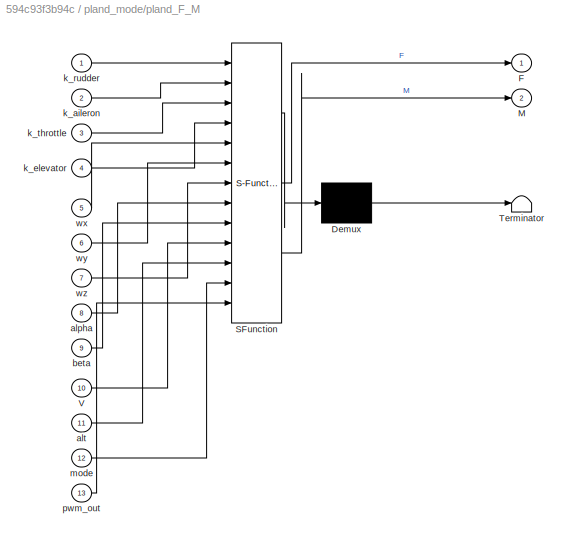
BLOCK [SubSystem] pland_mode/pland_F_M
  ErrorFcn = Stateflow.Translate.translate
  PermitHierarchicalResolution = ExplicitOnly
  Ports = [13, 2]
  RequestExecContextInheritance = off
  SFBlockType = MATLAB Function
  TreatAsAtomicUnit = on
  VariantControl = plane_mode==ENUM_plane_mode.V1000
BLOCK [Demux] pland_mode/pland_F_M/ Demux 
  Outputs = 1
  Ports = [1, 1]
BLOCK [S-Function] pland_mode/pland_F_M/ SFunction 
  EnableBusSupport = on
  FunctionName = sf_sfun
  Parameters = Kd,Ku,Ld,Ldx,Ldy,Lu,Lux,Luy,QLd,QLdx,QLdy,QLu,QLux,QLuy,Qd,Qu,pwm_max,pwm_min
  PortCounts = [13 3]
  Ports = [13, 3]
  SFcnIsStateOwnerBlock = off
  SFunctionDeploymentMode = off
  Tag = Stateflow S-Function 1
BLOCK [Terminator] pland_mode/pland_F_M/ Terminator 
BLOCK [Outport] pland_mode/pland_F_M/F
  VectorParamsAs1DForOutWhenUnconnected = off
BLOCK [Outport] pland_mode/pland_F_M/M
  Port = 2
  VectorParamsAs1DForOutWhenUnconnected = off
BLOCK [Inport] pland_mode/pland_F_M/V
  Port = 10
BLOCK [Inport] pland_mode/pland_F_M/alpha
  Port = 8
BLOCK [Inport] pland_mode/pland_F_M/alt
  Port = 11
BLOCK [Inport] pland_mode/pland_F_M/beta
  Port = 9
BLOCK [Inport] pland_mode/pland_F_M/k_aileron
  Port = 2
BLOCK [Inport] pland_mode/pland_F_M/k_elevator
  Port = 4
BLOCK [Inport] pland_mode/pland_F_M/k_rudder
BLOCK [Inport] pland_mode/pland_F_M/k_throttle
  Port = 3
BLOCK [Inport] pland_mode/pland_F_M/mode
  Port = 12
BLOCK [Inport] pland_mode/pland_F_M/pwm_out
  Port = 13
BLOCK [Inport] pland_mode/pland_F_M/wx
  Port = 5
BLOCK [Inport] pland_mode/pland_F_M/wy
  Port = 6
BLOCK [Inport] pland_mode/pland_F_M/wz
  Port = 7
BLOCK [SubSystem] pland_mode/pland_F_M_4a1
  ErrorFcn = Stateflow.Translate.translate
  PermitHierarchicalResolution = ExplicitOnly
  Ports = [13, 2]
  RequestExecContextInheritance = off
  SFBlockType = MATLAB Function
  TreatAsAtomicUnit = on
  VariantControl = plane_mode==ENUM_plane_mode.V10||plane_mode==ENUM_plane_mode.V10s
BLOCK [Demux] pland_mode/pland_F_M_4a1/ Demux 
  Outputs = 1
  Ports = [1, 1]
BLOCK [S-Function] pland_mode/pland_F_M_4a1/ SFunction 
  EnableBusSupport = on
  FunctionName = sf_sfun
  Parameters = Kd,Ku,Ld,Ldx,Ldy,Lu,Lux,Luy,QLd,QLdx,QLdy,QLu,QLux,QLuy,Qd,Qu,pwm_max,pwm_min
  PortCounts = [13 3]
  Ports = [13, 3]
  SFcnIsStateOwnerBlock = off
  SFunctionDeploymentMode = off
  Tag = Stateflow S-Function 11
BLOCK [Terminator] pland_mode/pland_F_M_4a1/ Terminator 
BLOCK [Outport] pland_mode/pland_F_M_4a1/F
  VectorParamsAs1DForOutWhenUnconnected = off
BLOCK [Outport] pland_mode/pland_F_M_4a1/M
  Port = 2
  VectorParamsAs1DForOutWhenUnconnected = off
BLOCK [Inport] pland_mode/pland_F_M_4a1/V
  Port = 10
BLOCK [Inport] pland_mode/pland_F_M_4a1/alpha
  Port = 8
BLOCK [Inport] pland_mode/pland_F_M_4a1/alt
  Port = 11
BLOCK [Inport] pland_mode/pland_F_M_4a1/beta
  Port = 9
BLOCK [Inport] pland_mode/pland_F_M_4a1/k_aileron
  Port = 2
BLOCK [Inport] pland_mode/pland_F_M_4a1/k_elevator
  Port = 4
BLOCK [Inport] pland_mode/pland_F_M_4a1/k_rudder
BLOCK [Inport] pland_mode/pland_F_M_4a1/k_throttle
  Port = 3
BLOCK [Inport] pland_mode/pland_F_M_4a1/mode
  Port = 12
BLOCK [Inport] pland_mode/pland_F_M_4a1/pwm_out
  Port = 13
BLOCK [Inport] pland_mode/pland_F_M_4a1/wx
  Port = 5
BLOCK [Inport] pland_mode/pland_F_M_4a1/wy
  Port = 6
BLOCK [Inport] pland_mode/pland_F_M_4a1/wz
  Port = 7
BLOCK [Inport] pland_mode/pwm_out
  Port = 13
BLOCK [Inport] pland_mode/wx
  Port = 5
BLOCK [Inport] pland_mode/wy
  Port = 6
BLOCK [Inport] pland_mode/wz
  Port = 7
BLOCK [DataStoreMemory] plane_mode
  DataStoreName = plane_mode
  InitialValue = plane_mode
  OutDataTypeStr = Enum: ENUM_plane_mode
  ReadBeforeWriteMsg = warning
  ShowAdditionalParam = off
  SignalType = real
  VectorParams1D = off
  WriteAfterReadMsg = warning
  WriteAfterWriteMsg = warning
BLOCK [DataStoreMemory] pos_error1
  DataStoreName = pos_error
  InitialValue = pos_error
  OutDataTypeStr = double
  ReadBeforeWriteMsg = warning
  ShowAdditionalParam = off
  SignalType = real
  VectorParams1D = off
  WriteAfterReadMsg = warning
  WriteAfterWriteMsg = warning
BLOCK [DataStoreMemory] pos_target1
  DataStoreName = pos_target
  InitialValue = pos_target
  OutDataTypeStr = double
  ReadBeforeWriteMsg = warning
  ShowAdditionalParam = off
  SignalType = real
  VectorParams1D = off
  WriteAfterReadMsg = warning
  WriteAfterWriteMsg = warning
BLOCK [DataStoreMemory] prev_WP1
  DataStoreName = prev_WP
  InitialValue = prev_WP
  OutDataTypeStr = double
  ReadBeforeWriteMsg = warning
  ShowAdditionalParam = off
  SignalType = real
  VectorParams1D = off
  WriteAfterReadMsg = warning
  WriteAfterWriteMsg = warning
BLOCK [DataStoreMemory] ptchDamp1
  DataStoreName = ptchDamp
  InitialValue = ptchDamp
  OutDataTypeStr = double
  ReadBeforeWriteMsg = warning
  ShowAdditionalParam = off
  SignalType = real
  VectorParams1D = off
  WriteAfterReadMsg = warning
  WriteAfterWriteMsg = warning
BLOCK [DataStoreMemory] pwm_max1
  DataStoreName = pwm_max
  InitialValue = pwm_max
  OutDataTypeStr = double
  ReadBeforeWriteMsg = warning
  ShowAdditionalParam = off
  SignalType = real
  WriteAfterReadMsg = warning
  WriteAfterWriteMsg = warning
BLOCK [DataStoreMemory] pwm_min1
  DataStoreName = pwm_min
  InitialValue = pwm_min
  OutDataTypeStr = double
  ReadBeforeWriteMsg = warning
  ShowAdditionalParam = off
  SignalType = real
  WriteAfterReadMsg = warning
  WriteAfterWriteMsg = warning
BLOCK [DataStoreMemory] pwm_out1
  DataStoreName = pwm_out
  InitialValue = pwm_out
  OutDataTypeStr = double
  ReadBeforeWriteMsg = warning
  ShowAdditionalParam = off
  SignalType = real
  WriteAfterReadMsg = warning
  WriteAfterWriteMsg = warning
BLOCK [DataStoreMemory] pwm_tail
  DataStoreName = pwm_tail
  InitialValue = pwm_tail
  OutDataTypeStr = double
  ReadBeforeWriteMsg = warning
  ShowAdditionalParam = off
  SignalType = real
  VectorParams1D = off
  WriteAfterReadMsg = warning
  WriteAfterWriteMsg = warning
BLOCK [DataStoreMemory] radius1
  DataStoreName = radius
  InitialValue = radius
  OutDataTypeStr = double
  ReadBeforeWriteMsg = warning
  ShowAdditionalParam = off
  SignalType = real
  VectorParams1D = off
  WriteAfterReadMsg = warning
  WriteAfterWriteMsg = warning
BLOCK [DataStoreMemory] rate_bf_ff_enabled1
  DataStoreName = rate_bf_ff_enabled
  InitialValue = rate_bf_ff_enabled
  OutDataTypeStr = double
  ReadBeforeWriteMsg = warning
  ShowAdditionalParam = off
  SignalType = real
  WriteAfterReadMsg = warning
  WriteAfterWriteMsg = warning
BLOCK [DataStoreMemory] rate_pitch_pid_derivative1
  DataStoreName = rate_pitch_pid_derivative
  InitialValue = rate_pitch_pid_derivative
  OutDataTypeStr = double
  ReadBeforeWriteMsg = warning
  ShowAdditionalParam = off
  SignalType = real
  VectorParams1D = off
  WriteAfterReadMsg = warning
  WriteAfterWriteMsg = warning
BLOCK [DataStoreMemory] rate_pitch_pid_input1
  DataStoreName = rate_pitch_pid_input
  InitialValue = rate_pitch_pid_input
  OutDataTypeStr = double
  ReadBeforeWriteMsg = warning
  ShowAdditionalParam = off
  SignalType = real
  VectorParams1D = off
  WriteAfterReadMsg = warning
  WriteAfterWriteMsg = warning
BLOCK [DataStoreMemory] rate_pitch_pid_integrator1
  DataStoreName = rate_pitch_pid_integrator
  InitialValue = rate_pitch_pid_integrator
  OutDataTypeStr = double
  ReadBeforeWriteMsg = warning
  ShowAdditionalParam = off
  SignalType = real
  VectorParams1D = off
  WriteAfterReadMsg = warning
  WriteAfterWriteMsg = warning
BLOCK [DataStoreMemory] rate_pitch_pid_reset_filter1
  DataStoreName = rate_pitch_pid_reset_filter
  InitialValue = rate_pitch_pid_reset_filter
  OutDataTypeStr = double
  ReadBeforeWriteMsg = warning
  ShowAdditionalParam = off
  SignalType = real
  VectorParams1D = off
  WriteAfterReadMsg = warning
  WriteAfterWriteMsg = warning
BLOCK [DataStoreMemory] rate_roll_pid_derivative1
  DataStoreName = rate_roll_pid_derivative
  InitialValue = rate_roll_pid_derivative
  OutDataTypeStr = double
  ReadBeforeWriteMsg = warning
  ShowAdditionalParam = off
  SignalType = real
  VectorParams1D = off
  WriteAfterReadMsg = warning
  WriteAfterWriteMsg = warning
BLOCK [DataStoreMemory] rate_roll_pid_input1
  DataStoreName = rate_roll_pid_input
  InitialValue = rate_roll_pid_input
  OutDataTypeStr = double
  ReadBeforeWriteMsg = warning
  ShowAdditionalParam = off
  SignalType = real
  VectorParams1D = off
  WriteAfterReadMsg = warning
  WriteAfterWriteMsg = warning
BLOCK [DataStoreMemory] rate_roll_pid_integrator1
  DataStoreName = rate_roll_pid_integrator
  InitialValue = rate_roll_pid_integrator
  OutDataTypeStr = double
  ReadBeforeWriteMsg = warning
  ShowAdditionalParam = off
  SignalType = real
  VectorParams1D = off
  WriteAfterReadMsg = warning
  WriteAfterWriteMsg = warning
BLOCK [DataStoreMemory] rate_roll_pid_reset_filter1
  DataStoreName = rate_roll_pid_reset_filter
  InitialValue = rate_roll_pid_reset_filter
  OutDataTypeStr = double
  ReadBeforeWriteMsg = warning
  ShowAdditionalParam = off
  SignalType = real
  VectorParams1D = off
  WriteAfterReadMsg = warning
  WriteAfterWriteMsg = warning
BLOCK [DataStoreMemory] rate_target_ang_vel1
  DataStoreName = rate_target_ang_vel
  InitialValue = rate_target_ang_vel
  OutDataTypeStr = double
  ReadBeforeWriteMsg = warning
  ShowAdditionalParam = off
  SignalType = real
  VectorParams1D = off
  WriteAfterReadMsg = warning
  WriteAfterWriteMsg = warning
BLOCK [DataStoreMemory] rate_yaw_pid_derivative1
  DataStoreName = rate_yaw_pid_derivative
  InitialValue = rate_yaw_pid_derivative
  OutDataTypeStr = double
  ReadBeforeWriteMsg = warning
  ShowAdditionalParam = off
  SignalType = real
  VectorParams1D = off
  WriteAfterReadMsg = warning
  WriteAfterWriteMsg = warning
BLOCK [DataStoreMemory] rate_yaw_pid_input1
  DataStoreName = rate_yaw_pid_input
  InitialValue = rate_yaw_pid_input
  OutDataTypeStr = double
  ReadBeforeWriteMsg = warning
  ShowAdditionalParam = off
  SignalType = real
  VectorParams1D = off
  WriteAfterReadMsg = warning
  WriteAfterWriteMsg = warning
BLOCK [DataStoreMemory] rate_yaw_pid_integrator1
  DataStoreName = rate_yaw_pid_integrator
  InitialValue = rate_roll_pid_integrator
  OutDataTypeStr = double
  ReadBeforeWriteMsg = warning
  ShowAdditionalParam = off
  SignalType = real
  VectorParams1D = off
  WriteAfterReadMsg = warning
  WriteAfterWriteMsg = warning
BLOCK [DataStoreMemory] rate_yaw_pid_reset_filter1
  DataStoreName = rate_yaw_pid_reset_filter
  InitialValue = rate_yaw_pid_reset_filter
  OutDataTypeStr = double
  ReadBeforeWriteMsg = warning
  ShowAdditionalParam = off
  SignalType = real
  VectorParams1D = off
  WriteAfterReadMsg = warning
  WriteAfterWriteMsg = warning
BLOCK [DataStoreMemory] recalc_leash_xy1
  DataStoreName = recalc_leash_xy
  InitialValue = recalc_leash_xy
  OutDataTypeStr = double
  ReadBeforeWriteMsg = warning
  ShowAdditionalParam = off
  SignalType = real
  VectorParams1D = off
  WriteAfterReadMsg = warning
  WriteAfterWriteMsg = warning
BLOCK [DataStoreMemory] recalc_leash_z1
  DataStoreName = recalc_leash_z
  InitialValue = recalc_leash_z
  OutDataTypeStr = double
  ReadBeforeWriteMsg = warning
  ShowAdditionalParam = off
  SignalType = real
  WriteAfterReadMsg = warning
  WriteAfterWriteMsg = warning
BLOCK [DataStoreMemory] reset_accel_to_lean_xy1
  DataStoreName = reset_accel_to_lean_xy
  InitialValue = reset_accel_to_lean_xy
  OutDataTypeStr = double
  ReadBeforeWriteMsg = warning
  ShowAdditionalParam = off
  SignalType = real
  VectorParams1D = off
  WriteAfterReadMsg = warning
  WriteAfterWriteMsg = warning
BLOCK [DataStoreMemory] reset_accel_to_throttle1
  DataStoreName = reset_accel_to_throttle
  InitialValue = reset_accel_to_throttle
  OutDataTypeStr = double
  ReadBeforeWriteMsg = warning
  ShowAdditionalParam = off
  SignalType = real
  VectorParams1D = off
  WriteAfterReadMsg = warning
  WriteAfterWriteMsg = warning
BLOCK [DataStoreMemory] reset_desired_vel_to_pos1
  DataStoreName = reset_desired_vel_to_pos
  InitialValue = reset_desired_vel_to_pos
  OutDataTypeStr = double
  ReadBeforeWriteMsg = warning
  ShowAdditionalParam = off
  SignalType = real
  VectorParams1D = off
  WriteAfterReadMsg = warning
  WriteAfterWriteMsg = warning
BLOCK [DataStoreMemory] reset_rate_to_accel_z1
  DataStoreName = reset_rate_to_accel_z
  InitialValue = reset_rate_to_accel_z
  OutDataTypeStr = double
  ReadBeforeWriteMsg = warning
  ShowAdditionalParam = off
  SignalType = real
  VectorParams1D = off
  WriteAfterReadMsg = warning
  WriteAfterWriteMsg = warning
BLOCK [DataStoreMemory] reverse1
  DataStoreName = reverse
  InitialValue = reverse
  OutDataTypeStr = double
  ReadBeforeWriteMsg = warning
  ShowAdditionalParam = off
  SignalType = real
  VectorParams1D = off
  WriteAfterReadMsg = warning
  WriteAfterWriteMsg = warning
BLOCK [DataStoreMemory] roll1
  DataStoreName = roll
  InitialValue = roll
  OutDataTypeStr = double
  ReadBeforeWriteMsg = warning
  ShowAdditionalParam = off
  SignalType = real
  WriteAfterReadMsg = warning
  WriteAfterWriteMsg = warning
BLOCK [DataStoreMemory] rollComp1
  DataStoreName = rollComp
  InitialValue = rollComp
  OutDataTypeStr = double
  ReadBeforeWriteMsg = warning
  ShowAdditionalParam = off
  SignalType = real
  VectorParams1D = off
  WriteAfterReadMsg = warning
  WriteAfterWriteMsg = warning
BLOCK [DataStoreMemory] roll_factor1
  DataStoreName = roll_factor
  InitialValue = roll_factor
  OutDataTypeStr = double
  ReadBeforeWriteMsg = warning
  ShowAdditionalParam = off
  SignalType = real
  VectorParams1D = off
  WriteAfterReadMsg = warning
  WriteAfterWriteMsg = warning
BLOCK [DataStoreMemory] roll_ff_pitch1
  DataStoreName = roll_ff_pitch
  InitialValue = roll_ff_pitch
  OutDataTypeStr = double
  ReadBeforeWriteMsg = warning
  ShowAdditionalParam = off
  SignalType = real
  WriteAfterReadMsg = warning
  WriteAfterWriteMsg = warning
BLOCK [DataStoreMemory] roll_ff_pitch_inint1
  DataStoreName = roll_ff_pitch_inint
  InitialValue = roll_ff_pitch_inint
  OutDataTypeStr = double
  ReadBeforeWriteMsg = warning
  ShowAdditionalParam = off
  SignalType = real
  VectorParams1D = off
  WriteAfterReadMsg = warning
  WriteAfterWriteMsg = warning
BLOCK [DataStoreMemory] roll_in1
  DataStoreName = roll_in
  InitialValue = roll_in
  OutDataTypeStr = double
  ReadBeforeWriteMsg = warning
  ShowAdditionalParam = off
  SignalType = real
  VectorParams1D = off
  WriteAfterReadMsg = warning
  WriteAfterWriteMsg = warning
BLOCK [DataStoreMemory] roll_limit_cd1
  DataStoreName = roll_limit_cd
  InitialValue = roll_limit_cd
  OutDataTypeStr = double
  ReadBeforeWriteMsg = warning
  ShowAdditionalParam = off
  SignalType = real
  WriteAfterReadMsg = warning
  WriteAfterWriteMsg = warning
BLOCK [DataStoreMemory] roll_limit_cd_inint1
  DataStoreName = roll_limit_cd_inint
  InitialValue = roll_limit_cd_inint
  OutDataTypeStr = double
  ReadBeforeWriteMsg = warning
  ShowAdditionalParam = off
  SignalType = real
  WriteAfterReadMsg = warning
  WriteAfterWriteMsg = warning
BLOCK [DataStoreMemory] roll_target1
  DataStoreName = roll_target
  InitialValue = roll_target
  OutDataTypeStr = double
  ReadBeforeWriteMsg = warning
  ShowAdditionalParam = off
  SignalType = real
  VectorParams1D = off
  WriteAfterReadMsg = warning
  WriteAfterWriteMsg = warning
BLOCK [DataStoreMemory] roll_target_pilot1
  DataStoreName = roll_target_pilot
  InitialValue = roll_target_pilot
  OutDataTypeStr = double
  ReadBeforeWriteMsg = warning
  ShowAdditionalParam = off
  SignalType = real
  VectorParams1D = off
  WriteAfterReadMsg = warning
  WriteAfterWriteMsg = warning
BLOCK [DataStoreMemory] rot_body_to_ned1
  DataStoreName = rot_body_to_ned
  InitialValue = rot_body_to_ned
  OutDataTypeStr = double
  ReadBeforeWriteMsg = warning
  ShowAdditionalParam = off
  SignalType = real
  VectorParams1D = off
  WriteAfterReadMsg = warning
  WriteAfterWriteMsg = warning
BLOCK [DataStoreMemory] scaling_speed1
  DataStoreName = scaling_speed
  InitialValue = scaling_speed
  OutDataTypeStr = double
  ReadBeforeWriteMsg = warning
  ShowAdditionalParam = off
  SignalType = real
  WriteAfterReadMsg = warning
  WriteAfterWriteMsg = warning
BLOCK [DataStoreMemory] slew_yaw1
  DataStoreName = slew_yaw
  InitialValue = slew_yaw
  OutDataTypeStr = double
  ReadBeforeWriteMsg = warning
  ShowAdditionalParam = off
  SignalType = real
  VectorParams1D = off
  WriteAfterReadMsg = warning
  WriteAfterWriteMsg = warning
BLOCK [DataStoreMemory] smoothed_airspeed1
  DataStoreName = smoothed_airspeed
  InitialValue = smoothed_airspeed
  OutDataTypeStr = double
  ReadBeforeWriteMsg = warning
  ShowAdditionalParam = off
  SignalType = real
  WriteAfterReadMsg = warning
  WriteAfterWriteMsg = warning
BLOCK [DataStoreMemory] spdCompFiltOmega1
  DataStoreName = spdCompFiltOmega
  InitialValue = spdCompFiltOmega
  OutDataTypeStr = double
  ReadBeforeWriteMsg = warning
  ShowAdditionalParam = off
  SignalType = real
  VectorParams1D = off
  WriteAfterReadMsg = warning
  WriteAfterWriteMsg = warning
BLOCK [DataStoreMemory] spdWeight1
  DataStoreName = spdWeight
  InitialValue = spdWeight
  OutDataTypeStr = double
  ReadBeforeWriteMsg = warning
  ShowAdditionalParam = off
  SignalType = real
  VectorParams1D = off
  WriteAfterReadMsg = warning
  WriteAfterWriteMsg = warning
BLOCK [DataStoreMemory] tail_tilt1
  DataStoreName = tail_tilt
  InitialValue = tail_tilt
  OutDataTypeStr = double
  ReadBeforeWriteMsg = warning
  ShowAdditionalParam = off
  SignalType = real
  VectorParams1D = off
  WriteAfterReadMsg = warning
  WriteAfterWriteMsg = warning
BLOCK [DataStoreMemory] tail_tilt_c2p1
  DataStoreName = tail_tilt_c2p
  InitialValue = tail_tilt_c2p
  OutDataTypeStr = double
  ReadBeforeWriteMsg = warning
  ShowAdditionalParam = off
  SignalType = real
  VectorParams1D = off
  WriteAfterReadMsg = warning
  WriteAfterWriteMsg = warning
BLOCK [DataStoreMemory] tail_tilt_p2c1
  DataStoreName = tail_tilt_p2c
  InitialValue = tail_tilt_p2c
  OutDataTypeStr = double
  ReadBeforeWriteMsg = warning
  ShowAdditionalParam = off
  SignalType = real
  VectorParams1D = off
  WriteAfterReadMsg = warning
  WriteAfterWriteMsg = warning
BLOCK [DataStoreMemory] tail_tilt_rate1
  DataStoreName = tail_tilt_rate
  InitialValue = tail_tilt_rate
  OutDataTypeStr = double
  ReadBeforeWriteMsg = warning
  ShowAdditionalParam = off
  SignalType = real
  VectorParams1D = off
  WriteAfterReadMsg = warning
  WriteAfterWriteMsg = warning
BLOCK [DataStoreMemory] take_off_land
  DataStoreName = take_off_land
  InitialValue = take_off_land
  OutDataTypeStr = double
  ReadBeforeWriteMsg = warning
  ShowAdditionalParam = off
  SignalType = real
  VectorParams1D = off
  WriteAfterReadMsg = warning
  WriteAfterWriteMsg = warning
BLOCK [DataStoreMemory] target_bearing_cd1
  DataStoreName = target_bearing_cd
  InitialValue = target_bearing_cd
  OutDataTypeStr = double
  ReadBeforeWriteMsg = warning
  ShowAdditionalParam = off
  SignalType = real
  VectorParams1D = off
  WriteAfterReadMsg = warning
  WriteAfterWriteMsg = warning
BLOCK [DataStoreMemory] target_yaw_rate1
  DataStoreName = target_yaw_rate
  InitialValue = target_yaw_rate
  OutDataTypeStr = double
  ReadBeforeWriteMsg = warning
  ShowAdditionalParam = off
  SignalType = real
  VectorParams1D = off
  WriteAfterReadMsg = warning
  WriteAfterWriteMsg = warning
BLOCK [DataStoreMemory] thrDamp1
  DataStoreName = thrDamp
  InitialValue = thrDamp
  OutDataTypeStr = double
  ReadBeforeWriteMsg = warning
  ShowAdditionalParam = off
  SignalType = real
  VectorParams1D = off
  WriteAfterReadMsg = warning
  WriteAfterWriteMsg = warning
BLOCK [DataStoreMemory] thr_out_min
  DataStoreName = thr_out_min
  InitialValue = thr_out_min
  OutDataTypeStr = double
  ReadBeforeWriteMsg = warning
  ShowAdditionalParam = off
  SignalType = real
  VectorParams1D = off
  WriteAfterReadMsg = warning
  WriteAfterWriteMsg = warning
BLOCK [DataStoreMemory] throttle_avg_max1
  DataStoreName = throttle_avg_max
  InitialValue = throttle_avg_max
  OutDataTypeStr = double
  ReadBeforeWriteMsg = warning
  ShowAdditionalParam = off
  SignalType = real
  VectorParams1D = off
  WriteAfterReadMsg = warning
  WriteAfterWriteMsg = warning
BLOCK [DataStoreMemory] throttle_cruise1
  DataStoreName = throttle_cruise
  InitialValue = throttle_cruise
  OutDataTypeStr = double
  ReadBeforeWriteMsg = warning
  ShowAdditionalParam = off
  SignalType = real
  VectorParams1D = off
  WriteAfterReadMsg = warning
  WriteAfterWriteMsg = warning
BLOCK [DataStoreMemory] throttle_cutoff_frequency1
  DataStoreName = throttle_cutoff_frequency
  InitialValue = throttle_cutoff_frequency
  OutDataTypeStr = double
  ReadBeforeWriteMsg = warning
  ShowAdditionalParam = off
  SignalType = real
  VectorParams1D = off
  WriteAfterReadMsg = warning
  WriteAfterWriteMsg = warning
BLOCK [DataStoreMemory] throttle_dem1
  DataStoreName = throttle_dem
  InitialValue = throttle_dem
  OutDataTypeStr = double
  ReadBeforeWriteMsg = warning
  ShowAdditionalParam = off
  SignalType = real
  VectorParams1D = off
  WriteAfterReadMsg = warning
  WriteAfterWriteMsg = warning
BLOCK [DataStoreMemory] throttle_filter1
  DataStoreName = throttle_filter
  InitialValue = throttle_filter
  OutDataTypeStr = double
  ReadBeforeWriteMsg = warning
  ShowAdditionalParam = off
  SignalType = real
  VectorParams1D = off
  WriteAfterReadMsg = warning
  WriteAfterWriteMsg = warning
BLOCK [DataStoreMemory] throttle_ground
  DataStoreName = throttle_ground
  InitialValue = throttle_ground
  OutDataTypeStr = double
  ReadBeforeWriteMsg = warning
  ShowAdditionalParam = off
  SignalType = real
  VectorParams1D = off
  WriteAfterReadMsg = warning
  WriteAfterWriteMsg = warning
BLOCK [DataStoreMemory] throttle_hover1
  DataStoreName = throttle_hover
  InitialValue = throttle_hover
  OutDataTypeStr = double
  ReadBeforeWriteMsg = warning
  ShowAdditionalParam = off
  SignalType = real
  VectorParams1D = off
  WriteAfterReadMsg = warning
  WriteAfterWriteMsg = warning
BLOCK [DataStoreMemory] throttle_in1
  DataStoreName = throttle_in
  InitialValue = throttle_in
  OutDataTypeStr = double
  ReadBeforeWriteMsg = warning
  ShowAdditionalParam = off
  SignalType = real
  VectorParams1D = off
  WriteAfterReadMsg = warning
  WriteAfterWriteMsg = warning
BLOCK [DataStoreMemory] throttle_lower1
  DataStoreName = throttle_lower
  InitialValue = throttle_lower
  OutDataTypeStr = double
  ReadBeforeWriteMsg = warning
  ShowAdditionalParam = off
  SignalType = real
  VectorParams1D = off
  WriteAfterReadMsg = warning
  WriteAfterWriteMsg = warning
BLOCK [DataStoreMemory] throttle_max1
  DataStoreName = throttle_max
  InitialValue = throttle_max
  OutDataTypeStr = double
  ReadBeforeWriteMsg = warning
  ShowAdditionalParam = off
  SignalType = real
  VectorParams1D = off
  WriteAfterReadMsg = warning
  WriteAfterWriteMsg = warning
BLOCK [DataStoreMemory] throttle_min1
  DataStoreName = throttle_min
  InitialValue = throttle_min
  OutDataTypeStr = double
  ReadBeforeWriteMsg = warning
  ShowAdditionalParam = off
  SignalType = real
  VectorParams1D = off
  WriteAfterReadMsg = warning
  WriteAfterWriteMsg = warning
BLOCK [DataStoreMemory] throttle_off_rate
  DataStoreName = throttle_off_rate
  InitialValue = throttle_off_rate
  OutDataTypeStr = double
  ReadBeforeWriteMsg = warning
  ShowAdditionalParam = off
  SignalType = real
  VectorParams1D = off
  WriteAfterReadMsg = warning
  WriteAfterWriteMsg = warning
BLOCK [DataStoreMemory] throttle_rpy_mix1
  DataStoreName = throttle_rpy_mix
  InitialValue = throttle_rpy_mix
  OutDataTypeStr = double
  ReadBeforeWriteMsg = warning
  ShowAdditionalParam = off
  SignalType = real
  VectorParams1D = off
  WriteAfterReadMsg = warning
  WriteAfterWriteMsg = warning
BLOCK [DataStoreMemory] throttle_rpy_mix_desired1
  DataStoreName = throttle_rpy_mix_desired
  InitialValue = throttle_rpy_mix_desired
  OutDataTypeStr = double
  ReadBeforeWriteMsg = warning
  ShowAdditionalParam = off
  SignalType = real
  VectorParams1D = off
  WriteAfterReadMsg = warning
  WriteAfterWriteMsg = warning
BLOCK [DataStoreMemory] throttle_slewrate1
  DataStoreName = throttle_slewrate
  InitialValue = throttle_slewrate
  OutDataTypeStr = double
  ReadBeforeWriteMsg = warning
  ShowAdditionalParam = off
  SignalType = real
  VectorParams1D = off
  WriteAfterReadMsg = warning
  WriteAfterWriteMsg = warning
BLOCK [DataStoreMemory] throttle_thrust_max1
  DataStoreName = throttle_thrust_max
  InitialValue = throttle_thrust_max
  OutDataTypeStr = double
  ReadBeforeWriteMsg = warning
  ShowAdditionalParam = off
  SignalType = real
  VectorParams1D = off
  WriteAfterReadMsg = warning
  WriteAfterWriteMsg = warning
BLOCK [DataStoreMemory] throttle_upper1
  DataStoreName = throttle_upper
  InitialValue = throttle_upper
  OutDataTypeStr = double
  ReadBeforeWriteMsg = warning
  ShowAdditionalParam = off
  SignalType = real
  VectorParams1D = off
  WriteAfterReadMsg = warning
  WriteAfterWriteMsg = warning
BLOCK [DataStoreMemory] thrust_boost1
  DataStoreName = thrust_boost
  InitialValue = thrust_boost
  OutDataTypeStr = double
  ReadBeforeWriteMsg = warning
  ShowAdditionalParam = off
  SignalType = real
  VectorParams1D = off
  WriteAfterReadMsg = warning
  WriteAfterWriteMsg = warning
BLOCK [DataStoreMemory] thrust_boost_ratio1
  DataStoreName = thrust_boost_ratio
  InitialValue = thrust_boost_ratio
  OutDataTypeStr = double
  ReadBeforeWriteMsg = warning
  ShowAdditionalParam = off
  SignalType = real
  VectorParams1D = off
  WriteAfterReadMsg = warning
  WriteAfterWriteMsg = warning
BLOCK [DataStoreMemory] thrust_error_angle1
  DataStoreName = thrust_error_angle
  InitialValue = thrust_error_angle
  OutDataTypeStr = double
  ReadBeforeWriteMsg = warning
  ShowAdditionalParam = off
  SignalType = real
  VectorParams1D = off
  WriteAfterReadMsg = warning
  WriteAfterWriteMsg = warning
BLOCK [DataStoreMemory] thrust_rpyt_out1
  DataStoreName = thrust_rpyt_out
  InitialValue = thrust_rpyt_out
  OutDataTypeStr = double
  ReadBeforeWriteMsg = warning
  ShowAdditionalParam = off
  SignalType = real
  VectorParams1D = off
  WriteAfterReadMsg = warning
  WriteAfterWriteMsg = warning
BLOCK [DataStoreMemory] thrust_slew_time1
  DataStoreName = thrust_slew_time
  InitialValue = thrust_slew_time
  OutDataTypeStr = double
  ReadBeforeWriteMsg = warning
  ShowAdditionalParam = off
  SignalType = real
  VectorParams1D = off
  WriteAfterReadMsg = warning
  WriteAfterWriteMsg = warning
BLOCK [DataStoreMemory] timeConstant1
  DataStoreName = timeConstant
  InitialValue = timeConstant
  OutDataTypeStr = double
  ReadBeforeWriteMsg = warning
  ShowAdditionalParam = off
  SignalType = real
  VectorParams1D = off
  WriteAfterReadMsg = warning
  WriteAfterWriteMsg = warning
BLOCK [DataStoreMemory] use_desvel_ff_z1
  DataStoreName = use_desvel_ff_z
  InitialValue = use_desvel_ff_z
  OutDataTypeStr = double
  ReadBeforeWriteMsg = warning
  ShowAdditionalParam = off
  SignalType = real
  VectorParams1D = off
  WriteAfterReadMsg = warning
  WriteAfterWriteMsg = warning
BLOCK [DataStoreMemory] use_sqrt_controller1
  DataStoreName = use_sqrt_controller
  InitialValue = use_sqrt_controller
  OutDataTypeStr = double
  ReadBeforeWriteMsg = warning
  ShowAdditionalParam = off
  SignalType = real
  WriteAfterReadMsg = warning
  WriteAfterWriteMsg = warning
BLOCK [DataStoreMemory] vdot_filter1
  DataStoreName = vdot_filter
  InitialValue = vdot_filter
  OutDataTypeStr = double
  ReadBeforeWriteMsg = warning
  ShowAdditionalParam = off
  SignalType = real
  WriteAfterReadMsg = warning
  WriteAfterWriteMsg = warning
BLOCK [DataStoreMemory] vel_desired1
  DataStoreName = vel_desired
  InitialValue = vel_desired
  OutDataTypeStr = double
  ReadBeforeWriteMsg = warning
  ShowAdditionalParam = off
  SignalType = real
  VectorParams1D = off
  WriteAfterReadMsg = warning
  WriteAfterWriteMsg = warning
BLOCK [DataStoreMemory] vel_dot1
  DataStoreName = vel_dot
  InitialValue = vel_dot
  OutDataTypeStr = double
  ReadBeforeWriteMsg = warning
  ShowAdditionalParam = off
  SignalType = real
  VectorParams1D = off
  WriteAfterReadMsg = warning
  WriteAfterWriteMsg = warning
BLOCK [DataStoreMemory] vel_error1
  DataStoreName = vel_error
  InitialValue = vel_error
  OutDataTypeStr = double
  ReadBeforeWriteMsg = warning
  ShowAdditionalParam = off
  SignalType = real
  VectorParams1D = off
  WriteAfterReadMsg = warning
  WriteAfterWriteMsg = warning
BLOCK [DataStoreMemory] vel_error_input1
  DataStoreName = vel_error_input
  InitialValue = vel_error_input
  OutDataTypeStr = double
  ReadBeforeWriteMsg = warning
  ShowAdditionalParam = off
  SignalType = real
  VectorParams1D = off
  WriteAfterReadMsg = warning
  WriteAfterWriteMsg = warning
BLOCK [DataStoreMemory] vel_forward_gain1
  DataStoreName = vel_forward_gain
  InitialValue = vel_forward_gain
  OutDataTypeStr = double
  ReadBeforeWriteMsg = warning
  ShowAdditionalParam = off
  SignalType = real
  VectorParams1D = off
  WriteAfterReadMsg = warning
  WriteAfterWriteMsg = warning
BLOCK [DataStoreMemory] vel_forward_integrator
  DataStoreName = vel_forward_integrator
  InitialValue = vel_forward_integrator
  OutDataTypeStr = double
  ReadBeforeWriteMsg = warning
  ShowAdditionalParam = off
  SignalType = real
  VectorParams1D = off
  WriteAfterReadMsg = warning
  WriteAfterWriteMsg = warning
BLOCK [DataStoreMemory] vel_forward_last_pct1
  DataStoreName = vel_forward_last_pct
  InitialValue = vel_forward_last_pct
  OutDataTypeStr = double
  ReadBeforeWriteMsg = warning
  ShowAdditionalParam = off
  SignalType = real
  VectorParams1D = off
  WriteAfterReadMsg = warning
  WriteAfterWriteMsg = warning
BLOCK [DataStoreMemory] vel_forward_min_pitch1
  DataStoreName = vel_forward_min_pitch
  InitialValue = vel_forward_min_pitch
  OutDataTypeStr = double
  ReadBeforeWriteMsg = warning
  ShowAdditionalParam = off
  SignalType = real
  VectorParams1D = off
  WriteAfterReadMsg = warning
  WriteAfterWriteMsg = warning
BLOCK [DataStoreMemory] vel_forward_tail_tilt_max1
  DataStoreName = vel_forward_tail_tilt_max
  InitialValue = vel_forward_tail_tilt_max
  OutDataTypeStr = double
  ReadBeforeWriteMsg = warning
  ShowAdditionalParam = off
  SignalType = real
  VectorParams1D = off
  WriteAfterReadMsg = warning
  WriteAfterWriteMsg = warning
BLOCK [DataStoreMemory] vel_last1
  DataStoreName = vel_last
  InitialValue = vel_last
  OutDataTypeStr = double
  ReadBeforeWriteMsg = warning
  ShowAdditionalParam = off
  SignalType = real
  VectorParams1D = off
  WriteAfterReadMsg = warning
  WriteAfterWriteMsg = warning
BLOCK [DataStoreMemory] vel_target1
  DataStoreName = vel_target
  InitialValue = vel_target
  OutDataTypeStr = double
  ReadBeforeWriteMsg = warning
  ShowAdditionalParam = off
  SignalType = real
  VectorParams1D = off
  WriteAfterReadMsg = warning
  WriteAfterWriteMsg = warning
BLOCK [DataStoreMemory] vertAccLim1
  DataStoreName = vertAccLim
  InitialValue = vertAccLim
  OutDataTypeStr = double
  ReadBeforeWriteMsg = warning
  ShowAdditionalParam = off
  SignalType = real
  VectorParams1D = off
  WriteAfterReadMsg = warning
  WriteAfterWriteMsg = warning
BLOCK [DataStoreMemory] weathervane_gain1
  DataStoreName = weathervane_gain
  InitialValue = weathervane_gain
  OutDataTypeStr = double
  ReadBeforeWriteMsg = warning
  ShowAdditionalParam = off
  SignalType = real
  VectorParams1D = off
  WriteAfterReadMsg = warning
  WriteAfterWriteMsg = warning
BLOCK [DataStoreMemory] weathervane_last_output1
  DataStoreName = weathervane_last_output
  InitialValue = weathervane_last_output
  OutDataTypeStr = double
  ReadBeforeWriteMsg = warning
  ShowAdditionalParam = off
  SignalType = real
  VectorParams1D = off
  WriteAfterReadMsg = warning
  WriteAfterWriteMsg = warning
BLOCK [DataStoreMemory] weathervane_min_roll1
  DataStoreName = weathervane_min_roll
  InitialValue = weathervane_min_roll
  OutDataTypeStr = double
  ReadBeforeWriteMsg = warning
  ShowAdditionalParam = off
  SignalType = real
  VectorParams1D = off
  WriteAfterReadMsg = warning
  WriteAfterWriteMsg = warning
BLOCK [DataStoreMemory] yaw1
  DataStoreName = yaw
  InitialValue = yaw
  OutDataTypeStr = double
  ReadBeforeWriteMsg = warning
  ShowAdditionalParam = off
  SignalType = real
  VectorParams1D = off
  WriteAfterReadMsg = warning
  WriteAfterWriteMsg = warning
BLOCK [DataStoreMemory] yaw_factor1
  DataStoreName = yaw_factor
  InitialValue = yaw_factor
  OutDataTypeStr = double
  ReadBeforeWriteMsg = warning
  ShowAdditionalParam = off
  SignalType = real
  VectorParams1D = off
  WriteAfterReadMsg = warning
  WriteAfterWriteMsg = warning
BLOCK [DataStoreMemory] yaw_headroom1
  DataStoreName = yaw_headroom
  InitialValue = yaw_headroom
  OutDataTypeStr = double
  ReadBeforeWriteMsg = warning
  ShowAdditionalParam = off
  SignalType = real
  VectorParams1D = off
  WriteAfterReadMsg = warning
  WriteAfterWriteMsg = warning
BLOCK [DataStoreMemory] yaw_in1
  DataStoreName = yaw_in
  InitialValue = yaw_in
  OutDataTypeStr = double
  ReadBeforeWriteMsg = warning
  ShowAdditionalParam = off
  SignalType = real
  VectorParams1D = off
  WriteAfterReadMsg = warning
  WriteAfterWriteMsg = warning
BLOCK [DataStoreMemory] yaw_in_max
  DataStoreName = yaw_in_max
  InitialValue = yaw_in_max
  OutDataTypeStr = double
  ReadBeforeWriteMsg = warning
  ShowAdditionalParam = off
  SignalType = real
  VectorParams1D = off
  WriteAfterReadMsg = warning
  WriteAfterWriteMsg = warning
BLOCK [DataStoreMemory] yaw_max_c2p1
  DataStoreName = yaw_max_c2p
  InitialValue = yaw_max_c2p
  OutDataTypeStr = double
  ReadBeforeWriteMsg = warning
  ShowAdditionalParam = off
  SignalType = real
  VectorParams1D = off
  WriteAfterReadMsg = warning
  WriteAfterWriteMsg = warning
BLOCK [DataStoreMemory] yaw_rate_max1
  DataStoreName = yaw_rate_max
  InitialValue = yaw_rate_max
  OutDataTypeStr = double
  ReadBeforeWriteMsg = warning
  ShowAdditionalParam = off
  SignalType = real
  VectorParams1D = off
  WriteAfterReadMsg = warning
  WriteAfterWriteMsg = warning
BLOCK [DataStoreMemory] z_accel_meas1
  DataStoreName = z_accel_meas
  InitialValue = z_accel_meas
  OutDataTypeStr = double
  ReadBeforeWriteMsg = warning
  ShowAdditionalParam = off
  SignalType = real
  VectorParams1D = off
  WriteAfterReadMsg = warning
  WriteAfterWriteMsg = warning
LINE 6DOF (Euler Angles)2:1 -> Goto18:1
LINE 6DOF (Euler Angles)2:2 -> Goto17:1
LINE 6DOF (Euler Angles)2:3 -> Goto12:1
LINE 6DOF (Euler Angles)2:4 -> Goto15:1
LINE 6DOF (Euler Angles)2:5 -> Goto16:1
LINE 6DOF (Euler Angles)2:6 -> Goto11:1
LINE 6DOF (Euler Angles)2:7 -> Terminator8:1
LINE 6DOF (Euler Angles)2:8 -> Goto14:1
NET Add1:1 -> 6DOF (Euler Angles)2:1, Scope144:1
LINE Add2:1 -> Demux22:1
LINE Atan3:1 -> Goto13:1
LINE Atan4:1 -> Goto21:1
LINE Constant12:1 -> Mux4:1
LINE Constant13:1 -> Mux4:2
LINE Constant14:1 -> Data Store Write55:1
LINE Constant1:1 -> Data Store Write:1
LINE Constant25:1 -> Data Store Write43:1
LINE Constant26:1 -> Data Store Write34:1
LINE Constant27:1 -> Data Store Write35:1
LINE Constant28:1 -> Data Store Write54:1
LINE Constant29:1 -> Data Store Write60:1
LINE Constant30:1 -> Mux4:3
LINE Constant31:1 -> Data Store Write36:1
LINE Constant32:1 -> Data Store Write45:1
LINE Constant33:1 -> Data Store Write48:1
LINE Constant34:1 -> Data Store Write37:1
LINE Constant35:1 -> Data Store Write31:1
NET Constant36:1 -> Demux43:1, get_vector_xy_from_origin_NE1:2
LINE Constant37:1 -> Data Store Write33:1
LINE Constant38:1 -> Location_offset1:1
LINE Constant39:1 -> Data Store Write46:1
LINE Constant40:1 -> Data Store Write47:1
LINE Constant41:1 -> Data Store Write53:1
LINE Data Store Read107:1 -> Gain43:1
LINE Data Store Read108:1 -> Demux9:1
LINE Data Store Read109:1 -> Scope141:1
NET Data Store Read110:1 -> Scope122:2, Scope60:1
NET Data Store Read111:1 -> Gain30:1, pland_mode:1
NET Data Store Read112:1 -> Scope173:1, pland_mode:2
NET Data Store Read113:1 -> Scope102:1, Scope122:1
NET Data Store Read114:1 -> Scope179:1, pland_mode:3
NET Data Store Read116:1 -> Scope66:1, pland_mode:4
LINE Data Store Read117:1 -> Gain31:1
LINE Data Store Read118:1 -> Gain32:1
LINE Data Store Read119:1 -> Gain33:1
LINE Data Store Read120:1 -> Demux13:1
NET Data Store Read121:1 -> Scope121:2, Scope142:1
LINE Data Store Read122:1 -> Scope127:1
LINE Data Store Read123:1 -> Scope115:1
LINE Data Store Read124:1 -> Scope123:1
LINE Data Store Read125:1 -> Scope132:1
NET Data Store Read126:1 -> Demux14:1, Scope145:1
LINE Data Store Read127:1 -> Demux16:1
LINE Data Store Read128:1 -> Demux19:1
LINE Data Store Read129:1 -> Demux38:1
LINE Data Store Read130:1 -> Demux23:1
LINE Data Store Read131:1 -> Demux40:1
LINE Data Store Read132:1 -> Scope159:1
LINE Data Store Read133:1 -> Scope96:1
LINE Data Store Read134:1 -> Gain2:1
LINE Data Store Read135:1 -> Scope161:1
LINE Data Store Read136:1 -> Scope160:1
LINE Data Store Read137:1 -> Scope169:1
LINE Data Store Read138:1 -> Scope165:1
LINE Data Store Read139:1 -> Scope171:1
LINE Data Store Read140:1 -> Scope168:1
LINE Data Store Read141:1 -> Scope172:1
LINE Data Store Read142:1 -> Scope174:1
LINE Data Store Read143:1 -> Gain38:1
LINE Data Store Read1:1 -> Gain1:1
LINE Data Store Read32:1 -> pland_mode:13
LINE Data Store Read33:1 -> pland_mode:12
LINE Data Store Read34:1 -> Scope170:1
LINE Data Store Read36:1 -> Gain39:1
LINE Data Store Read37:1 -> Scope80:1
LINE Data Store Read38:1 -> Gain40:1
LINE Data Store Read39:1 -> Gain42:1
LINE Data Store Read40:1 -> Gain41:1
LINE Data Store Read41:1 -> Scope88:1
LINE Data Store Read42:1 -> Scope88:2
LINE Data Store Read43:1 -> Scope162:1
LINE Data Store Read44:1 -> Scope176:1
LINE Data Store Read45:1 -> Scope176:2
LINE Data Store Read46:1 -> Gain26:1
NET Data Store Read48:1 -> Demux15:1, Scope97:1
LINE Data Store Read50:1 -> Scope98:1
LINE Data Store Read53:1 -> Gain46:1
LINE Data Store Read54:1 -> Gain47:1
LINE Data Store Read55:1 -> Scope118:1
LINE Data Store Read56:1 -> Scope65:1
LINE Data Store Read57:1 -> Scope133:1
LINE Data Store Read58:1 -> Scope126:1
LINE Data Store Read59:1 -> Scope128:1
LINE Data Store Read60:1 -> Display1:1
LINE Data Store Read62:1 -> Scope130:1
LINE Data Store Read63:1 -> Scope129:1
LINE Data Store Read64:1 -> Scope131:1
NET Data Store Read65:1 -> Demux45:1, Scope134:1
LINE Data Store Read66:1 -> Mux5:1
NET Data Store Read67:1 -> Scope147:1, Scope148:2
LINE Data Store Read68:1 -> Gain36:1
LINE Data Store Read69:1 -> Scope148:1
LINE Data Store Read70:1 -> Scope149:1
LINE Data Store Read71:1 -> Scope153:1
LINE Data Store Read74:1 -> Gain48:1
LINE Data Store Read:1 -> Scope1:1
NET Delay4:1 -> Location_offset1:2, Scope99:2
NET Delay5:1 -> Location_offset1:3, Scope100:2
LINE Delay6:1 -> Add1:1
LINE Delay7:1 -> 6DOF (Euler Angles)2:2
LINE Demux10:1 -> Data Store Write56:1
LINE Demux10:2 -> Data Store Write57:1
LINE Demux10:3 -> Data Store Write58:1
LINE Demux12:1 -> Terminator6:1
LINE Demux12:2 -> Terminator7:1
NET Demux12:3 -> Gain28:1, Gain44:1
LINE Demux13:1 -> Scope95:1
LINE Demux13:2 -> Scope95:2
NET Demux13:3 -> Scope124:2, Scope95:3
LINE Demux14:1 -> Scope143:1
LINE Demux14:2 -> Scope143:2
LINE Demux14:3 -> Scope143:3
LINE Demux14:4 -> Scope143:4
LINE Demux15:1 -> Scope155:1
LINE Demux15:2 -> Scope155:2
LINE Demux15:3 -> Scope155:3
LINE Demux15:4 -> Scope155:4
LINE Demux16:1 -> Scope150:1
LINE Demux16:2 -> Scope150:2
LINE Demux16:3 -> Scope150:3
LINE Demux19:1 -> Scope151:1
LINE Demux19:2 -> Scope151:2
NET Demux19:3 -> Scope124:1, Scope151:3
LINE Demux20:1 -> pland_mode:5
LINE Demux20:2 -> pland_mode:6
LINE Demux20:3 -> pland_mode:7
LINE Demux21:3 -> Gain27:1
LINE Demux22:1 -> Data Store Write40:1
LINE Demux22:2 -> Data Store Write39:1
LINE Demux22:3 -> Data Store Write44:1
LINE Demux23:1 -> Scope157:1
LINE Demux23:2 -> Scope157:2
NET Demux23:3 -> Scope121:1, Scope157:3
LINE Demux36:1 -> Scope99:1
LINE Demux36:2 -> Scope100:1
LINE Demux37:1 -> Data Store Write51:1
LINE Demux37:2 -> Data Store Write38:1
LINE Demux37:3 -> Data Store Write52:1
LINE Demux38:1 -> Scope154:1
LINE Demux38:2 -> Scope154:2
LINE Demux38:3 -> Scope154:3
LINE Demux39:1 -> Mux3:1
LINE Demux39:2 -> Mux3:2
LINE Demux39:3 -> Data Store Write49:1
LINE Demux40:1 -> Scope158:1
LINE Demux40:2 -> Scope158:2
LINE Demux40:3 -> Scope158:3
LINE Demux41:1 -> Delay4:1
LINE Demux41:2 -> Delay5:1
LINE Demux42:1 -> Scope58:1
LINE Demux42:2 -> Scope85:1
LINE Demux43:1 -> Scope110:1
LINE Demux43:2 -> Scope113:1
LINE Demux44:1 -> Hypot2:1
LINE Demux44:2 -> Hypot2:2
LINE Demux44:3 -> Terminator9:1
LINE Demux45:1 -> Hypot3:1
LINE Demux45:2 -> Hypot3:2
LINE Demux46:1 -> Atan4:2
LINE Demux46:2 -> Atan4:1
LINE Demux46:3 -> Terminator10:1
LINE Demux47:1 -> Atan3:2
LINE Demux47:2 -> Atan3:1
LINE Demux47:3 -> Terminator11:1
LINE Demux9:1 -> Scope116:1
LINE Demux9:2 -> Scope116:2
NET Derivative1:1 -> Scope137:1, Scope138:2
LINE From16:1 -> Demux20:1
LINE From17:1 -> Demux10:1
NET From18:1 -> Demux12:1, Demux41:1, Scope125:1
NET From19:1 -> Scope136:1, To Workspace3:1
NET From20:1 -> Demux39:1, Demux47:1, Gain45:1, Scope152:1
LINE From21:1 -> Sum1:1
LINE From22:1 -> Incidence, Sideslip & Airspeed2:1
LINE From23:1 -> Mux5:3
LINE From24:1 -> Demux37:1
LINE From25:1 -> Add2:1
LINE From26:1 -> Inertial to Body6:1
LINE From27:1 -> Inertial to Body4:1
LINE From28:1 -> Mux5:2
LINE From29:1 -> Demux21:1
LINE From30:1 -> Inertial to Body5:1
LINE From31:1 -> Incidence, Sideslip & Airspeed3:1
LINE Gain14:1 -> Scope140:1
LINE Gain1:1 -> Scope163:1
LINE Gain26:1 -> Scope170:2
LINE Gain27:1 -> pland_mode:11
LINE Gain28:1 -> Data Store Write50:1
LINE Gain29:1 -> Add2:2
LINE Gain2:1 -> Scope163:2
LINE Gain30:1 -> Scope167:1
LINE Gain31:1 -> Scope175:1
LINE Gain32:1 -> Scope177:1
LINE Gain33:1 -> Scope178:1
LINE Gain34:1 -> Scope164:1
NET Gain35:1 -> Scope166:1, Scope167:2
LINE Gain36:1 -> Scope86:1
LINE Gain37:1 -> Scope68:1
NET Gain38:1 -> Scope117:1, Scope73:2
LINE Gain39:1 -> Scope73:1
LINE Gain40:1 -> Scope72:1
NET Gain41:1 -> Scope114:1, Scope87:2
LINE Gain42:1 -> Scope87:1
LINE Gain43:1 -> Scope92:1
LINE Gain44:1 -> Data Store Write59:1
LINE Gain45:1 -> Data Store Write61:1
LINE Gain46:1 -> Scope114:2
LINE Gain47:1 -> Scope117:2
LINE Gain48:1 -> Scope93:1
LINE Gain49:1 -> Scope67:1
LINE Gravity in Earth Axes2:1 -> Inertial to Body4:2
LINE Hypot2:1 -> Data Store Write32:1
NET Hypot3:1 -> Derivative1:1, Scope135:1, Scope138:1
NET Incidence, Sideslip & Airspeed2:1 -> Gain34:1, pland_mode:8
NET Incidence, Sideslip & Airspeed2:2 -> Gain35:1, pland_mode:9
NET Incidence, Sideslip & Airspeed2:3 -> Goto19:1, pland_mode:10
LINE Incidence, Sideslip & Airspeed3:1 -> Gain49:1
LINE Incidence, Sideslip & Airspeed3:2 -> Gain37:1
LINE Incidence, Sideslip & Airspeed3:3 -> Scope71:1
NET Inertial to Body4:1 -> Add1:2, Scope120:1
LINE Inertial to Body5:1 -> Goto20:1
LINE Inertial to Body6:1 -> Gain29:1
NET Location_offset1:1 -> Data Store Write41:1, Demux42:1, To Workspace2:1, get_vector_xy_from_origin_NE1:1
LINE Mux3:1 -> Data Store Write42:1
LINE Mux4:1 -> Sum1:2
LINE Mux5:1 -> Gain14:1
LINE Sine Wave1:1 -> Scope146:1
NET Sum1:1 -> Demux44:1, Demux46:1, Inertial to Body5:2, Scope139:1
LINE get_vector_xy_from_origin_NE1:1 -> Demux36:1
LINE gn3:1 -> Gravity in Earth Axes2:1
LINE gn4:1 -> Inertial to Body6:2
NET pland_mode:1 -> Delay6:1, Scope119:1
LINE pland_mode:2 -> Delay7:1
note: NET lines group one-source signal fan-out (src -> all destinations, sorted); 1:1 wires keep LINE
CHART pland_mode/pland_F_M_4a1 states=1 transitions=1
  STATE_LABEL 'eML_blk_kernel()'
  STATE_LABEL 'SCRIPT:\nfunction [F,M]   = pland_F_M_4a1(k_rudder,k_aileron,k_throttle,k_elevator,wx,wy,wz,alpha,beta,V,alt,mode,pwm_out, Ku, Kd, Lux, Luy, Ldx, Ldy, Lu, Ld, pwm_min, pwm_max, Qu, Qd, QLux, QLuy, QLu, QLdx, QLdy, QLd)\n    \n%鎺ㄥ姏妯″瀷锛孴hr=throttle_dem*Tmax锛宼hrottle_dem=24N銆俓n%闃诲姏妯″瀷锛孋x_Sref=Cx_Sref_alpha*alpha,Cx_Sref_alpha=0.007;\n%鍗囧姏妯″瀷  Cy_Sref=Cy_Sref_alpha*(alpha0+alpha),Cy_Sref_alpha=0.022,alpha...<+2719ch>'
CHART pland_mode/pland_F_M states=1 transitions=1
  STATE_LABEL 'eML_blk_kernel()'
  STATE_LABEL 'SCRIPT:\nfunction [F,M]   = pland_F_M(k_rudder,k_aileron,k_throttle,k_elevator,wx,wy,wz,alpha,beta,V,alt,mode,pwm_out, Ku, Kd, Lux, Luy, Ldx, Ldy, Lu, Ld, pwm_min, pwm_max, Qu, Qd, QLux, QLuy, QLu, QLdx, QLdy, QLd)\n    \n%鎺ㄥ姏妯″瀷锛孴hr=throttle_dem*Tmax锛宼hrottle_dem=24N銆俓n%闃诲姏妯″瀷锛孋x_Sref=Cx_Sref_alpha*alpha,Cx_Sref_alpha=0.007;\n%鍗囧姏妯″瀷  Cy_Sref=Cy_Sref_alpha*(alpha0+alpha),Cy_Sref_alpha=0.022,alpha0=5;...<+2611ch>'
CHART 6DOF (Euler Angles)2/curr_vel_limt states=1 transitions=1
  STATE_LABEL 'eML_blk_kernel()'
  STATE_LABEL "SCRIPT:\nfunction [accel_o,reset,v0] = accel_limt(Xe,accel_in,vm_0)\n\nif((Xe(3)>0))\n    accel_o=[accel_in(1) accel_in(2)  0]';\n    v0=[0 0 0]';\n    reset=1;\nelse\n    accel_o=accel_in;\n    reset=0;\n    v0=vm_0;\nend"
CHART Location_offset1 states=1 transitions=1
  STATE_LABEL 'eML_blk_kernel()'
  STATE_LABEL 'SCRIPT:\nfunction current_loc=Location_offset( center_WP,ofs_north,  ofs_east)\n\ncurrent_loc=Location_offset( center_WP,ofs_north,  ofs_east);\n\n'
CHART get_vector_xy_from_origin_NE1 states=1 transitions=1
  STATE_LABEL 'eML_blk_kernel()'
  STATE_LABEL 'SCRIPT:\nfunction vec_ne=get_vector_xy_from_origin_NE( loc,loc_origin) \n\nvec_ne=get_vector_xy_from_origin_NE( loc,loc_origin ) ;\n\n'
CHART input_euler_angle_roll_pitch_euler_rate_yaw4 states=1 transitions=1
  STATE_LABEL 'eML_blk_kernel()'
  STATE_LABEL 'SCRIPT:\nfunction copter_plane_run\nglobal plane_mode\n%     switch plane_mode\n%         case ENUM_plane_mode.V1000\n%             run_V1000();\n%         case ENUM_plane_mode.V10\n%             run_V10();\n%         case ENUM_plane_mode.V10s\n%             run_V10s();\n%         otherwise\n%             run_V10();\n%     end \n    switch plane_mode\n        case ENUM_plane_mode.V1000\n            run_V1000();\n...<+169ch>'
CHART  states=0 transitions=0
CHART  states=0 transitions=0
CHART  states=0 transitions=0
CHART  states=0 transitions=0
CHART  states=0 transitions=0
CHART  states=0 transitions=0
